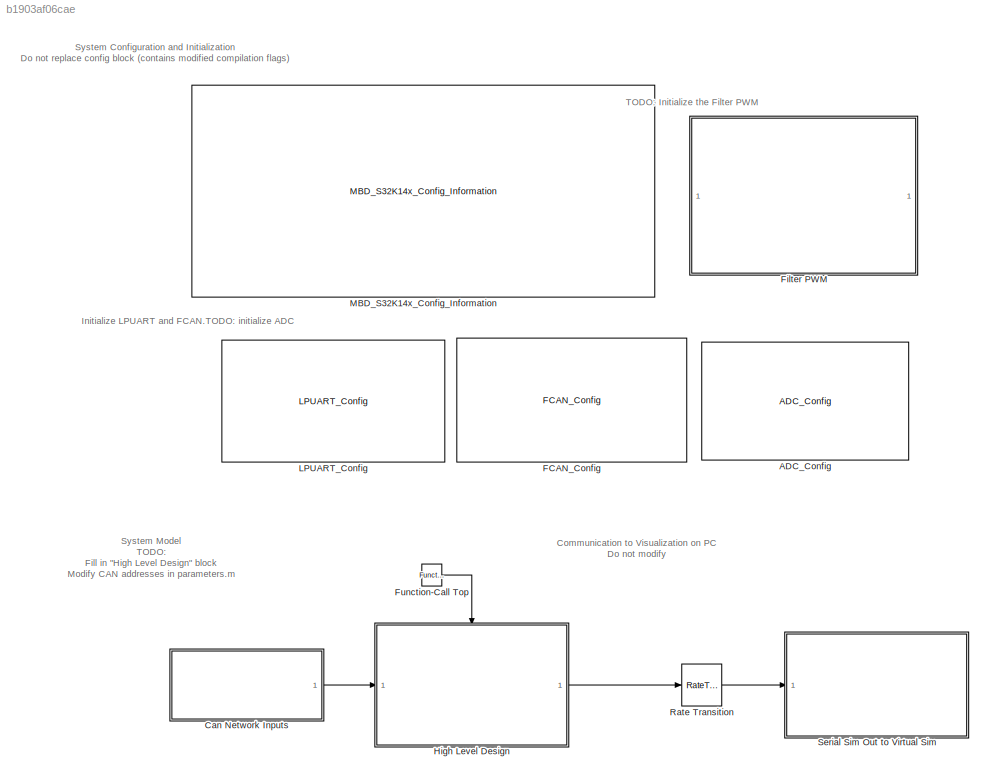
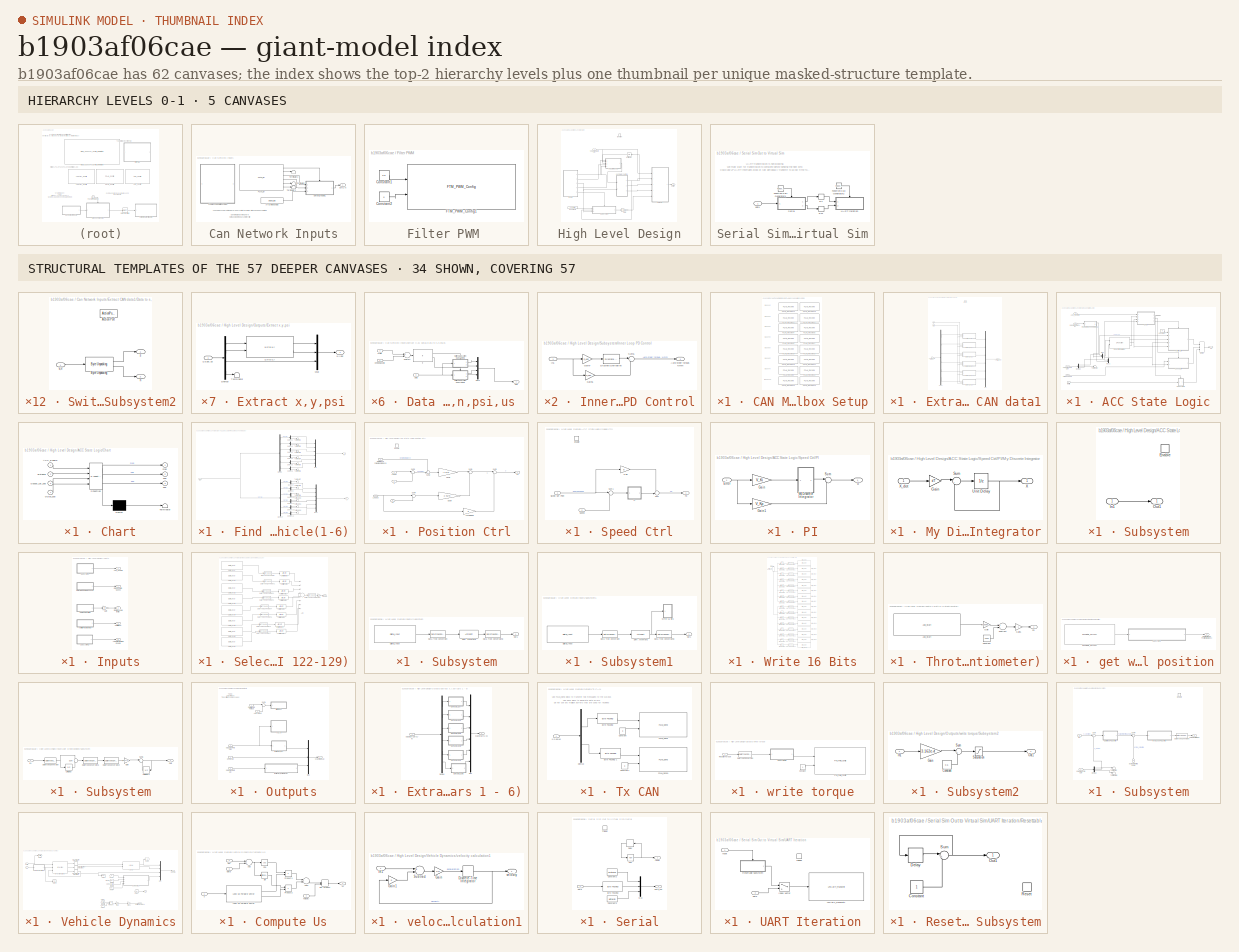
[diagram: thumbnail index - top-2 hierarchy levels (5 canvases) + 34 structural-template representatives of the remaining 57 canvases]
MODEL slx_b1903af06cae
KIND model
CONFIG AbsTol = auto
CONFIG EnableMultiTasking = on
CONFIG FixedStep = auto
CONFIG InitFcn = parameters\nmbd_s32k14_consistency_checks(bdroot(gcs));\nLinearVehicleGains
CONFIG MaxStep = auto
CONFIG MinStep = auto
CONFIG RelTol = 1e-3
CONFIG SampleTimeConstraint = Unconstrained
CONFIG Solver = FixedStepDiscrete
CONFIG SolverName = FixedStepDiscrete
CONFIG StartTime = 0.0
CONFIG StopTime = 10.0
BLOCK [Reference] ADC_Config  REF=mbd_s32k14_ec_toolbox/Motor Control Blocks/ADC Blocks/ADC_Config
  Ports = []
  SourceBlock = mbd_s32k14_ec_toolbox/Motor Control Blocks/ADC Blocks/ADC_Config
  SourceType = adc_s32k14_config_block
BLOCK [SubSystem] Can Network Inputs
  Ports = [0, 1]
  RequestExecContextInheritance = off
BLOCK [Constant] Can Network Inputs/Array of 6 base IDs
  Value = base_ids
BLOCK [SubSystem] Can Network Inputs/CAN Message Mailbox Setup
  Ports = []
  RequestExecContextInheritance = off
BLOCK [Reference] Can Network Inputs/CAN Message Mailbox Setup/FCAN_Receive  REF=mbd_s32k14_ec_toolbox/Communication Blocks/CAN Blocks/FCAN_Receive
  Ports = []
  SourceBlock = mbd_s32k14_ec_toolbox/Communication Blocks/CAN Blocks/FCAN_Receive
  SourceType = fcan_s32k14_receive
BLOCK [Reference] Can Network Inputs/CAN Message Mailbox Setup/FCAN_Receive1  REF=mbd_s32k14_ec_toolbox/Communication Blocks/CAN Blocks/FCAN_Receive
  Ports = []
  SourceBlock = mbd_s32k14_ec_toolbox/Communication Blocks/CAN Blocks/FCAN_Receive
  SourceType = fcan_s32k14_receive
BLOCK [Reference] Can Network Inputs/CAN Message Mailbox Setup/FCAN_Receive10  REF=mbd_s32k14_ec_toolbox/Communication Blocks/CAN Blocks/FCAN_Receive
  Ports = []
  SourceBlock = mbd_s32k14_ec_toolbox/Communication Blocks/CAN Blocks/FCAN_Receive
  SourceType = fcan_s32k14_receive
BLOCK [Reference] Can Network Inputs/CAN Message Mailbox Setup/FCAN_Receive11  REF=mbd_s32k14_ec_toolbox/Communication Blocks/CAN Blocks/FCAN_Receive
  Ports = []
  SourceBlock = mbd_s32k14_ec_toolbox/Communication Blocks/CAN Blocks/FCAN_Receive
  SourceType = fcan_s32k14_receive
BLOCK [Reference] Can Network Inputs/CAN Message Mailbox Setup/FCAN_Receive12  REF=mbd_s32k14_ec_toolbox/Communication Blocks/CAN Blocks/FCAN_Receive
  Ports = []
  SourceBlock = mbd_s32k14_ec_toolbox/Communication Blocks/CAN Blocks/FCAN_Receive
  SourceType = fcan_s32k14_receive
BLOCK [Reference] Can Network Inputs/CAN Message Mailbox Setup/FCAN_Receive13  REF=mbd_s32k14_ec_toolbox/Communication Blocks/CAN Blocks/FCAN_Receive
  Ports = []
  SourceBlock = mbd_s32k14_ec_toolbox/Communication Blocks/CAN Blocks/FCAN_Receive
  SourceType = fcan_s32k14_receive
BLOCK [Reference] Can Network Inputs/CAN Message Mailbox Setup/FCAN_Receive14  REF=mbd_s32k14_ec_toolbox/Communication Blocks/CAN Blocks/FCAN_Receive
  Ports = []
  SourceBlock = mbd_s32k14_ec_toolbox/Communication Blocks/CAN Blocks/FCAN_Receive
  SourceType = fcan_s32k14_receive
BLOCK [Reference] Can Network Inputs/CAN Message Mailbox Setup/FCAN_Receive15  REF=mbd_s32k14_ec_toolbox/Communication Blocks/CAN Blocks/FCAN_Receive
  Ports = []
  SourceBlock = mbd_s32k14_ec_toolbox/Communication Blocks/CAN Blocks/FCAN_Receive
  SourceType = fcan_s32k14_receive
BLOCK [Reference] Can Network Inputs/CAN Message Mailbox Setup/FCAN_Receive2  REF=mbd_s32k14_ec_toolbox/Communication Blocks/CAN Blocks/FCAN_Receive
  Ports = []
  SourceBlock = mbd_s32k14_ec_toolbox/Communication Blocks/CAN Blocks/FCAN_Receive
  SourceType = fcan_s32k14_receive
BLOCK [Reference] Can Network Inputs/CAN Message Mailbox Setup/FCAN_Receive3  REF=mbd_s32k14_ec_toolbox/Communication Blocks/CAN Blocks/FCAN_Receive
  Ports = []
  SourceBlock = mbd_s32k14_ec_toolbox/Communication Blocks/CAN Blocks/FCAN_Receive
  SourceType = fcan_s32k14_receive
BLOCK [Reference] Can Network Inputs/CAN Message Mailbox Setup/FCAN_Receive4  REF=mbd_s32k14_ec_toolbox/Communication Blocks/CAN Blocks/FCAN_Receive
  Ports = []
  SourceBlock = mbd_s32k14_ec_toolbox/Communication Blocks/CAN Blocks/FCAN_Receive
  SourceType = fcan_s32k14_receive
BLOCK [Reference] Can Network Inputs/CAN Message Mailbox Setup/FCAN_Receive5  REF=mbd_s32k14_ec_toolbox/Communication Blocks/CAN Blocks/FCAN_Receive
  Ports = []
  SourceBlock = mbd_s32k14_ec_toolbox/Communication Blocks/CAN Blocks/FCAN_Receive
  SourceType = fcan_s32k14_receive
BLOCK [Reference] Can Network Inputs/CAN Message Mailbox Setup/FCAN_Receive6  REF=mbd_s32k14_ec_toolbox/Communication Blocks/CAN Blocks/FCAN_Receive
  Ports = []
  SourceBlock = mbd_s32k14_ec_toolbox/Communication Blocks/CAN Blocks/FCAN_Receive
  SourceType = fcan_s32k14_receive
BLOCK [Reference] Can Network Inputs/CAN Message Mailbox Setup/FCAN_Receive7  REF=mbd_s32k14_ec_toolbox/Communication Blocks/CAN Blocks/FCAN_Receive
  Ports = []
  SourceBlock = mbd_s32k14_ec_toolbox/Communication Blocks/CAN Blocks/FCAN_Receive
  SourceType = fcan_s32k14_receive
BLOCK [Reference] Can Network Inputs/CAN Message Mailbox Setup/FCAN_Receive8  REF=mbd_s32k14_ec_toolbox/Communication Blocks/CAN Blocks/FCAN_Receive
  Ports = []
  SourceBlock = mbd_s32k14_ec_toolbox/Communication Blocks/CAN Blocks/FCAN_Receive
  SourceType = fcan_s32k14_receive
BLOCK [Reference] Can Network Inputs/CAN Message Mailbox Setup/FCAN_Receive9  REF=mbd_s32k14_ec_toolbox/Communication Blocks/CAN Blocks/FCAN_Receive
  Ports = []
  SourceBlock = mbd_s32k14_ec_toolbox/Communication Blocks/CAN Blocks/FCAN_Receive
  SourceType = fcan_s32k14_receive
BLOCK [Outport] Can Network Inputs/Cars 1-6
  IconDisplay = Port number
BLOCK [SubSystem] Can Network Inputs/Extract CAN data1
  Ports = [3, 1, 0, 1]
  RequestExecContextInheritance = off
BLOCK [Inport] Can Network Inputs/Extract CAN data1/CAN Base IDs (Cars 1-6)
  IconDisplay = Port number
  Port = 3
BLOCK [SubSystem] Can Network Inputs/Extract CAN data1/Data to s,n,psi,us 
  Ports = [3, 1]
  RequestExecContextInheritance = off
BLOCK [Inport] Can Network Inputs/Extract CAN data1/Data to s,n,psi,us /CAN ID
  IconDisplay = Port number
  Port = 2
BLOCK [Inport] Can Network Inputs/Extract CAN data1/Data to s,n,psi,us /Data
  IconDisplay = Port number
  Port = 3
BLOCK [If] Can Network Inputs/Extract CAN data1/Data to s,n,psi,us /If
  ElseIfExpressions = u1 == 6
  IfExpression = u1 == 5
  Ports = [1, 2]
  ShowElse = off
BLOCK [Mux] Can Network Inputs/Extract CAN data1/Data to s,n,psi,us /Mux3
  DisplayOption = bar
  Ports = [4, 1]
BLOCK [Outport] Can Network Inputs/Extract CAN data1/Data to s,n,psi,us /Out1
  IconDisplay = Port number
BLOCK [Sum] Can Network Inputs/Extract CAN data1/Data to s,n,psi,us /Subtract
  InputSameDT = off
  Inputs = +-
  OutDataTypeStr = Inherit: Inherit via internal rule
  Ports = [2, 1]
  SaturateOnIntegerOverflow = off
BLOCK [SubSystem] Can Network Inputs/Extract CAN data1/Data to s,n,psi,us /Switch Case Action Subsystem2
  Ports = [1, 2, 0, 0, 0, 0, 0, 1]
  RequestExecContextInheritance = off
  TreatAsAtomicUnit = on
BLOCK [ActionPort] Can Network Inputs/Extract CAN data1/Data to s,n,psi,us /Switch Case Action Subsystem2/Action Port
  ActionType = then
BLOCK [Reference] Can Network Inputs/Extract CAN data1/Data to s,n,psi,us /Switch Case Action Subsystem2/Byte Unpacking   REF=xpcutilitieslib/Byte Unpacking 
  Ports = [1, 2]
  SourceBlock = xpcutilitieslib/Byte Unpacking
  SourceProductBaseCode = XP
  SourceProductName = Simulink Real-Time
  SourceType = xpcbytepacking
BLOCK [Outport] Can Network Inputs/Extract CAN data1/Data to s,n,psi,us /Switch Case Action Subsystem2/n
  IconDisplay = Port number
  Port = 2
BLOCK [Outport] Can Network Inputs/Extract CAN data1/Data to s,n,psi,us /Switch Case Action Subsystem2/s
  IconDisplay = Port number
BLOCK [Inport] Can Network Inputs/Extract CAN data1/Data to s,n,psi,us /Switch Case Action Subsystem2/s,n
  IconDisplay = Port number
BLOCK [SubSystem] Can Network Inputs/Extract CAN data1/Data to s,n,psi,us /Switch Case Action Subsystem3
  Ports = [1, 2, 0, 0, 0, 0, 0, 1]
  RequestExecContextInheritance = off
  TreatAsAtomicUnit = on
BLOCK [ActionPort] Can Network Inputs/Extract CAN data1/Data to s,n,psi,us /Switch Case Action Subsystem3/Action Port
  ActionType = elseif
BLOCK [Reference] Can Network Inputs/Extract CAN data1/Data to s,n,psi,us /Switch Case Action Subsystem3/Byte Unpacking   REF=xpcutilitieslib/Byte Unpacking 
  Ports = [1, 2]
  SourceBlock = xpcutilitieslib/Byte Unpacking
  SourceProductBaseCode = XP
  SourceProductName = Simulink Real-Time
  SourceType = xpcbytepacking
BLOCK [Outport] Can Network Inputs/Extract CAN data1/Data to s,n,psi,us /Switch Case Action Subsystem3/psi
  IconDisplay = Port number
BLOCK [Inport] Can Network Inputs/Extract CAN data1/Data to s,n,psi,us /Switch Case Action Subsystem3/psi,us
  IconDisplay = Port number
BLOCK [Outport] Can Network Inputs/Extract CAN data1/Data to s,n,psi,us /Switch Case Action Subsystem3/us
  IconDisplay = Port number
  Port = 2
BLOCK [Inport] Can Network Inputs/Extract CAN data1/Data to s,n,psi,us /Vehicle Base ID
  IconDisplay = Port number
BLOCK [SubSystem] Can Network Inputs/Extract CAN data1/Data to s,n,psi,us 1
  Ports = [3, 1]
  RequestExecContextInheritance = off
BLOCK [Inport] Can Network Inputs/Extract CAN data1/Data to s,n,psi,us 1/CAN ID
  IconDisplay = Port number
  Port = 2
BLOCK [Inport] Can Network Inputs/Extract CAN data1/Data to s,n,psi,us 1/Data
  IconDisplay = Port number
  Port = 3
BLOCK [If] Can Network Inputs/Extract CAN data1/Data to s,n,psi,us 1/If
  ElseIfExpressions = u1 == 6
  IfExpression = u1 == 5
  Ports = [1, 2]
  ShowElse = off
BLOCK [Mux] Can Network Inputs/Extract CAN data1/Data to s,n,psi,us 1/Mux3
  DisplayOption = bar
  Ports = [4, 1]
BLOCK [Outport] Can Network Inputs/Extract CAN data1/Data to s,n,psi,us 1/Out1
  IconDisplay = Port number
BLOCK [Sum] Can Network Inputs/Extract CAN data1/Data to s,n,psi,us 1/Subtract
  InputSameDT = off
  Inputs = +-
  OutDataTypeStr = Inherit: Inherit via internal rule
  Ports = [2, 1]
  SaturateOnIntegerOverflow = off
BLOCK [SubSystem] Can Network Inputs/Extract CAN data1/Data to s,n,psi,us 1/Switch Case Action Subsystem2
  Ports = [1, 2, 0, 0, 0, 0, 0, 1]
  RequestExecContextInheritance = off
  TreatAsAtomicUnit = on
BLOCK [ActionPort] Can Network Inputs/Extract CAN data1/Data to s,n,psi,us 1/Switch Case Action Subsystem2/Action Port
  ActionType = then
BLOCK [Reference] Can Network Inputs/Extract CAN data1/Data to s,n,psi,us 1/Switch Case Action Subsystem2/Byte Unpacking   REF=xpcutilitieslib/Byte Unpacking 
  Ports = [1, 2]
  SourceBlock = xpcutilitieslib/Byte Unpacking
  SourceProductBaseCode = XP
  SourceProductName = Simulink Real-Time
  SourceType = xpcbytepacking
BLOCK [Outport] Can Network Inputs/Extract CAN data1/Data to s,n,psi,us 1/Switch Case Action Subsystem2/n
  IconDisplay = Port number
  Port = 2
BLOCK [Outport] Can Network Inputs/Extract CAN data1/Data to s,n,psi,us 1/Switch Case Action Subsystem2/s
  IconDisplay = Port number
BLOCK [Inport] Can Network Inputs/Extract CAN data1/Data to s,n,psi,us 1/Switch Case Action Subsystem2/s,n
  IconDisplay = Port number
BLOCK [SubSystem] Can Network Inputs/Extract CAN data1/Data to s,n,psi,us 1/Switch Case Action Subsystem3
  Ports = [1, 2, 0, 0, 0, 0, 0, 1]
  RequestExecContextInheritance = off
  TreatAsAtomicUnit = on
BLOCK [ActionPort] Can Network Inputs/Extract CAN data1/Data to s,n,psi,us 1/Switch Case Action Subsystem3/Action Port
  ActionType = elseif
BLOCK [Reference] Can Network Inputs/Extract CAN data1/Data to s,n,psi,us 1/Switch Case Action Subsystem3/Byte Unpacking   REF=xpcutilitieslib/Byte Unpacking 
  Ports = [1, 2]
  SourceBlock = xpcutilitieslib/Byte Unpacking
  SourceProductBaseCode = XP
  SourceProductName = Simulink Real-Time
  SourceType = xpcbytepacking
BLOCK [Outport] Can Network Inputs/Extract CAN data1/Data to s,n,psi,us 1/Switch Case Action Subsystem3/psi
  IconDisplay = Port number
BLOCK [Inport] Can Network Inputs/Extract CAN data1/Data to s,n,psi,us 1/Switch Case Action Subsystem3/psi,us
  IconDisplay = Port number
BLOCK [Outport] Can Network Inputs/Extract CAN data1/Data to s,n,psi,us 1/Switch Case Action Subsystem3/us
  IconDisplay = Port number
  Port = 2
BLOCK [Inport] Can Network Inputs/Extract CAN data1/Data to s,n,psi,us 1/Vehicle Base ID
  IconDisplay = Port number
BLOCK [SubSystem] Can Network Inputs/Extract CAN data1/Data to s,n,psi,us 2
  Ports = [3, 1]
  RequestExecContextInheritance = off
BLOCK [Inport] Can Network Inputs/Extract CAN data1/Data to s,n,psi,us 2/CAN ID
  IconDisplay = Port number
  Port = 2
BLOCK [Inport] Can Network Inputs/Extract CAN data1/Data to s,n,psi,us 2/Data
  IconDisplay = Port number
  Port = 3
BLOCK [If] Can Network Inputs/Extract CAN data1/Data to s,n,psi,us 2/If
  ElseIfExpressions = u1 == 6
  IfExpression = u1 == 5
  Ports = [1, 2]
  ShowElse = off
BLOCK [Mux] Can Network Inputs/Extract CAN data1/Data to s,n,psi,us 2/Mux3
  DisplayOption = bar
  Ports = [4, 1]
BLOCK [Outport] Can Network Inputs/Extract CAN data1/Data to s,n,psi,us 2/Out1
  IconDisplay = Port number
BLOCK [Sum] Can Network Inputs/Extract CAN data1/Data to s,n,psi,us 2/Subtract
  InputSameDT = off
  Inputs = +-
  OutDataTypeStr = Inherit: Inherit via internal rule
  Ports = [2, 1]
  SaturateOnIntegerOverflow = off
BLOCK [SubSystem] Can Network Inputs/Extract CAN data1/Data to s,n,psi,us 2/Switch Case Action Subsystem2
  Ports = [1, 2, 0, 0, 0, 0, 0, 1]
  RequestExecContextInheritance = off
  TreatAsAtomicUnit = on
BLOCK [ActionPort] Can Network Inputs/Extract CAN data1/Data to s,n,psi,us 2/Switch Case Action Subsystem2/Action Port
  ActionType = then
BLOCK [Reference] Can Network Inputs/Extract CAN data1/Data to s,n,psi,us 2/Switch Case Action Subsystem2/Byte Unpacking   REF=xpcutilitieslib/Byte Unpacking 
  Ports = [1, 2]
  SourceBlock = xpcutilitieslib/Byte Unpacking
  SourceProductBaseCode = XP
  SourceProductName = Simulink Real-Time
  SourceType = xpcbytepacking
BLOCK [Outport] Can Network Inputs/Extract CAN data1/Data to s,n,psi,us 2/Switch Case Action Subsystem2/n
  IconDisplay = Port number
  Port = 2
BLOCK [Outport] Can Network Inputs/Extract CAN data1/Data to s,n,psi,us 2/Switch Case Action Subsystem2/s
  IconDisplay = Port number
BLOCK [Inport] Can Network Inputs/Extract CAN data1/Data to s,n,psi,us 2/Switch Case Action Subsystem2/s,n
  IconDisplay = Port number
BLOCK [SubSystem] Can Network Inputs/Extract CAN data1/Data to s,n,psi,us 2/Switch Case Action Subsystem3
  Ports = [1, 2, 0, 0, 0, 0, 0, 1]
  RequestExecContextInheritance = off
  TreatAsAtomicUnit = on
BLOCK [ActionPort] Can Network Inputs/Extract CAN data1/Data to s,n,psi,us 2/Switch Case Action Subsystem3/Action Port
  ActionType = elseif
BLOCK [Reference] Can Network Inputs/Extract CAN data1/Data to s,n,psi,us 2/Switch Case Action Subsystem3/Byte Unpacking   REF=xpcutilitieslib/Byte Unpacking 
  Ports = [1, 2]
  SourceBlock = xpcutilitieslib/Byte Unpacking
  SourceProductBaseCode = XP
  SourceProductName = Simulink Real-Time
  SourceType = xpcbytepacking
BLOCK [Outport] Can Network Inputs/Extract CAN data1/Data to s,n,psi,us 2/Switch Case Action Subsystem3/psi
  IconDisplay = Port number
BLOCK [Inport] Can Network Inputs/Extract CAN data1/Data to s,n,psi,us 2/Switch Case Action Subsystem3/psi,us
  IconDisplay = Port number
BLOCK [Outport] Can Network Inputs/Extract CAN data1/Data to s,n,psi,us 2/Switch Case Action Subsystem3/us
  IconDisplay = Port number
  Port = 2
BLOCK [Inport] Can Network Inputs/Extract CAN data1/Data to s,n,psi,us 2/Vehicle Base ID
  IconDisplay = Port number
BLOCK [SubSystem] Can Network Inputs/Extract CAN data1/Data to s,n,psi,us 3
  Ports = [3, 1]
  RequestExecContextInheritance = off
BLOCK [Inport] Can Network Inputs/Extract CAN data1/Data to s,n,psi,us 3/CAN ID
  IconDisplay = Port number
  Port = 2
BLOCK [Inport] Can Network Inputs/Extract CAN data1/Data to s,n,psi,us 3/Data
  IconDisplay = Port number
  Port = 3
BLOCK [If] Can Network Inputs/Extract CAN data1/Data to s,n,psi,us 3/If
  ElseIfExpressions = u1 == 6
  IfExpression = u1 == 5
  Ports = [1, 2]
  ShowElse = off
BLOCK [Mux] Can Network Inputs/Extract CAN data1/Data to s,n,psi,us 3/Mux3
  DisplayOption = bar
  Ports = [4, 1]
BLOCK [Outport] Can Network Inputs/Extract CAN data1/Data to s,n,psi,us 3/Out1
  IconDisplay = Port number
BLOCK [Sum] Can Network Inputs/Extract CAN data1/Data to s,n,psi,us 3/Subtract
  InputSameDT = off
  Inputs = +-
  OutDataTypeStr = Inherit: Inherit via internal rule
  Ports = [2, 1]
  SaturateOnIntegerOverflow = off
BLOCK [SubSystem] Can Network Inputs/Extract CAN data1/Data to s,n,psi,us 3/Switch Case Action Subsystem2
  Ports = [1, 2, 0, 0, 0, 0, 0, 1]
  RequestExecContextInheritance = off
  TreatAsAtomicUnit = on
BLOCK [ActionPort] Can Network Inputs/Extract CAN data1/Data to s,n,psi,us 3/Switch Case Action Subsystem2/Action Port
  ActionType = then
BLOCK [Reference] Can Network Inputs/Extract CAN data1/Data to s,n,psi,us 3/Switch Case Action Subsystem2/Byte Unpacking   REF=xpcutilitieslib/Byte Unpacking 
  Ports = [1, 2]
  SourceBlock = xpcutilitieslib/Byte Unpacking
  SourceProductBaseCode = XP
  SourceProductName = Simulink Real-Time
  SourceType = xpcbytepacking
BLOCK [Outport] Can Network Inputs/Extract CAN data1/Data to s,n,psi,us 3/Switch Case Action Subsystem2/n
  IconDisplay = Port number
  Port = 2
BLOCK [Outport] Can Network Inputs/Extract CAN data1/Data to s,n,psi,us 3/Switch Case Action Subsystem2/s
  IconDisplay = Port number
BLOCK [Inport] Can Network Inputs/Extract CAN data1/Data to s,n,psi,us 3/Switch Case Action Subsystem2/s,n
  IconDisplay = Port number
BLOCK [SubSystem] Can Network Inputs/Extract CAN data1/Data to s,n,psi,us 3/Switch Case Action Subsystem3
  Ports = [1, 2, 0, 0, 0, 0, 0, 1]
  RequestExecContextInheritance = off
  TreatAsAtomicUnit = on
BLOCK [ActionPort] Can Network Inputs/Extract CAN data1/Data to s,n,psi,us 3/Switch Case Action Subsystem3/Action Port
  ActionType = elseif
BLOCK [Reference] Can Network Inputs/Extract CAN data1/Data to s,n,psi,us 3/Switch Case Action Subsystem3/Byte Unpacking   REF=xpcutilitieslib/Byte Unpacking 
  Ports = [1, 2]
  SourceBlock = xpcutilitieslib/Byte Unpacking
  SourceProductBaseCode = XP
  SourceProductName = Simulink Real-Time
  SourceType = xpcbytepacking
BLOCK [Outport] Can Network Inputs/Extract CAN data1/Data to s,n,psi,us 3/Switch Case Action Subsystem3/psi
  IconDisplay = Port number
BLOCK [Inport] Can Network Inputs/Extract CAN data1/Data to s,n,psi,us 3/Switch Case Action Subsystem3/psi,us
  IconDisplay = Port number
BLOCK [Outport] Can Network Inputs/Extract CAN data1/Data to s,n,psi,us 3/Switch Case Action Subsystem3/us
  IconDisplay = Port number
  Port = 2
BLOCK [Inport] Can Network Inputs/Extract CAN data1/Data to s,n,psi,us 3/Vehicle Base ID
  IconDisplay = Port number
BLOCK [SubSystem] Can Network Inputs/Extract CAN data1/Data to s,n,psi,us 4
  Ports = [3, 1]
  RequestExecContextInheritance = off
BLOCK [Inport] Can Network Inputs/Extract CAN data1/Data to s,n,psi,us 4/CAN ID
  IconDisplay = Port number
  Port = 2
BLOCK [Inport] Can Network Inputs/Extract CAN data1/Data to s,n,psi,us 4/Data
  IconDisplay = Port number
  Port = 3
BLOCK [If] Can Network Inputs/Extract CAN data1/Data to s,n,psi,us 4/If
  ElseIfExpressions = u1 == 6
  IfExpression = u1 == 5
  Ports = [1, 2]
  ShowElse = off
BLOCK [Mux] Can Network Inputs/Extract CAN data1/Data to s,n,psi,us 4/Mux3
  DisplayOption = bar
  Ports = [4, 1]
BLOCK [Outport] Can Network Inputs/Extract CAN data1/Data to s,n,psi,us 4/Out1
  IconDisplay = Port number
BLOCK [Sum] Can Network Inputs/Extract CAN data1/Data to s,n,psi,us 4/Subtract
  InputSameDT = off
  Inputs = +-
  OutDataTypeStr = Inherit: Inherit via internal rule
  Ports = [2, 1]
  SaturateOnIntegerOverflow = off
BLOCK [SubSystem] Can Network Inputs/Extract CAN data1/Data to s,n,psi,us 4/Switch Case Action Subsystem2
  Ports = [1, 2, 0, 0, 0, 0, 0, 1]
  RequestExecContextInheritance = off
  TreatAsAtomicUnit = on
BLOCK [ActionPort] Can Network Inputs/Extract CAN data1/Data to s,n,psi,us 4/Switch Case Action Subsystem2/Action Port
  ActionType = then
BLOCK [Reference] Can Network Inputs/Extract CAN data1/Data to s,n,psi,us 4/Switch Case Action Subsystem2/Byte Unpacking   REF=xpcutilitieslib/Byte Unpacking 
  Ports = [1, 2]
  SourceBlock = xpcutilitieslib/Byte Unpacking
  SourceProductBaseCode = XP
  SourceProductName = Simulink Real-Time
  SourceType = xpcbytepacking
BLOCK [Outport] Can Network Inputs/Extract CAN data1/Data to s,n,psi,us 4/Switch Case Action Subsystem2/n
  IconDisplay = Port number
  Port = 2
BLOCK [Outport] Can Network Inputs/Extract CAN data1/Data to s,n,psi,us 4/Switch Case Action Subsystem2/s
  IconDisplay = Port number
BLOCK [Inport] Can Network Inputs/Extract CAN data1/Data to s,n,psi,us 4/Switch Case Action Subsystem2/s,n
  IconDisplay = Port number
BLOCK [SubSystem] Can Network Inputs/Extract CAN data1/Data to s,n,psi,us 4/Switch Case Action Subsystem3
  Ports = [1, 2, 0, 0, 0, 0, 0, 1]
  RequestExecContextInheritance = off
  TreatAsAtomicUnit = on
BLOCK [ActionPort] Can Network Inputs/Extract CAN data1/Data to s,n,psi,us 4/Switch Case Action Subsystem3/Action Port
  ActionType = elseif
BLOCK [Reference] Can Network Inputs/Extract CAN data1/Data to s,n,psi,us 4/Switch Case Action Subsystem3/Byte Unpacking   REF=xpcutilitieslib/Byte Unpacking 
  Ports = [1, 2]
  SourceBlock = xpcutilitieslib/Byte Unpacking
  SourceProductBaseCode = XP
  SourceProductName = Simulink Real-Time
  SourceType = xpcbytepacking
BLOCK [Outport] Can Network Inputs/Extract CAN data1/Data to s,n,psi,us 4/Switch Case Action Subsystem3/psi
  IconDisplay = Port number
BLOCK [Inport] Can Network Inputs/Extract CAN data1/Data to s,n,psi,us 4/Switch Case Action Subsystem3/psi,us
  IconDisplay = Port number
BLOCK [Outport] Can Network Inputs/Extract CAN data1/Data to s,n,psi,us 4/Switch Case Action Subsystem3/us
  IconDisplay = Port number
  Port = 2
BLOCK [Inport] Can Network Inputs/Extract CAN data1/Data to s,n,psi,us 4/Vehicle Base ID
  IconDisplay = Port number
BLOCK [SubSystem] Can Network Inputs/Extract CAN data1/Data to s,n,psi,us 5
  Ports = [3, 1]
  RequestExecContextInheritance = off
BLOCK [Inport] Can Network Inputs/Extract CAN data1/Data to s,n,psi,us 5/CAN ID
  IconDisplay = Port number
  Port = 2
BLOCK [Inport] Can Network Inputs/Extract CAN data1/Data to s,n,psi,us 5/Data
  IconDisplay = Port number
  Port = 3
BLOCK [If] Can Network Inputs/Extract CAN data1/Data to s,n,psi,us 5/If
  ElseIfExpressions = u1 == 6
  IfExpression = u1 == 5
  Ports = [1, 2]
  ShowElse = off
BLOCK [Mux] Can Network Inputs/Extract CAN data1/Data to s,n,psi,us 5/Mux3
  DisplayOption = bar
  Ports = [4, 1]
BLOCK [Outport] Can Network Inputs/Extract CAN data1/Data to s,n,psi,us 5/Out1
  IconDisplay = Port number
BLOCK [Sum] Can Network Inputs/Extract CAN data1/Data to s,n,psi,us 5/Subtract
  InputSameDT = off
  Inputs = +-
  OutDataTypeStr = Inherit: Inherit via internal rule
  Ports = [2, 1]
  SaturateOnIntegerOverflow = off
BLOCK [SubSystem] Can Network Inputs/Extract CAN data1/Data to s,n,psi,us 5/Switch Case Action Subsystem2
  Ports = [1, 2, 0, 0, 0, 0, 0, 1]
  RequestExecContextInheritance = off
  TreatAsAtomicUnit = on
BLOCK [ActionPort] Can Network Inputs/Extract CAN data1/Data to s,n,psi,us 5/Switch Case Action Subsystem2/Action Port
  ActionType = then
BLOCK [Reference] Can Network Inputs/Extract CAN data1/Data to s,n,psi,us 5/Switch Case Action Subsystem2/Byte Unpacking   REF=xpcutilitieslib/Byte Unpacking 
  Ports = [1, 2]
  SourceBlock = xpcutilitieslib/Byte Unpacking
  SourceProductBaseCode = XP
  SourceProductName = Simulink Real-Time
  SourceType = xpcbytepacking
BLOCK [Outport] Can Network Inputs/Extract CAN data1/Data to s,n,psi,us 5/Switch Case Action Subsystem2/n
  IconDisplay = Port number
  Port = 2
BLOCK [Outport] Can Network Inputs/Extract CAN data1/Data to s,n,psi,us 5/Switch Case Action Subsystem2/s
  IconDisplay = Port number
BLOCK [Inport] Can Network Inputs/Extract CAN data1/Data to s,n,psi,us 5/Switch Case Action Subsystem2/s,n
  IconDisplay = Port number
BLOCK [SubSystem] Can Network Inputs/Extract CAN data1/Data to s,n,psi,us 5/Switch Case Action Subsystem3
  Ports = [1, 2, 0, 0, 0, 0, 0, 1]
  RequestExecContextInheritance = off
  TreatAsAtomicUnit = on
BLOCK [ActionPort] Can Network Inputs/Extract CAN data1/Data to s,n,psi,us 5/Switch Case Action Subsystem3/Action Port
  ActionType = elseif
BLOCK [Reference] Can Network Inputs/Extract CAN data1/Data to s,n,psi,us 5/Switch Case Action Subsystem3/Byte Unpacking   REF=xpcutilitieslib/Byte Unpacking 
  Ports = [1, 2]
  SourceBlock = xpcutilitieslib/Byte Unpacking
  SourceProductBaseCode = XP
  SourceProductName = Simulink Real-Time
  SourceType = xpcbytepacking
BLOCK [Outport] Can Network Inputs/Extract CAN data1/Data to s,n,psi,us 5/Switch Case Action Subsystem3/psi
  IconDisplay = Port number
BLOCK [Inport] Can Network Inputs/Extract CAN data1/Data to s,n,psi,us 5/Switch Case Action Subsystem3/psi,us
  IconDisplay = Port number
BLOCK [Outport] Can Network Inputs/Extract CAN data1/Data to s,n,psi,us 5/Switch Case Action Subsystem3/us
  IconDisplay = Port number
  Port = 2
BLOCK [Inport] Can Network Inputs/Extract CAN data1/Data to s,n,psi,us 5/Vehicle Base ID
  IconDisplay = Port number
BLOCK [Demux] Can Network Inputs/Extract CAN data1/Demux
  DisplayOption = bar
  Outputs = 6
  Ports = [1, 6]
BLOCK [Inport] Can Network Inputs/Extract CAN data1/ID
  IconDisplay = Port number
BLOCK [Mux] Can Network Inputs/Extract CAN data1/Mux
  DisplayOption = bar
  Inputs = 6
  Ports = [6, 1]
BLOCK [Inport] Can Network Inputs/Extract CAN data1/data
  IconDisplay = Port number
  Port = 2
BLOCK [TriggerPort] Can Network Inputs/Extract CAN data1/function
  Ports = []
  StatesWhenEnabling = held
  TriggerType = function-call
  VariantControl = Variant
BLOCK [Outport] Can Network Inputs/Extract CAN data1/s, n, psi, us (Cars 1-6)
  IconDisplay = Port number
BLOCK [Reference] Can Network Inputs/FCAN_Isr  REF=mbd_s32k14_ec_toolbox/Communication Blocks/CAN Blocks/FCAN_Isr
  Ports = [0, 6]
  SourceBlock = mbd_s32k14_ec_toolbox/Communication Blocks/CAN Blocks/FCAN_Isr
  SourceType = fcan_s32k14_isr
BLOCK [Terminator] Can Network Inputs/Terminator1
BLOCK [Terminator] Can Network Inputs/Terminator2
BLOCK [Terminator] Can Network Inputs/Terminator3
BLOCK [Reference] FCAN_Config  REF=mbd_s32k14_ec_toolbox/Communication Blocks/CAN Blocks/FCAN_Config
  Ports = []
  Priority = 2
  SourceBlock = mbd_s32k14_ec_toolbox/Communication Blocks/CAN Blocks/FCAN_Config
  SourceType = fcan_s32k14_config
BLOCK [SubSystem] Filter PWM 
  Ports = []
  RequestExecContextInheritance = off
BLOCK [Constant] Filter PWM /Constant1
  OutDataTypeStr = single
  Value = 0.5
BLOCK [Constant] Filter PWM /Constant2
  OutDataTypeStr = single
  Value = 0
BLOCK [Reference] Filter PWM /FTM_PWM_Config1  REF=mbd_s32k14_ec_toolbox/Motor Control Blocks/FTM Blocks/FTM_PWM_Config
  Ports = [2]
  Priority = 1
  SourceBlock = mbd_s32k14_ec_toolbox/Motor Control Blocks/FTM Blocks/FTM_PWM_Config
  SourceType = FTM_s32k14_pwm_config_block
BLOCK [Reference] Function-Call Top  REF=simulink/Ports &
Subsystems/Function-Call
Generator
  Ports = [0, 1]
  SourceBlock = simulink/Ports &\nSubsystems/Function-Call\nGenerator
  SourceProductBaseCode = SL
  SourceProductName = Simulink
  SourceType = Function-Call Generator
BLOCK [SubSystem] High Level Design
  Ports = [1, 1, 0, 1]
  RequestExecContextInheritance = off
  TreatAsAtomicUnit = on
BLOCK [SubSystem] High Level Design/ACC State Logic
  Ports = [5, 1]
  RequestExecContextInheritance = off
BLOCK [Inport] High Level Design/ACC State Logic/ACC_Enable
  IconDisplay = Port number
BLOCK [SubSystem] High Level Design/ACC State Logic/Chart
  ErrorFcn = Stateflow.Translate.translate
  PermitHierarchicalResolution = ExplicitOnly
  Ports = [4, 3]
  RequestExecContextInheritance = off
  SFBlockType = Chart
  TreatAsAtomicUnit = on
BLOCK [Demux] High Level Design/ACC State Logic/Chart/ Demux 
  Outputs = 1
  Ports = [1, 1]
BLOCK [S-Function] High Level Design/ACC State Logic/Chart/ SFunction 
  EnableBusSupport = on
  FunctionName = sf_sfun
  Parameters = H
  PortCounts = [4 4]
  Ports = [4, 4]
  SFcnIsStateOwnerBlock = off
  SFunctionDeploymentMode = off
  Tag = Stateflow S-Function Final_project 3
BLOCK [Terminator] High Level Design/ACC State Logic/Chart/ Terminator 
BLOCK [Inport] High Level Design/ACC State Logic/Chart/ACC_Enable
  IconDisplay = Port number
BLOCK [Inport] High Level Design/ACC State Logic/Chart/closest_car_spd
  IconDisplay = Port number
  Port = 3
BLOCK [Inport] High Level Design/ACC State Logic/Chart/cruise_spd
  IconDisplay = Port number
  Port = 4
BLOCK [Inport] High Level Design/ACC State Logic/Chart/distance
  IconDisplay = Port number
  Port = 2
BLOCK [Outport] High Level Design/ACC State Logic/Chart/man
  IconDisplay = Port number
BLOCK [Outport] High Level Design/ACC State Logic/Chart/pos
  IconDisplay = Port number
  Port = 3
BLOCK [Outport] High Level Design/ACC State Logic/Chart/spd
  IconDisplay = Port number
  Port = 2
BLOCK [Constant] High Level Design/ACC State Logic/Constant
  OutDataTypeStr = single
  Value = H
BLOCK [Demux] High Level Design/ACC State Logic/Demux
  DisplayOption = bar
  Outputs = [1 2 1]
  Ports = [1, 3]
BLOCK [Outport] High Level Design/ACC State Logic/Fd
  IconDisplay = Port number
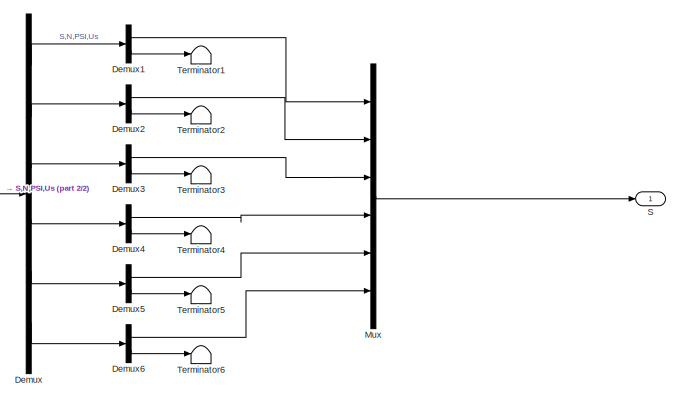
[diagram: High Level Design/ACC State Logic/Find S of each vehicle(1-6) - part 1/2, top right region]
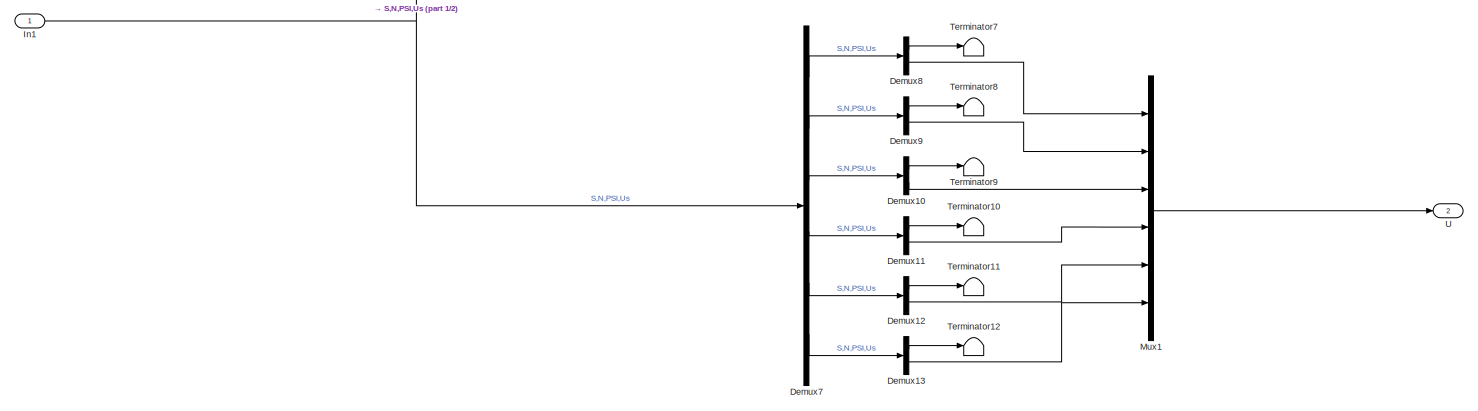
[diagram: High Level Design/ACC State Logic/Find S of each vehicle(1-6) - part 2/2, full width, bottom band]
BLOCK [SubSystem] High Level Design/ACC State Logic/Find S of each vehicle(1-6)
  Ports = [1, 2]
  RequestExecContextInheritance = off
BLOCK [Demux] High Level Design/ACC State Logic/Find S of each vehicle(1-6)/Demux
  DisplayOption = bar
  Outputs = 6
  Ports = [1, 6]
BLOCK [Demux] High Level Design/ACC State Logic/Find S of each vehicle(1-6)/Demux1
  DisplayOption = bar
  Outputs = [1 3]
  Ports = [1, 2]
BLOCK [Demux] High Level Design/ACC State Logic/Find S of each vehicle(1-6)/Demux10
  DisplayOption = bar
  Outputs = [3 1]
  Ports = [1, 2]
BLOCK [Demux] High Level Design/ACC State Logic/Find S of each vehicle(1-6)/Demux11
  DisplayOption = bar
  Outputs = [3 1]
  Ports = [1, 2]
BLOCK [Demux] High Level Design/ACC State Logic/Find S of each vehicle(1-6)/Demux12
  DisplayOption = bar
  Outputs = [3 1]
  Ports = [1, 2]
BLOCK [Demux] High Level Design/ACC State Logic/Find S of each vehicle(1-6)/Demux13
  DisplayOption = bar
  Outputs = [3 1]
  Ports = [1, 2]
BLOCK [Demux] High Level Design/ACC State Logic/Find S of each vehicle(1-6)/Demux2
  DisplayOption = bar
  Outputs = [1 3]
  Ports = [1, 2]
BLOCK [Demux] High Level Design/ACC State Logic/Find S of each vehicle(1-6)/Demux3
  DisplayOption = bar
  Outputs = [1 3]
  Ports = [1, 2]
BLOCK [Demux] High Level Design/ACC State Logic/Find S of each vehicle(1-6)/Demux4
  DisplayOption = bar
  Outputs = [1 3]
  Ports = [1, 2]
BLOCK [Demux] High Level Design/ACC State Logic/Find S of each vehicle(1-6)/Demux5
  DisplayOption = bar
  Outputs = [1 3]
  Ports = [1, 2]
BLOCK [Demux] High Level Design/ACC State Logic/Find S of each vehicle(1-6)/Demux6
  DisplayOption = bar
  Outputs = [1 3]
  Ports = [1, 2]
BLOCK [Demux] High Level Design/ACC State Logic/Find S of each vehicle(1-6)/Demux7
  DisplayOption = bar
  Outputs = 6
  Ports = [1, 6]
BLOCK [Demux] High Level Design/ACC State Logic/Find S of each vehicle(1-6)/Demux8
  DisplayOption = bar
  Outputs = [3 1]
  Ports = [1, 2]
BLOCK [Demux] High Level Design/ACC State Logic/Find S of each vehicle(1-6)/Demux9
  DisplayOption = bar
  Outputs = [3 1]
  Ports = [1, 2]
BLOCK [Inport] High Level Design/ACC State Logic/Find S of each vehicle(1-6)/In1
  IconDisplay = Port number
BLOCK [Mux] High Level Design/ACC State Logic/Find S of each vehicle(1-6)/Mux
  DisplayOption = bar
  Inputs = 6
  Ports = [6, 1]
BLOCK [Mux] High Level Design/ACC State Logic/Find S of each vehicle(1-6)/Mux1
  DisplayOption = bar
  Inputs = 6
  Ports = [6, 1]
BLOCK [Outport] High Level Design/ACC State Logic/Find S of each vehicle(1-6)/S
  IconDisplay = Port number
BLOCK [Terminator] High Level Design/ACC State Logic/Find S of each vehicle(1-6)/Terminator1
BLOCK [Terminator] High Level Design/ACC State Logic/Find S of each vehicle(1-6)/Terminator10
BLOCK [Terminator] High Level Design/ACC State Logic/Find S of each vehicle(1-6)/Terminator11
BLOCK [Terminator] High Level Design/ACC State Logic/Find S of each vehicle(1-6)/Terminator12
BLOCK [Terminator] High Level Design/ACC State Logic/Find S of each vehicle(1-6)/Terminator2
BLOCK [Terminator] High Level Design/ACC State Logic/Find S of each vehicle(1-6)/Terminator3
BLOCK [Terminator] High Level Design/ACC State Logic/Find S of each vehicle(1-6)/Terminator4
BLOCK [Terminator] High Level Design/ACC State Logic/Find S of each vehicle(1-6)/Terminator5
BLOCK [Terminator] High Level Design/ACC State Logic/Find S of each vehicle(1-6)/Terminator6
BLOCK [Terminator] High Level Design/ACC State Logic/Find S of each vehicle(1-6)/Terminator7
BLOCK [Terminator] High Level Design/ACC State Logic/Find S of each vehicle(1-6)/Terminator8
BLOCK [Terminator] High Level Design/ACC State Logic/Find S of each vehicle(1-6)/Terminator9
BLOCK [Outport] High Level Design/ACC State Logic/Find S of each vehicle(1-6)/U
  IconDisplay = Port number
  Port = 2
BLOCK [Merge] High Level Design/ACC State Logic/Merge
  Inputs = 3
  Ports = [3, 1]
BLOCK [Mux] High Level Design/ACC State Logic/Mux
  DisplayOption = bar
  Inputs = 2
  Ports = [2, 1]
BLOCK [Mux] High Level Design/ACC State Logic/Mux1
  DisplayOption = bar
  Inputs = 2
  Ports = [2, 1]
BLOCK [SubSystem] High Level Design/ACC State Logic/Position Ctrl
  Ports = [5, 1, 1]
  RequestExecContextInheritance = off
  TreatAsAtomicUnit = on
BLOCK [Gain] High Level Design/ACC State Logic/Position Ctrl/D-gain
  Gain = 2.45*m
BLOCK [EnablePort] High Level Design/ACC State Logic/Position Ctrl/Enable
  Ports = []
BLOCK [Outport] High Level Design/ACC State Logic/Position Ctrl/Fd
  IconDisplay = Port number
BLOCK [Gain] High Level Design/ACC State Logic/Position Ctrl/Feed-forward
  Gain = b
BLOCK [Inport] High Level Design/ACC State Logic/Position Ctrl/Lead s
  IconDisplay = Port number
  Port = 3
BLOCK [Inport] High Level Design/ACC State Logic/Position Ctrl/Lead us
  IconDisplay = Port number
  Port = 5
BLOCK [Gain] High Level Design/ACC State Logic/Position Ctrl/P-gain
  Gain = -1.5*m
BLOCK [Inport] High Level Design/ACC State Logic/Position Ctrl/Reference Following Distance
  IconDisplay = Port number
BLOCK [Sum] High Level Design/ACC State Logic/Position Ctrl/Sum1
  IconShape = round
  InputSameDT = off
  Inputs = |++
  OutDataTypeStr = Inherit: Inherit via internal rule
  Ports = [2, 1]
BLOCK [Sum] High Level Design/ACC State Logic/Position Ctrl/Sum2
  IconShape = round
  InputSameDT = off
  Inputs = +-|
  OutDataTypeStr = Inherit: Inherit via internal rule
  Ports = [2, 1]
BLOCK [Sum] High Level Design/ACC State Logic/Position Ctrl/Sum3
  IconShape = round
  InputSameDT = off
  Inputs = |+-
  OutDataTypeStr = Inherit: Inherit via internal rule
  Ports = [2, 1]
BLOCK [Sum] High Level Design/ACC State Logic/Position Ctrl/Sum4
  IconShape = round
  InputSameDT = off
  Inputs = |+-
  OutDataTypeStr = Inherit: Inherit via internal rule
  Ports = [2, 1]
BLOCK [Sum] High Level Design/ACC State Logic/Position Ctrl/Sum5
  IconShape = round
  InputSameDT = off
  Inputs = |++
  OutDataTypeStr = single
  Ports = [2, 1]
BLOCK [Inport] High Level Design/ACC State Logic/Position Ctrl/s
  IconDisplay = Port number
  Port = 2
BLOCK [Inport] High Level Design/ACC State Logic/Position Ctrl/us
  IconDisplay = Port number
  Port = 4
BLOCK [S-Function] High Level Design/ACC State Logic/S-Function Builder
  CopyFcn = set_param(gcbh,'LinkStatus','none')
  EnableBusSupport = off
  FunctionName = Lead_car_find
  InitFcn = try, set_param(gcb,'FunctionName','Lead_car_find'), end
  OpenFcn = sfunctionwizard(gcbh)
  Ports = [2, 3]
  PreSaveFcn = try, set_param(gcb,'FunctionName','Lead_car_find'), end
  SFcnIsStateOwnerBlock = off
  SFunctionDeploymentMode = off
  SFunctionModules = Lead_car_find_wrapper
BLOCK [SubSystem] High Level Design/ACC State Logic/Speed Ctrl
  Ports = [2, 1, 1]
  RequestExecContextInheritance = off
  TreatAsAtomicUnit = on
BLOCK [EnablePort] High Level Design/ACC State Logic/Speed Ctrl/Enable
  Ports = []
BLOCK [Outport] High Level Design/ACC State Logic/Speed Ctrl/Fd
  IconDisplay = Port number
BLOCK [Gain] High Level Design/ACC State Logic/Speed Ctrl/Gain
  Gain = b
BLOCK [SubSystem] High Level Design/ACC State Logic/Speed Ctrl/PI
  Ports = [1, 1]
  RequestExecContextInheritance = off
BLOCK [Inport] High Level Design/ACC State Logic/Speed Ctrl/PI/Error
  IconDisplay = Port number
BLOCK [Gain] High Level Design/ACC State Logic/Speed Ctrl/PI/Gain
  Gain = V_Ki
BLOCK [Gain] High Level Design/ACC State Logic/Speed Ctrl/PI/Gain1
  Gain = V_Kp
BLOCK [SubSystem] High Level Design/ACC State Logic/Speed Ctrl/PI/My Discrete Integrator
  Ports = [1, 1]
  RequestExecContextInheritance = off
BLOCK [Gain] High Level Design/ACC State Logic/Speed Ctrl/PI/My Discrete Integrator/Gain
  Gain = dT
BLOCK [Sum] High Level Design/ACC State Logic/Speed Ctrl/PI/My Discrete Integrator/Sum
  IconShape = round
  Inputs = |++
  Ports = [2, 1]
BLOCK [UnitDelay] High Level Design/ACC State Logic/Speed Ctrl/PI/My Discrete Integrator/Unit Delay
  SampleTime = -1
BLOCK [Outport] High Level Design/ACC State Logic/Speed Ctrl/PI/My Discrete Integrator/X
  IconDisplay = Port number
BLOCK [Inport] High Level Design/ACC State Logic/Speed Ctrl/PI/My Discrete Integrator/X_dot
  IconDisplay = Port number
BLOCK [Sum] High Level Design/ACC State Logic/Speed Ctrl/PI/Sum
  IconShape = round
  InputSameDT = off
  Inputs = |++
  OutDataTypeStr = Inherit: Inherit via internal rule
  Ports = [2, 1]
BLOCK [Outport] High Level Design/ACC State Logic/Speed Ctrl/PI/U
  IconDisplay = Port number
BLOCK [Inport] High Level Design/ACC State Logic/Speed Ctrl/Speed
  IconDisplay = Port number
  Port = 2
BLOCK [Inport] High Level Design/ACC State Logic/Speed Ctrl/Speed Set Point
  IconDisplay = Port number
BLOCK [Sum] High Level Design/ACC State Logic/Speed Ctrl/Sum
  IconShape = round
  InputSameDT = off
  Inputs = ++|
  OutDataTypeStr = single
  Ports = [2, 1]
BLOCK [Sum] High Level Design/ACC State Logic/Speed Ctrl/Sum1
  IconShape = round
  InputSameDT = off
  Inputs = |+-
  OutDataTypeStr = Inherit: Inherit via internal rule
  Ports = [2, 1]
BLOCK [SubSystem] High Level Design/ACC State Logic/Subsystem
  Ports = [1, 1, 1]
  RequestExecContextInheritance = off
BLOCK [EnablePort] High Level Design/ACC State Logic/Subsystem/Enable
  Ports = []
BLOCK [Inport] High Level Design/ACC State Logic/Subsystem/In1
  IconDisplay = Port number
BLOCK [Outport] High Level Design/ACC State Logic/Subsystem/Out1
  IconDisplay = Port number
BLOCK [Terminator] High Level Design/ACC State Logic/Terminator
BLOCK [Inport] High Level Design/ACC State Logic/cruise speed
  IconDisplay = Port number
  Port = 4
BLOCK [Inport] High Level Design/ACC State Logic/s,n,psi,us (Cars 1 - 6)
  IconDisplay = Port number
  Port = 2
BLOCK [Inport] High Level Design/ACC State Logic/s,n,psi,us (This Car)
  IconDisplay = Port number
  Port = 3
BLOCK [Inport] High Level Design/ACC State Logic/throttle
  IconDisplay = Port number
  Port = 5
BLOCK [Constant] High Level Design/Constant1
  OutDataTypeStr = single
  Value = n_desired
BLOCK [Gain] High Level Design/Gain
  Gain = 0.05
  OutDataTypeStr = Inherit: Inherit via internal rule
  ParamDataTypeStr = Inherit: Inherit via internal rule
  SaturateOnIntegerOverflow = off
BLOCK [SubSystem] High Level Design/Inputs
  Ports = [0, 5]
  RequestExecContextInheritance = off
BLOCK [Outport] High Level Design/Inputs/ACC_enable
  IconDisplay = Port number
BLOCK [Outport] High Level Design/Inputs/Automatic Steering Enable
  IconDisplay = Port number
  Port = 5
BLOCK [Outport] High Level Design/Inputs/Cruise Control Speed
  IconDisplay = Port number
  Port = 2
BLOCK [Gain] High Level Design/Inputs/Gain
  Gain = -R
  OutDataTypeStr = single
  ParamDataTypeStr = Inherit: Inherit via internal rule
  SaturateOnIntegerOverflow = off
BLOCK [SubSystem] High Level Design/Inputs/Select Speed (GPI 122-129)
  Ports = [0, 1]
  RequestExecContextInheritance = off
BLOCK [Sum] High Level Design/Inputs/Select Speed (GPI 122-129)/Add
  InputSameDT = off
  Inputs = ++++++++
  OutDataTypeStr = Inherit: Inherit via internal rule
  Ports = [8, 1]
  SaturateOnIntegerOverflow = off
BLOCK [DataTypeConversion] High Level Design/Inputs/Select Speed (GPI 122-129)/Data Type Conversion
  OutDataTypeStr = uint8
  RndMeth = Floor
  SaturateOnIntegerOverflow = off
BLOCK [DataTypeConversion] High Level Design/Inputs/Select Speed (GPI 122-129)/Data Type Conversion1
  OutDataTypeStr = uint8
  RndMeth = Floor
  SaturateOnIntegerOverflow = off
BLOCK [DataTypeConversion] High Level Design/Inputs/Select Speed (GPI 122-129)/Data Type Conversion2
  OutDataTypeStr = uint8
  RndMeth = Floor
  SaturateOnIntegerOverflow = off
BLOCK [DataTypeConversion] High Level Design/Inputs/Select Speed (GPI 122-129)/Data Type Conversion3
  OutDataTypeStr = uint8
  RndMeth = Floor
  SaturateOnIntegerOverflow = off
BLOCK [DataTypeConversion] High Level Design/Inputs/Select Speed (GPI 122-129)/Data Type Conversion4
  OutDataTypeStr = uint8
  RndMeth = Floor
  SaturateOnIntegerOverflow = off
BLOCK [DataTypeConversion] High Level Design/Inputs/Select Speed (GPI 122-129)/Data Type Conversion5
  OutDataTypeStr = uint8
  RndMeth = Floor
  SaturateOnIntegerOverflow = off
BLOCK [DataTypeConversion] High Level Design/Inputs/Select Speed (GPI 122-129)/Data Type Conversion6
  OutDataTypeStr = uint8
  RndMeth = Floor
  SaturateOnIntegerOverflow = off
BLOCK [DataTypeConversion] High Level Design/Inputs/Select Speed (GPI 122-129)/Data Type Conversion7
  OutDataTypeStr = uint8
  RndMeth = Floor
  SaturateOnIntegerOverflow = off
BLOCK [DataTypeConversion] High Level Design/Inputs/Select Speed (GPI 122-129)/Data Type Conversion8
  OutDataTypeStr = single
  RndMeth = Floor
  SaturateOnIntegerOverflow = off
BLOCK [Reference] High Level Design/Inputs/Select Speed (GPI 122-129)/Digital_Input  REF=mbd_s32k14_ec_toolbox/GPIO Blocks/Digital_Input
  Ports = [0, 1]
  SourceBlock = mbd_s32k14_ec_toolbox/GPIO Blocks/Digital_Input
  SourceType = gpio_s32k14_input
BLOCK [Reference] High Level Design/Inputs/Select Speed (GPI 122-129)/Digital_Input1  REF=mbd_s32k14_ec_toolbox/GPIO Blocks/Digital_Input
  Ports = [0, 1]
  SourceBlock = mbd_s32k14_ec_toolbox/GPIO Blocks/Digital_Input
  SourceType = gpio_s32k14_input
BLOCK [Reference] High Level Design/Inputs/Select Speed (GPI 122-129)/Digital_Input2  REF=mbd_s32k14_ec_toolbox/GPIO Blocks/Digital_Input
  Ports = [0, 1]
  SourceBlock = mbd_s32k14_ec_toolbox/GPIO Blocks/Digital_Input
  SourceType = gpio_s32k14_input
BLOCK [Reference] High Level Design/Inputs/Select Speed (GPI 122-129)/Digital_Input3  REF=mbd_s32k14_ec_toolbox/GPIO Blocks/Digital_Input
  Ports = [0, 1]
  SourceBlock = mbd_s32k14_ec_toolbox/GPIO Blocks/Digital_Input
  SourceType = gpio_s32k14_input
BLOCK [Reference] High Level Design/Inputs/Select Speed (GPI 122-129)/Digital_Input4  REF=mbd_s32k14_ec_toolbox/GPIO Blocks/Digital_Input
  Ports = [0, 1]
  SourceBlock = mbd_s32k14_ec_toolbox/GPIO Blocks/Digital_Input
  SourceType = gpio_s32k14_input
BLOCK [Reference] High Level Design/Inputs/Select Speed (GPI 122-129)/Digital_Input5  REF=mbd_s32k14_ec_toolbox/GPIO Blocks/Digital_Input
  Ports = [0, 1]
  SourceBlock = mbd_s32k14_ec_toolbox/GPIO Blocks/Digital_Input
  SourceType = gpio_s32k14_input
BLOCK [Reference] High Level Design/Inputs/Select Speed (GPI 122-129)/Digital_Input6  REF=mbd_s32k14_ec_toolbox/GPIO Blocks/Digital_Input
  Ports = [0, 1]
  SourceBlock = mbd_s32k14_ec_toolbox/GPIO Blocks/Digital_Input
  SourceType = gpio_s32k14_input
BLOCK [Reference] High Level Design/Inputs/Select Speed (GPI 122-129)/Digital_Input7  REF=mbd_s32k14_ec_toolbox/GPIO Blocks/Digital_Input
  Ports = [0, 1]
  SourceBlock = mbd_s32k14_ec_toolbox/GPIO Blocks/Digital_Input
  SourceType = gpio_s32k14_input
BLOCK [Gain] High Level Design/Inputs/Select Speed (GPI 122-129)/Gain
  Gain = .25
  OutDataTypeStr = Inherit: Inherit via internal rule
  ParamDataTypeStr = Inherit: Inherit via internal rule
  SaturateOnIntegerOverflow = off
BLOCK [ArithShift] High Level Design/Inputs/Select Speed (GPI 122-129)/Shift Arithmetic
  InputPortMap = u0
  Ports = [1, 1]
BLOCK [ArithShift] High Level Design/Inputs/Select Speed (GPI 122-129)/Shift Arithmetic1
  BitShiftDirection = Left
  BitShiftNumber = 1
  InputPortMap = u0
  Ports = [1, 1]
BLOCK [ArithShift] High Level Design/Inputs/Select Speed (GPI 122-129)/Shift Arithmetic2
  BitShiftDirection = Left
  BitShiftNumber = 2
  InputPortMap = u0
  Ports = [1, 1]
BLOCK [ArithShift] High Level Design/Inputs/Select Speed (GPI 122-129)/Shift Arithmetic3
  BitShiftDirection = Left
  BitShiftNumber = 3
  InputPortMap = u0
  Ports = [1, 1]
BLOCK [ArithShift] High Level Design/Inputs/Select Speed (GPI 122-129)/Shift Arithmetic4
  BitShiftDirection = Left
  BitShiftNumber = 4
  InputPortMap = u0
  Ports = [1, 1]
BLOCK [ArithShift] High Level Design/Inputs/Select Speed (GPI 122-129)/Shift Arithmetic5
  BitShiftDirection = Left
  BitShiftNumber = 5
  InputPortMap = u0
  Ports = [1, 1]
BLOCK [ArithShift] High Level Design/Inputs/Select Speed (GPI 122-129)/Shift Arithmetic6
  BitShiftDirection = Left
  BitShiftNumber = 6
  InputPortMap = u0
  Ports = [1, 1]
BLOCK [ArithShift] High Level Design/Inputs/Select Speed (GPI 122-129)/Shift Arithmetic7
  BitShiftDirection = Left
  BitShiftNumber = 7
  InputPortMap = u0
  Ports = [1, 1]
BLOCK [Outport] High Level Design/Inputs/Select Speed (GPI 122-129)/Speed
  IconDisplay = Port number
BLOCK [Outport] High Level Design/Inputs/Steering Angle (delta)
  IconDisplay = Port number
  Port = 3
BLOCK [SubSystem] High Level Design/Inputs/Subsystem
  Ports = [0, 1]
  RequestExecContextInheritance = off
BLOCK [DataTypeConversion] High Level Design/Inputs/Subsystem/Data Type Conversion
  OutDataTypeStr = uint8
  RndMeth = Floor
  SaturateOnIntegerOverflow = off
BLOCK [DataTypeConversion] High Level Design/Inputs/Subsystem/Data Type Conversion8
  OutDataTypeStr = boolean
  RndMeth = Floor
  SaturateOnIntegerOverflow = off
BLOCK [Reference] High Level Design/Inputs/Subsystem/Digital_Input  REF=mbd_s32k14_ec_toolbox/GPIO Blocks/Digital_Input
  Ports = [0, 1]
  SourceBlock = mbd_s32k14_ec_toolbox/GPIO Blocks/Digital_Input
  SourceType = gpio_s32k14_input
BLOCK [Outport] High Level Design/Inputs/Subsystem/Out1
  IconDisplay = Port number
BLOCK [ArithShift] High Level Design/Inputs/Subsystem/Shift Arithmetic
  BitShiftDirection = Right
  InputPortMap = u0
  Ports = [1, 1]
BLOCK [SubSystem] High Level Design/Inputs/Subsystem1
  Ports = [0, 1]
  RequestExecContextInheritance = off
BLOCK [DataTypeConversion] High Level Design/Inputs/Subsystem1/Data Type Conversion
  OutDataTypeStr = uint8
  RndMeth = Floor
  SaturateOnIntegerOverflow = off
BLOCK [DataTypeConversion] High Level Design/Inputs/Subsystem1/Data Type Conversion8
  OutDataTypeStr = boolean
  RndMeth = Floor
  SaturateOnIntegerOverflow = off
BLOCK [Reference] High Level Design/Inputs/Subsystem1/Digital_Input  REF=mbd_s32k14_ec_toolbox/GPIO Blocks/Digital_Input
  Ports = [0, 1]
  SourceBlock = mbd_s32k14_ec_toolbox/GPIO Blocks/Digital_Input
  SourceType = gpio_s32k14_input
BLOCK [Outport] High Level Design/Inputs/Subsystem1/Out1
  IconDisplay = Port number
BLOCK [ArithShift] High Level Design/Inputs/Subsystem1/Shift Arithmetic
  BitShiftDirection = Right
  InputPortMap = u0
  Ports = [1, 1]
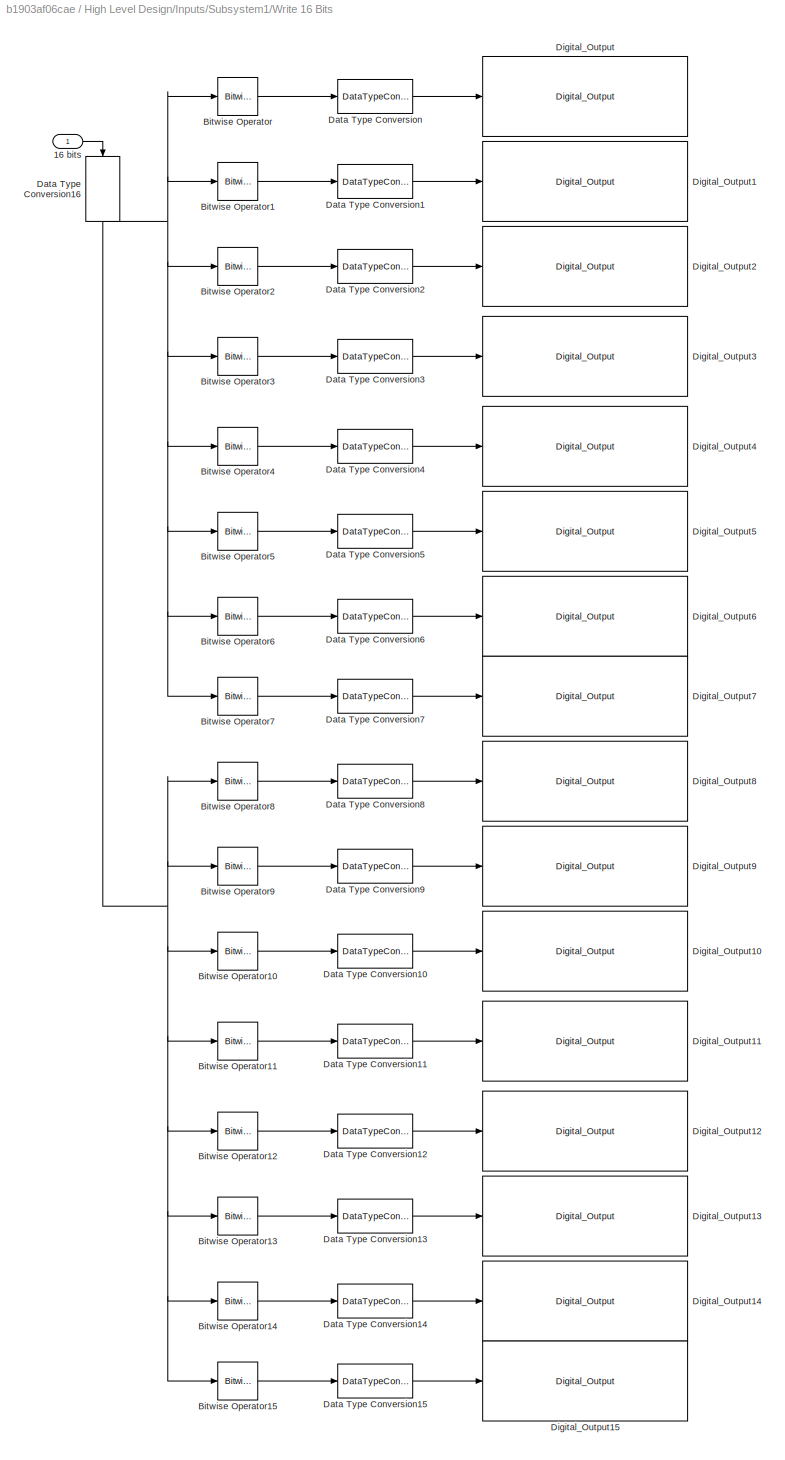
BLOCK [SubSystem] High Level Design/Inputs/Subsystem1/Write 16 Bits
  Ports = [1]
  RequestExecContextInheritance = off
BLOCK [Inport] High Level Design/Inputs/Subsystem1/Write 16 Bits/16 bits
  IconDisplay = Port number
BLOCK [Reference] High Level Design/Inputs/Subsystem1/Write 16 Bits/Bitwise Operator  REF=simulink/Logic and Bit
Operations/Bitwise
Operator
  Ports = [1, 1]
  SourceBlock = simulink/Logic and Bit\nOperations/Bitwise\nOperator
  SourceProductBaseCode = SL
  SourceProductName = Simulink
  SourceType = Bitwise Operator
BLOCK [Reference] High Level Design/Inputs/Subsystem1/Write 16 Bits/Bitwise Operator1  REF=simulink/Logic and Bit
Operations/Bitwise
Operator
  Ports = [1, 1]
  SourceBlock = simulink/Logic and Bit\nOperations/Bitwise\nOperator
  SourceProductBaseCode = SL
  SourceProductName = Simulink
  SourceType = Bitwise Operator
BLOCK [Reference] High Level Design/Inputs/Subsystem1/Write 16 Bits/Bitwise Operator10  REF=simulink/Logic and Bit
Operations/Bitwise
Operator
  Ports = [1, 1]
  SourceBlock = simulink/Logic and Bit\nOperations/Bitwise\nOperator
  SourceProductBaseCode = SL
  SourceProductName = Simulink
  SourceType = Bitwise Operator
BLOCK [Reference] High Level Design/Inputs/Subsystem1/Write 16 Bits/Bitwise Operator11  REF=simulink/Logic and Bit
Operations/Bitwise
Operator
  Ports = [1, 1]
  SourceBlock = simulink/Logic and Bit\nOperations/Bitwise\nOperator
  SourceProductBaseCode = SL
  SourceProductName = Simulink
  SourceType = Bitwise Operator
BLOCK [Reference] High Level Design/Inputs/Subsystem1/Write 16 Bits/Bitwise Operator12  REF=simulink/Logic and Bit
Operations/Bitwise
Operator
  Ports = [1, 1]
  SourceBlock = simulink/Logic and Bit\nOperations/Bitwise\nOperator
  SourceProductBaseCode = SL
  SourceProductName = Simulink
  SourceType = Bitwise Operator
BLOCK [Reference] High Level Design/Inputs/Subsystem1/Write 16 Bits/Bitwise Operator13  REF=simulink/Logic and Bit
Operations/Bitwise
Operator
  Ports = [1, 1]
  SourceBlock = simulink/Logic and Bit\nOperations/Bitwise\nOperator
  SourceProductBaseCode = SL
  SourceProductName = Simulink
  SourceType = Bitwise Operator
BLOCK [Reference] High Level Design/Inputs/Subsystem1/Write 16 Bits/Bitwise Operator14  REF=simulink/Logic and Bit
Operations/Bitwise
Operator
  Ports = [1, 1]
  SourceBlock = simulink/Logic and Bit\nOperations/Bitwise\nOperator
  SourceProductBaseCode = SL
  SourceProductName = Simulink
  SourceType = Bitwise Operator
BLOCK [Reference] High Level Design/Inputs/Subsystem1/Write 16 Bits/Bitwise Operator15  REF=simulink/Logic and Bit
Operations/Bitwise
Operator
  Ports = [1, 1]
  SourceBlock = simulink/Logic and Bit\nOperations/Bitwise\nOperator
  SourceProductBaseCode = SL
  SourceProductName = Simulink
  SourceType = Bitwise Operator
BLOCK [Reference] High Level Design/Inputs/Subsystem1/Write 16 Bits/Bitwise Operator2  REF=simulink/Logic and Bit
Operations/Bitwise
Operator
  Ports = [1, 1]
  SourceBlock = simulink/Logic and Bit\nOperations/Bitwise\nOperator
  SourceProductBaseCode = SL
  SourceProductName = Simulink
  SourceType = Bitwise Operator
BLOCK [Reference] High Level Design/Inputs/Subsystem1/Write 16 Bits/Bitwise Operator3  REF=simulink/Logic and Bit
Operations/Bitwise
Operator
  Ports = [1, 1]
  SourceBlock = simulink/Logic and Bit\nOperations/Bitwise\nOperator
  SourceProductBaseCode = SL
  SourceProductName = Simulink
  SourceType = Bitwise Operator
BLOCK [Reference] High Level Design/Inputs/Subsystem1/Write 16 Bits/Bitwise Operator4  REF=simulink/Logic and Bit
Operations/Bitwise
Operator
  Ports = [1, 1]
  SourceBlock = simulink/Logic and Bit\nOperations/Bitwise\nOperator
  SourceProductBaseCode = SL
  SourceProductName = Simulink
  SourceType = Bitwise Operator
BLOCK [Reference] High Level Design/Inputs/Subsystem1/Write 16 Bits/Bitwise Operator5  REF=simulink/Logic and Bit
Operations/Bitwise
Operator
  Ports = [1, 1]
  SourceBlock = simulink/Logic and Bit\nOperations/Bitwise\nOperator
  SourceProductBaseCode = SL
  SourceProductName = Simulink
  SourceType = Bitwise Operator
BLOCK [Reference] High Level Design/Inputs/Subsystem1/Write 16 Bits/Bitwise Operator6  REF=simulink/Logic and Bit
Operations/Bitwise
Operator
  Ports = [1, 1]
  SourceBlock = simulink/Logic and Bit\nOperations/Bitwise\nOperator
  SourceProductBaseCode = SL
  SourceProductName = Simulink
  SourceType = Bitwise Operator
BLOCK [Reference] High Level Design/Inputs/Subsystem1/Write 16 Bits/Bitwise Operator7  REF=simulink/Logic and Bit
Operations/Bitwise
Operator
  Ports = [1, 1]
  SourceBlock = simulink/Logic and Bit\nOperations/Bitwise\nOperator
  SourceProductBaseCode = SL
  SourceProductName = Simulink
  SourceType = Bitwise Operator
BLOCK [Reference] High Level Design/Inputs/Subsystem1/Write 16 Bits/Bitwise Operator8  REF=simulink/Logic and Bit
Operations/Bitwise
Operator
  Ports = [1, 1]
  SourceBlock = simulink/Logic and Bit\nOperations/Bitwise\nOperator
  SourceProductBaseCode = SL
  SourceProductName = Simulink
  SourceType = Bitwise Operator
BLOCK [Reference] High Level Design/Inputs/Subsystem1/Write 16 Bits/Bitwise Operator9  REF=simulink/Logic and Bit
Operations/Bitwise
Operator
  Ports = [1, 1]
  SourceBlock = simulink/Logic and Bit\nOperations/Bitwise\nOperator
  SourceProductBaseCode = SL
  SourceProductName = Simulink
  SourceType = Bitwise Operator
BLOCK [DataTypeConversion] High Level Design/Inputs/Subsystem1/Write 16 Bits/Data Type Conversion
  OutDataTypeStr = boolean
  RndMeth = Floor
  SaturateOnIntegerOverflow = off
BLOCK [DataTypeConversion] High Level Design/Inputs/Subsystem1/Write 16 Bits/Data Type Conversion1
  OutDataTypeStr = boolean
  RndMeth = Floor
  SaturateOnIntegerOverflow = off
BLOCK [DataTypeConversion] High Level Design/Inputs/Subsystem1/Write 16 Bits/Data Type Conversion10
  OutDataTypeStr = boolean
  RndMeth = Floor
  SaturateOnIntegerOverflow = off
BLOCK [DataTypeConversion] High Level Design/Inputs/Subsystem1/Write 16 Bits/Data Type Conversion11
  OutDataTypeStr = boolean
  RndMeth = Floor
  SaturateOnIntegerOverflow = off
BLOCK [DataTypeConversion] High Level Design/Inputs/Subsystem1/Write 16 Bits/Data Type Conversion12
  OutDataTypeStr = boolean
  RndMeth = Floor
  SaturateOnIntegerOverflow = off
BLOCK [DataTypeConversion] High Level Design/Inputs/Subsystem1/Write 16 Bits/Data Type Conversion13
  OutDataTypeStr = boolean
  RndMeth = Floor
  SaturateOnIntegerOverflow = off
BLOCK [DataTypeConversion] High Level Design/Inputs/Subsystem1/Write 16 Bits/Data Type Conversion14
  OutDataTypeStr = boolean
  RndMeth = Floor
  SaturateOnIntegerOverflow = off
BLOCK [DataTypeConversion] High Level Design/Inputs/Subsystem1/Write 16 Bits/Data Type Conversion15
  OutDataTypeStr = boolean
  RndMeth = Floor
  SaturateOnIntegerOverflow = off
BLOCK [DataTypeConversion] High Level Design/Inputs/Subsystem1/Write 16 Bits/Data Type Conversion16
  OutDataTypeStr = int16
  RndMeth = Floor
  SaturateOnIntegerOverflow = off
BLOCK [DataTypeConversion] High Level Design/Inputs/Subsystem1/Write 16 Bits/Data Type Conversion2
  OutDataTypeStr = boolean
  RndMeth = Floor
  SaturateOnIntegerOverflow = off
BLOCK [DataTypeConversion] High Level Design/Inputs/Subsystem1/Write 16 Bits/Data Type Conversion3
  OutDataTypeStr = boolean
  RndMeth = Floor
  SaturateOnIntegerOverflow = off
BLOCK [DataTypeConversion] High Level Design/Inputs/Subsystem1/Write 16 Bits/Data Type Conversion4
  OutDataTypeStr = boolean
  RndMeth = Floor
  SaturateOnIntegerOverflow = off
BLOCK [DataTypeConversion] High Level Design/Inputs/Subsystem1/Write 16 Bits/Data Type Conversion5
  OutDataTypeStr = boolean
  RndMeth = Floor
  SaturateOnIntegerOverflow = off
BLOCK [DataTypeConversion] High Level Design/Inputs/Subsystem1/Write 16 Bits/Data Type Conversion6
  OutDataTypeStr = boolean
  RndMeth = Floor
  SaturateOnIntegerOverflow = off
BLOCK [DataTypeConversion] High Level Design/Inputs/Subsystem1/Write 16 Bits/Data Type Conversion7
  OutDataTypeStr = boolean
  RndMeth = Floor
  SaturateOnIntegerOverflow = off
BLOCK [DataTypeConversion] High Level Design/Inputs/Subsystem1/Write 16 Bits/Data Type Conversion8
  OutDataTypeStr = boolean
  RndMeth = Floor
  SaturateOnIntegerOverflow = off
BLOCK [DataTypeConversion] High Level Design/Inputs/Subsystem1/Write 16 Bits/Data Type Conversion9
  OutDataTypeStr = boolean
  RndMeth = Floor
  SaturateOnIntegerOverflow = off
BLOCK [Reference] High Level Design/Inputs/Subsystem1/Write 16 Bits/Digital_Output  REF=mbd_s32k14_ec_toolbox/GPIO Blocks/Digital_Output
  Ports = [1]
  SourceBlock = mbd_s32k14_ec_toolbox/GPIO Blocks/Digital_Output
  SourceType = gpio_s32k14_output
BLOCK [Reference] High Level Design/Inputs/Subsystem1/Write 16 Bits/Digital_Output1  REF=mbd_s32k14_ec_toolbox/GPIO Blocks/Digital_Output
  Ports = [1]
  SourceBlock = mbd_s32k14_ec_toolbox/GPIO Blocks/Digital_Output
  SourceType = gpio_s32k14_output
BLOCK [Reference] High Level Design/Inputs/Subsystem1/Write 16 Bits/Digital_Output10  REF=mbd_s32k14_ec_toolbox/GPIO Blocks/Digital_Output
  Ports = [1]
  SourceBlock = mbd_s32k14_ec_toolbox/GPIO Blocks/Digital_Output
  SourceType = gpio_s32k14_output
BLOCK [Reference] High Level Design/Inputs/Subsystem1/Write 16 Bits/Digital_Output11  REF=mbd_s32k14_ec_toolbox/GPIO Blocks/Digital_Output
  Ports = [1]
  SourceBlock = mbd_s32k14_ec_toolbox/GPIO Blocks/Digital_Output
  SourceType = gpio_s32k14_output
BLOCK [Reference] High Level Design/Inputs/Subsystem1/Write 16 Bits/Digital_Output12  REF=mbd_s32k14_ec_toolbox/GPIO Blocks/Digital_Output
  Ports = [1]
  SourceBlock = mbd_s32k14_ec_toolbox/GPIO Blocks/Digital_Output
  SourceType = gpio_s32k14_output
BLOCK [Reference] High Level Design/Inputs/Subsystem1/Write 16 Bits/Digital_Output13  REF=mbd_s32k14_ec_toolbox/GPIO Blocks/Digital_Output
  Ports = [1]
  SourceBlock = mbd_s32k14_ec_toolbox/GPIO Blocks/Digital_Output
  SourceType = gpio_s32k14_output
BLOCK [Reference] High Level Design/Inputs/Subsystem1/Write 16 Bits/Digital_Output14  REF=mbd_s32k14_ec_toolbox/GPIO Blocks/Digital_Output
  Ports = [1]
  SourceBlock = mbd_s32k14_ec_toolbox/GPIO Blocks/Digital_Output
  SourceType = gpio_s32k14_output
BLOCK [Reference] High Level Design/Inputs/Subsystem1/Write 16 Bits/Digital_Output15  REF=mbd_s32k14_ec_toolbox/GPIO Blocks/Digital_Output
  Ports = [1]
  SourceBlock = mbd_s32k14_ec_toolbox/GPIO Blocks/Digital_Output
  SourceType = gpio_s32k14_output
BLOCK [Reference] High Level Design/Inputs/Subsystem1/Write 16 Bits/Digital_Output2  REF=mbd_s32k14_ec_toolbox/GPIO Blocks/Digital_Output
  Ports = [1]
  SourceBlock = mbd_s32k14_ec_toolbox/GPIO Blocks/Digital_Output
  SourceType = gpio_s32k14_output
BLOCK [Reference] High Level Design/Inputs/Subsystem1/Write 16 Bits/Digital_Output3  REF=mbd_s32k14_ec_toolbox/GPIO Blocks/Digital_Output
  Ports = [1]
  SourceBlock = mbd_s32k14_ec_toolbox/GPIO Blocks/Digital_Output
  SourceType = gpio_s32k14_output
BLOCK [Reference] High Level Design/Inputs/Subsystem1/Write 16 Bits/Digital_Output4  REF=mbd_s32k14_ec_toolbox/GPIO Blocks/Digital_Output
  Ports = [1]
  SourceBlock = mbd_s32k14_ec_toolbox/GPIO Blocks/Digital_Output
  SourceType = gpio_s32k14_output
BLOCK [Reference] High Level Design/Inputs/Subsystem1/Write 16 Bits/Digital_Output5  REF=mbd_s32k14_ec_toolbox/GPIO Blocks/Digital_Output
  Ports = [1]
  SourceBlock = mbd_s32k14_ec_toolbox/GPIO Blocks/Digital_Output
  SourceType = gpio_s32k14_output
BLOCK [Reference] High Level Design/Inputs/Subsystem1/Write 16 Bits/Digital_Output6  REF=mbd_s32k14_ec_toolbox/GPIO Blocks/Digital_Output
  Ports = [1]
  SourceBlock = mbd_s32k14_ec_toolbox/GPIO Blocks/Digital_Output
  SourceType = gpio_s32k14_output
BLOCK [Reference] High Level Design/Inputs/Subsystem1/Write 16 Bits/Digital_Output7  REF=mbd_s32k14_ec_toolbox/GPIO Blocks/Digital_Output
  Ports = [1]
  SourceBlock = mbd_s32k14_ec_toolbox/GPIO Blocks/Digital_Output
  SourceType = gpio_s32k14_output
BLOCK [Reference] High Level Design/Inputs/Subsystem1/Write 16 Bits/Digital_Output8  REF=mbd_s32k14_ec_toolbox/GPIO Blocks/Digital_Output
  Ports = [1]
  SourceBlock = mbd_s32k14_ec_toolbox/GPIO Blocks/Digital_Output
  SourceType = gpio_s32k14_output
BLOCK [Reference] High Level Design/Inputs/Subsystem1/Write 16 Bits/Digital_Output9  REF=mbd_s32k14_ec_toolbox/GPIO Blocks/Digital_Output
  Ports = [1]
  SourceBlock = mbd_s32k14_ec_toolbox/GPIO Blocks/Digital_Output
  SourceType = gpio_s32k14_output
BLOCK [Outport] High Level Design/Inputs/Throttle (Fd)
  IconDisplay = Port number
  Port = 4
BLOCK [SubSystem] High Level Design/Inputs/Throttle (Potentiometer)
  Ports = [0, 1]
  RequestExecContextInheritance = off
BLOCK [Reference] High Level Design/Inputs/Throttle (Potentiometer)/ADC_Start  REF=mbd_s32k14_ec_toolbox/Motor Control Blocks/ADC Blocks/ADC_Start
  Ports = [0, 1]
  SourceBlock = mbd_s32k14_ec_toolbox/Motor Control Blocks/ADC Blocks/ADC_Start
  SourceType = adc_s32k14_start_block
BLOCK [Constant] High Level Design/Inputs/Throttle (Potentiometer)/Constant
  Value = 2000
BLOCK [Outport] High Level Design/Inputs/Throttle (Potentiometer)/Fd
  IconDisplay = Port number
  OutDataTypeStr = single
BLOCK [Gain] High Level Design/Inputs/Throttle (Potentiometer)/Gain
  Gain = 4000/4096
  OutDataTypeStr = Inherit: Inherit via internal rule
  ParamDataTypeStr = Inherit: Inherit via internal rule
  SaturateOnIntegerOverflow = off
BLOCK [Gain] High Level Design/Inputs/Throttle (Potentiometer)/Gain1
  Gain = -1
  OutDataTypeStr = Inherit: Inherit via internal rule
  ParamDataTypeStr = single
  SaturateOnIntegerOverflow = off
BLOCK [Sum] High Level Design/Inputs/Throttle (Potentiometer)/Subtract
  InputSameDT = off
  Inputs = +-
  OutDataTypeStr = single
  Ports = [2, 1]
  SaturateOnIntegerOverflow = off
BLOCK [SubSystem] High Level Design/Inputs/get wheel position
  Ports = [0, 1]
  RequestExecContextInheritance = off
BLOCK [Outport] High Level Design/Inputs/get wheel position/Haptic Wheel Position (radians)
  IconDisplay = Port number
BLOCK [Reference] High Level Design/Inputs/get wheel position/Quadrature_Decoder  REF=mbd_s32k14_ec_toolbox/Motor Control Blocks/FTM Blocks/Quadrature_Decoder
  Ports = [0, 1]
  Priority = 1
  SourceBlock = mbd_s32k14_ec_toolbox/Motor Control Blocks/FTM Blocks/Quadrature_Decoder
  SourceType = Quadrature_Decoder_FTM_s32k14
BLOCK [SubSystem] High Level Design/Inputs/get wheel position/Subsystem
  Ports = [1, 1]
  RequestExecContextInheritance = off
BLOCK [DataTypeConversion] High Level Design/Inputs/get wheel position/Subsystem/Data Type Conversion
  OutDataTypeStr = uint16
  RndMeth = Floor
  SaturateOnIntegerOverflow = off
BLOCK [DataTypeConversion] High Level Design/Inputs/get wheel position/Subsystem/Data Type Conversion1
  OutDataTypeStr = int16
  RndMeth = Floor
  SaturateOnIntegerOverflow = off
BLOCK [DataTypeConversion] High Level Design/Inputs/get wheel position/Subsystem/Data Type Conversion2
  OutDataTypeStr = single
  RndMeth = Floor
  SaturateOnIntegerOverflow = off
BLOCK [Gain] High Level Design/Inputs/get wheel position/Subsystem/Gain
  Gain = (3.14*2)/4000
  OutDataTypeStr = Inherit: Inherit via internal rule
  ParamDataTypeStr = single
  SaturateOnIntegerOverflow = off
BLOCK [Inport] High Level Design/Inputs/get wheel position/Subsystem/In1
  IconDisplay = Port number
BLOCK [Outport] High Level Design/Inputs/get wheel position/Subsystem/Out1
  IconDisplay = Port number
  OutDataTypeStr = single
BLOCK [Sum] High Level Design/Inputs/get wheel position/Subsystem/Sum
  IconShape = round
  InputSameDT = off
  Inputs = +-
  OutDataTypeStr = Inherit: Inherit via internal rule
  Ports = [2, 1]
  SaturateOnIntegerOverflow = off
BLOCK [Sum] High Level Design/Inputs/get wheel position/Subsystem/Sum1
  AccumDataTypeStr = single
  IconShape = round
  InputSameDT = off
  Inputs = |++
  OutDataTypeStr = Inherit: Inherit via internal rule
  Ports = [2, 1]
  SaturateOnIntegerOverflow = off
BLOCK [UnitDelay] High Level Design/Inputs/get wheel position/Subsystem/Unit Delay
  InputProcessing = Elements as channels (sample based)
  SampleTime = -1
BLOCK [UnitDelay] High Level Design/Inputs/get wheel position/Subsystem/Unit Delay1
  InputProcessing = Elements as channels (sample based)
  SampleTime = -1
BLOCK [SubSystem] High Level Design/Outputs
  Ports = [5, 1]
  RequestExecContextInheritance = off
BLOCK [Inport] High Level Design/Outputs/Auto Torque
  IconDisplay = Port number
  Port = 5
BLOCK [SubSystem] High Level Design/Outputs/Extract x,y,psi
  Ports = [1, 1]
  RequestExecContextInheritance = off
BLOCK [SubSystem] High Level Design/Outputs/Extract x,y,psi (Cars 1 - 6)
  Ports = [1, 1]
  RequestExecContextInheritance = off
BLOCK [Demux] High Level Design/Outputs/Extract x,y,psi (Cars 1 - 6)/Demux
  DisplayOption = bar
  Outputs = 6
  Ports = [1, 6]
BLOCK [SubSystem] High Level Design/Outputs/Extract x,y,psi (Cars 1 - 6)/Extract x,y,psi
  Ports = [1, 1]
  RequestExecContextInheritance = off
BLOCK [Demux] High Level Design/Outputs/Extract x,y,psi (Cars 1 - 6)/Extract x,y,psi/Demux
  DisplayOption = bar
  Ports = [1, 4]
BLOCK [Mux] High Level Design/Outputs/Extract x,y,psi (Cars 1 - 6)/Extract x,y,psi/Mux
  DisplayOption = bar
  Inputs = 3
  Ports = [3, 1]
BLOCK [Terminator] High Level Design/Outputs/Extract x,y,psi (Cars 1 - 6)/Extract x,y,psi/Terminator
BLOCK [Reference] High Level Design/Outputs/Extract x,y,psi (Cars 1 - 6)/Extract x,y,psi/s,n to x,y  REF=Veh_Sim/s,n to x,y
  Ports = [2, 2]
  SourceBlock = Veh_Sim/s,n to x,y
BLOCK [Inport] High Level Design/Outputs/Extract x,y,psi (Cars 1 - 6)/Extract x,y,psi/s,n,psi,us
  IconDisplay = Port number
BLOCK [Outport] High Level Design/Outputs/Extract x,y,psi (Cars 1 - 6)/Extract x,y,psi/x,y,psi
  IconDisplay = Port number
BLOCK [SubSystem] High Level Design/Outputs/Extract x,y,psi (Cars 1 - 6)/Extract x,y,psi1
  Ports = [1, 1]
  RequestExecContextInheritance = off
BLOCK [Demux] High Level Design/Outputs/Extract x,y,psi (Cars 1 - 6)/Extract x,y,psi1/Demux
  DisplayOption = bar
  Ports = [1, 4]
BLOCK [Mux] High Level Design/Outputs/Extract x,y,psi (Cars 1 - 6)/Extract x,y,psi1/Mux
  DisplayOption = bar
  Inputs = 3
  Ports = [3, 1]
BLOCK [Terminator] High Level Design/Outputs/Extract x,y,psi (Cars 1 - 6)/Extract x,y,psi1/Terminator
BLOCK [Reference] High Level Design/Outputs/Extract x,y,psi (Cars 1 - 6)/Extract x,y,psi1/s,n to x,y  REF=Veh_Sim/s,n to x,y
  Ports = [2, 2]
  SourceBlock = Veh_Sim/s,n to x,y
BLOCK [Inport] High Level Design/Outputs/Extract x,y,psi (Cars 1 - 6)/Extract x,y,psi1/s,n,psi,us
  IconDisplay = Port number
BLOCK [Outport] High Level Design/Outputs/Extract x,y,psi (Cars 1 - 6)/Extract x,y,psi1/x,y,psi
  IconDisplay = Port number
BLOCK [SubSystem] High Level Design/Outputs/Extract x,y,psi (Cars 1 - 6)/Extract x,y,psi2
  Ports = [1, 1]
  RequestExecContextInheritance = off
BLOCK [Demux] High Level Design/Outputs/Extract x,y,psi (Cars 1 - 6)/Extract x,y,psi2/Demux
  DisplayOption = bar
  Ports = [1, 4]
BLOCK [Mux] High Level Design/Outputs/Extract x,y,psi (Cars 1 - 6)/Extract x,y,psi2/Mux
  DisplayOption = bar
  Inputs = 3
  Ports = [3, 1]
BLOCK [Terminator] High Level Design/Outputs/Extract x,y,psi (Cars 1 - 6)/Extract x,y,psi2/Terminator
BLOCK [Reference] High Level Design/Outputs/Extract x,y,psi (Cars 1 - 6)/Extract x,y,psi2/s,n to x,y  REF=Veh_Sim/s,n to x,y
  Ports = [2, 2]
  SourceBlock = Veh_Sim/s,n to x,y
BLOCK [Inport] High Level Design/Outputs/Extract x,y,psi (Cars 1 - 6)/Extract x,y,psi2/s,n,psi,us
  IconDisplay = Port number
BLOCK [Outport] High Level Design/Outputs/Extract x,y,psi (Cars 1 - 6)/Extract x,y,psi2/x,y,psi
  IconDisplay = Port number
BLOCK [SubSystem] High Level Design/Outputs/Extract x,y,psi (Cars 1 - 6)/Extract x,y,psi3
  Ports = [1, 1]
  RequestExecContextInheritance = off
BLOCK [Demux] High Level Design/Outputs/Extract x,y,psi (Cars 1 - 6)/Extract x,y,psi3/Demux
  DisplayOption = bar
  Ports = [1, 4]
BLOCK [Mux] High Level Design/Outputs/Extract x,y,psi (Cars 1 - 6)/Extract x,y,psi3/Mux
  DisplayOption = bar
  Inputs = 3
  Ports = [3, 1]
BLOCK [Terminator] High Level Design/Outputs/Extract x,y,psi (Cars 1 - 6)/Extract x,y,psi3/Terminator
BLOCK [Reference] High Level Design/Outputs/Extract x,y,psi (Cars 1 - 6)/Extract x,y,psi3/s,n to x,y  REF=Veh_Sim/s,n to x,y
  Ports = [2, 2]
  SourceBlock = Veh_Sim/s,n to x,y
BLOCK [Inport] High Level Design/Outputs/Extract x,y,psi (Cars 1 - 6)/Extract x,y,psi3/s,n,psi,us
  IconDisplay = Port number
BLOCK [Outport] High Level Design/Outputs/Extract x,y,psi (Cars 1 - 6)/Extract x,y,psi3/x,y,psi
  IconDisplay = Port number
BLOCK [SubSystem] High Level Design/Outputs/Extract x,y,psi (Cars 1 - 6)/Extract x,y,psi4
  Ports = [1, 1]
  RequestExecContextInheritance = off
BLOCK [Demux] High Level Design/Outputs/Extract x,y,psi (Cars 1 - 6)/Extract x,y,psi4/Demux
  DisplayOption = bar
  Ports = [1, 4]
BLOCK [Mux] High Level Design/Outputs/Extract x,y,psi (Cars 1 - 6)/Extract x,y,psi4/Mux
  DisplayOption = bar
  Inputs = 3
  Ports = [3, 1]
BLOCK [Terminator] High Level Design/Outputs/Extract x,y,psi (Cars 1 - 6)/Extract x,y,psi4/Terminator
BLOCK [Reference] High Level Design/Outputs/Extract x,y,psi (Cars 1 - 6)/Extract x,y,psi4/s,n to x,y  REF=Veh_Sim/s,n to x,y
  Ports = [2, 2]
  SourceBlock = Veh_Sim/s,n to x,y
BLOCK [Inport] High Level Design/Outputs/Extract x,y,psi (Cars 1 - 6)/Extract x,y,psi4/s,n,psi,us
  IconDisplay = Port number
BLOCK [Outport] High Level Design/Outputs/Extract x,y,psi (Cars 1 - 6)/Extract x,y,psi4/x,y,psi
  IconDisplay = Port number
BLOCK [SubSystem] High Level Design/Outputs/Extract x,y,psi (Cars 1 - 6)/Extract x,y,psi5
  Ports = [1, 1]
  RequestExecContextInheritance = off
BLOCK [Demux] High Level Design/Outputs/Extract x,y,psi (Cars 1 - 6)/Extract x,y,psi5/Demux
  DisplayOption = bar
  Ports = [1, 4]
BLOCK [Mux] High Level Design/Outputs/Extract x,y,psi (Cars 1 - 6)/Extract x,y,psi5/Mux
  DisplayOption = bar
  Inputs = 3
  Ports = [3, 1]
BLOCK [Terminator] High Level Design/Outputs/Extract x,y,psi (Cars 1 - 6)/Extract x,y,psi5/Terminator
BLOCK [Reference] High Level Design/Outputs/Extract x,y,psi (Cars 1 - 6)/Extract x,y,psi5/s,n to x,y  REF=Veh_Sim/s,n to x,y
  Ports = [2, 2]
  SourceBlock = Veh_Sim/s,n to x,y
BLOCK [Inport] High Level Design/Outputs/Extract x,y,psi (Cars 1 - 6)/Extract x,y,psi5/s,n,psi,us
  IconDisplay = Port number
BLOCK [Outport] High Level Design/Outputs/Extract x,y,psi (Cars 1 - 6)/Extract x,y,psi5/x,y,psi
  IconDisplay = Port number
BLOCK [Mux] High Level Design/Outputs/Extract x,y,psi (Cars 1 - 6)/Mux
  DisplayOption = bar
  Inputs = 6
  Ports = [6, 1]
BLOCK [Inport] High Level Design/Outputs/Extract x,y,psi (Cars 1 - 6)/s,n,psi,us (Cars 1 - 6)
  IconDisplay = Port number
BLOCK [Outport] High Level Design/Outputs/Extract x,y,psi (Cars 1 - 6)/x,y,psi (Cars 1 - 6)
  IconDisplay = Port number
BLOCK [Demux] High Level Design/Outputs/Extract x,y,psi/Demux
  DisplayOption = bar
  Ports = [1, 4]
BLOCK [Mux] High Level Design/Outputs/Extract x,y,psi/Mux
  DisplayOption = bar
  Inputs = 3
  Ports = [3, 1]
BLOCK [Terminator] High Level Design/Outputs/Extract x,y,psi/Terminator
BLOCK [Reference] High Level Design/Outputs/Extract x,y,psi/s,n to x,y  REF=Veh_Sim/s,n to x,y
  Ports = [2, 2]
  SourceBlock = Veh_Sim/s,n to x,y
BLOCK [Inport] High Level Design/Outputs/Extract x,y,psi/s,n,psi,us
  IconDisplay = Port number
BLOCK [Outport] High Level Design/Outputs/Extract x,y,psi/x,y,psi
  IconDisplay = Port number
BLOCK [Mux] High Level Design/Outputs/Mux
  DisplayOption = bar
  Inputs = 3
  Ports = [3, 1]
BLOCK [Inport] High Level Design/Outputs/Self-Aligning Torque
  IconDisplay = Port number
  Port = 4
BLOCK [Sum] High Level Design/Outputs/Sum1
  IconShape = round
  InputSameDT = off
  Inputs = |--
  OutDataTypeStr = Inherit: Inherit via internal rule
  Ports = [2, 1]
  SaturateOnIntegerOverflow = off
BLOCK [SubSystem] High Level Design/Outputs/Tx CAN
  Ports = [1]
  RequestExecContextInheritance = off
BLOCK [Reference] High Level Design/Outputs/Tx CAN/Byte Packing   REF=xpcutilitieslib/Byte Packing 
  Ports = [1, 1]
  SourceBlock = xpcutilitieslib/Byte Packing
  SourceProductBaseCode = XP
  SourceProductName = Simulink Real-Time
  SourceType = xpcbytepacking
BLOCK [Reference] High Level Design/Outputs/Tx CAN/Byte Packing 1  REF=xpcutilitieslib/Byte Packing 
  Ports = [1, 1]
  SourceBlock = xpcutilitieslib/Byte Packing
  SourceProductBaseCode = XP
  SourceProductName = Simulink Real-Time
  SourceType = xpcbytepacking
BLOCK [Constant] High Level Design/Outputs/Tx CAN/Constant
  OutDataTypeStr = uint8
  Value = 8
BLOCK [Constant] High Level Design/Outputs/Tx CAN/Constant1
  OutDataTypeStr = uint8
  Value = 8
BLOCK [Demux] High Level Design/Outputs/Tx CAN/Demux
  DisplayOption = bar
  Outputs = 2
  Ports = [1, 2]
BLOCK [Reference] High Level Design/Outputs/Tx CAN/FCAN_Send  REF=mbd_s32k14_ec_toolbox/Communication Blocks/CAN Blocks/FCAN_Send
  Ports = [2]
  SourceBlock = mbd_s32k14_ec_toolbox/Communication Blocks/CAN Blocks/FCAN_Send
  SourceType = fcan_s32k14_send
BLOCK [Reference] High Level Design/Outputs/Tx CAN/FCAN_Send1  REF=mbd_s32k14_ec_toolbox/Communication Blocks/CAN Blocks/FCAN_Send
  Ports = [2]
  SourceBlock = mbd_s32k14_ec_toolbox/Communication Blocks/CAN Blocks/FCAN_Send
  SourceType = fcan_s32k14_send
BLOCK [Inport] High Level Design/Outputs/Tx CAN/s,n,psi,us
  IconDisplay = Port number
BLOCK [Inport] High Level Design/Outputs/s, n, psi, us (Cars 1-6)
  IconDisplay = Port number
BLOCK [Inport] High Level Design/Outputs/s, n, psi, us (This Car)
  IconDisplay = Port number
  Port = 2
BLOCK [Inport] High Level Design/Outputs/u (This car)
  IconDisplay = Port number
  Port = 3
BLOCK [SubSystem] High Level Design/Outputs/write torque
  Ports = [1]
  RequestExecContextInheritance = off
BLOCK [Constant] High Level Design/Outputs/write torque/Constant
  OutDataTypeStr = single
  Value = 0
BLOCK [DataTypeConversion] High Level Design/Outputs/write torque/Data Type Conversion
  OutDataTypeStr = single
  RndMeth = Floor
  SaturateOnIntegerOverflow = off
BLOCK [Reference] High Level Design/Outputs/write torque/FTM_PWM_Config  REF=mbd_s32k14_ec_toolbox/Motor Control Blocks/FTM Blocks/FTM_PWM_Config
  Ports = [2]
  Priority = 1
  SourceBlock = mbd_s32k14_ec_toolbox/Motor Control Blocks/FTM Blocks/FTM_PWM_Config
  SourceType = FTM_s32k14_pwm_config_block
BLOCK [Inport] High Level Design/Outputs/write torque/Reaction Torque
  IconDisplay = Port number
  OutDataTypeStr = single
BLOCK [SubSystem] High Level Design/Outputs/write torque/Subsystem2
  Ports = [1, 1]
  RequestExecContextInheritance = off
BLOCK [Constant] High Level Design/Outputs/write torque/Subsystem2/Constant
  OutDataTypeStr = single
  Value = 0.5
BLOCK [Gain] High Level Design/Outputs/write torque/Subsystem2/Gain
  Gain = 3.162e-4
  OutDataTypeStr = Inherit: Inherit via internal rule
  ParamDataTypeStr = Inherit: Inherit via internal rule
  SaturateOnIntegerOverflow = off
BLOCK [Inport] High Level Design/Outputs/write torque/Subsystem2/In1
  IconDisplay = Port number
BLOCK [Outport] High Level Design/Outputs/write torque/Subsystem2/Out1
  IconDisplay = Port number
BLOCK [Saturate] High Level Design/Outputs/write torque/Subsystem2/Saturation
  InputPortMap = u0
  LowerLimit = 0.24
  Ports = [1, 1]
  UpperLimit = 0.76
BLOCK [Sum] High Level Design/Outputs/write torque/Subsystem2/Sum
  IconShape = round
  InputSameDT = off
  Inputs = |++
  OutDataTypeStr = Inherit: Inherit via internal rule
  Ports = [2, 1]
  SaturateOnIntegerOverflow = off
BLOCK [Outport] High Level Design/Outputs/x, y, pxi (Cars 1-6)
  IconDisplay = Port number
BLOCK [Outport] High Level Design/Serial
  IconDisplay = Port number
BLOCK [SubSystem] High Level Design/Subsystem
  Ports = [3, 1, 1]
  RequestExecContextInheritance = off
BLOCK [DataTypeConversion] High Level Design/Subsystem/Data Type Conversion
  OutDataTypeStr = single
  RndMeth = Floor
  SaturateOnIntegerOverflow = off
BLOCK [Demux] High Level Design/Subsystem/Demux
  DisplayOption = bar
  Outputs = [1 1 2]
  Ports = [1, 3]
BLOCK [EnablePort] High Level Design/Subsystem/Enable
  Ports = []
BLOCK [Inport] High Level Design/Subsystem/In1
  IconDisplay = Port number
BLOCK [SubSystem] High Level Design/Subsystem/Inner Loop PD Control
  Ports = [1, 1]
  RequestExecContextInheritance = off
BLOCK [Outport] High Level Design/Subsystem/Inner Loop PD Control/Auto-steer torque, Nmm
  IconDisplay = Port number
BLOCK [Reference] High Level Design/Subsystem/Inner Loop PD Control/Discrete Derivative  REF=simulink/Discrete/Discrete Derivative
  Ports = [1, 1]
  SourceBlock = simulink/Discrete/Discrete Derivative
  SourceProductBaseCode = SL
  SourceProductName = Simulink
  SourceType = Discrete Derivative
BLOCK [Gain] High Level Design/Subsystem/Inner Loop PD Control/Gain6
  Gain = S_Kp2
  OutDataTypeStr = Inherit: Inherit via internal rule
  ParamDataTypeStr = Inherit: Inherit via internal rule
  SaturateOnIntegerOverflow = off
BLOCK [Gain] High Level Design/Subsystem/Inner Loop PD Control/Gain7
  Gain = S_Kd2
  OutDataTypeStr = Inherit: Inherit via internal rule
  ParamDataTypeStr = Inherit: Inherit via internal rule
  SaturateOnIntegerOverflow = off
BLOCK [Inport] High Level Design/Subsystem/Inner Loop PD Control/In1
  IconDisplay = Port number
BLOCK [Sum] High Level Design/Subsystem/Inner Loop PD Control/Sum5
  IconShape = round
  InputSameDT = off
  Inputs = |++
  OutDataTypeStr = Inherit: Inherit via internal rule
  Ports = [2, 1]
  SaturateOnIntegerOverflow = off
BLOCK [SubSystem] High Level Design/Subsystem/Outer loop PD Control
  Ports = [1, 1]
  RequestExecContextInheritance = off
BLOCK [Reference] High Level Design/Subsystem/Outer loop PD Control/Discrete Derivative  REF=simulink/Discrete/Discrete Derivative
  Ports = [1, 1]
  SourceBlock = simulink/Discrete/Discrete Derivative
  SourceProductBaseCode = SL
  SourceProductName = Simulink
  SourceType = Discrete Derivative
BLOCK [Gain] High Level Design/Subsystem/Outer loop PD Control/Gain2
  Gain = S_Kd1
  OutDataTypeStr = Inherit: Inherit via internal rule
  ParamDataTypeStr = Inherit: Inherit via internal rule
  SaturateOnIntegerOverflow = off
BLOCK [Gain] High Level Design/Subsystem/Outer loop PD Control/Gain3
  Gain = S_Kp1
  OutDataTypeStr = Inherit: Inherit via internal rule
  ParamDataTypeStr = Inherit: Inherit via internal rule
  SaturateOnIntegerOverflow = off
BLOCK [Inport] High Level Design/Subsystem/Outer loop PD Control/In1
  IconDisplay = Port number
BLOCK [Sum] High Level Design/Subsystem/Outer loop PD Control/Sum1
  IconShape = round
  InputSameDT = off
  Inputs = |++
  OutDataTypeStr = Inherit: Inherit via internal rule
  Ports = [2, 1]
  SaturateOnIntegerOverflow = off
BLOCK [Outport] High Level Design/Subsystem/Outer loop PD Control/delta
  IconDisplay = Port number
BLOCK [Sum] High Level Design/Subsystem/Sum
  IconShape = round
  InputSameDT = off
  Inputs = |++
  OutDataTypeStr = Inherit: Inherit via internal rule
  Ports = [2, 1]
  SaturateOnIntegerOverflow = off
BLOCK [Sum] High Level Design/Subsystem/Sum4
  IconShape = round
  InputSameDT = off
  Inputs = |+-
  OutDataTypeStr = Inherit: Inherit via internal rule
  Ports = [2, 1]
  SaturateOnIntegerOverflow = off
BLOCK [Terminator] High Level Design/Subsystem/Terminator
BLOCK [Terminator] High Level Design/Subsystem/Terminator1
BLOCK [Inport] High Level Design/Subsystem/actual steering angle
  IconDisplay = Port number
  Port = 3
BLOCK [Outport] High Level Design/Subsystem/auto-steer torque
  IconDisplay = Port number
BLOCK [Inport] High Level Design/Subsystem/s,n,psi,us (This Car)
  IconDisplay = Port number
  Port = 2
BLOCK [UnitDelay] High Level Design/Unit Delay
  InputProcessing = Elements as channels (sample based)
  SampleTime = -1
BLOCK [SubSystem] High Level Design/Vehicle Dynamics
  Ports = [2, 3]
  RequestExecContextInheritance = off
  TreatAsAtomicUnit = on
BLOCK [SubSystem] High Level Design/Vehicle Dynamics/Compute Us
  Ports = [4, 1]
  RequestExecContextInheritance = off
BLOCK [Sum] High Level Design/Vehicle Dynamics/Compute Us/Add
  InputSameDT = off
  OutDataTypeStr = Inherit: Inherit via internal rule
  Ports = [2, 1]
  SaturateOnIntegerOverflow = off
BLOCK [Sum] High Level Design/Vehicle Dynamics/Compute Us/Add1
  InputSameDT = off
  OutDataTypeStr = Inherit: Inherit via internal rule
  Ports = [2, 1]
  SaturateOnIntegerOverflow = off
BLOCK [Trigonometry] High Level Design/Vehicle Dynamics/Compute Us/Cos
  Operator = cos
  Ports = [1, 1]
BLOCK [DotProduct] High Level Design/Vehicle Dynamics/Compute Us/Dot Product
  OutDataTypeStr = Inherit: Inherit via internal rule
BLOCK [Reference] High Level Design/Vehicle Dynamics/Compute Us/Look up Forward Vector  REF=Veh_Sim/Look up Forward Vector
  Ports = [1, 2]
  SourceBlock = Veh_Sim/Look up Forward Vector
BLOCK [Product] High Level Design/Vehicle Dynamics/Compute Us/Product1
  InputSameDT = off
  OutDataTypeStr = Inherit: Inherit via internal rule
  Ports = [2, 1]
  RndMeth = Floor
  SaturateOnIntegerOverflow = off
BLOCK [Product] High Level Design/Vehicle Dynamics/Compute Us/Product2
  InputSameDT = off
  OutDataTypeStr = Inherit: Inherit via internal rule
  Ports = [2, 1]
  RndMeth = Floor
  SaturateOnIntegerOverflow = off
BLOCK [Trigonometry] High Level Design/Vehicle Dynamics/Compute Us/Sin
  Ports = [1, 1]
BLOCK [Inport] High Level Design/Vehicle Dynamics/Compute Us/delta
  IconDisplay = Port number
  Port = 3
BLOCK [Inport] High Level Design/Vehicle Dynamics/Compute Us/psi
  IconDisplay = Port number
  Port = 2
BLOCK [Inport] High Level Design/Vehicle Dynamics/Compute Us/s
  IconDisplay = Port number
BLOCK [Outport] High Level Design/Vehicle Dynamics/Compute Us/us
  IconDisplay = Port number
BLOCK [Inport] High Level Design/Vehicle Dynamics/Compute Us/velocity
  IconDisplay = Port number
  Port = 4
BLOCK [DiscreteIntegrator] High Level Design/Vehicle Dynamics/Discrete-Time Integrator
  ICPrevOutput = DiscIntNeverNeededParam
  ICPrevScaledInput = DiscIntNeverNeededParam
  InitialConditionSetting = Auto
  Ports = [1, 1]
  SampleTime = -1
BLOCK [DiscreteIntegrator] High Level Design/Vehicle Dynamics/Discrete-Time Integrator1
  ICPrevOutput = DiscIntNeverNeededParam
  ICPrevScaledInput = DiscIntNeverNeededParam
  InitialConditionSetting = Auto
  Ports = [1, 1]
  SampleTime = -1
BLOCK [DiscreteIntegrator] High Level Design/Vehicle Dynamics/Discrete-Time Integrator2
  ICPrevOutput = DiscIntNeverNeededParam
  ICPrevScaledInput = DiscIntNeverNeededParam
  InitialConditionSetting = Auto
  Ports = [1, 1]
  SampleTime = -1
BLOCK [Inport] High Level Design/Vehicle Dynamics/Fd
  IconDisplay = Port number
BLOCK [From] High Level Design/Vehicle Dynamics/From
  GotoTag = delta
BLOCK [From] High Level Design/Vehicle Dynamics/From1
  GotoTag = s
BLOCK [From] High Level Design/Vehicle Dynamics/From2
  GotoTag = delta
BLOCK [From] High Level Design/Vehicle Dynamics/From3
  GotoTag = vel
BLOCK [From] High Level Design/Vehicle Dynamics/From4
  GotoTag = vel
BLOCK [From] High Level Design/Vehicle Dynamics/From5
  GotoTag = psi
BLOCK [From] High Level Design/Vehicle Dynamics/From6
  GotoTag = vel
BLOCK [Gain] High Level Design/Vehicle Dynamics/Gain
  Gain = -Ak
  OutDataTypeStr = Inherit: Inherit via internal rule
  ParamDataTypeStr = Inherit: Inherit via internal rule
  SaturateOnIntegerOverflow = off
BLOCK [Gain] High Level Design/Vehicle Dynamics/Gain1
  Gain = R
  OutDataTypeStr = Inherit: Inherit via internal rule
  ParamDataTypeStr = Inherit: Inherit via internal rule
  SaturateOnIntegerOverflow = off
BLOCK [Goto] High Level Design/Vehicle Dynamics/Goto1
  GotoTag = delta
BLOCK [Goto] High Level Design/Vehicle Dynamics/Goto3
  GotoTag = psi
BLOCK [Goto] High Level Design/Vehicle Dynamics/Goto4
  GotoTag = vel
BLOCK [Goto] High Level Design/Vehicle Dynamics/Goto5
  GotoTag = s
BLOCK [Mux] High Level Design/Vehicle Dynamics/Mux
  DisplayOption = bar
  Ports = [4, 1]
BLOCK [Product] High Level Design/Vehicle Dynamics/Product
  InputSameDT = off
  OutDataTypeStr = Inherit: Inherit via internal rule
  Ports = [2, 1]
  RndMeth = Floor
  SaturateOnIntegerOverflow = off
BLOCK [S-Function] High Level Design/Vehicle Dynamics/S-Function Builder
  CopyFcn = set_param(gcbh,'LinkStatus','none')
  EnableBusSupport = off
  FunctionName = VD_equation
  InitFcn = try, set_param(gcb,'FunctionName','VD_equation'), end
  OpenFcn = sfunctionwizard(gcbh)
  Parameters = 1.6,0.8,2000
  Ports = [3, 3]
  PreSaveFcn = try, set_param(gcb,'FunctionName','VD_equation'), end
  SFcnIsStateOwnerBlock = off
  SFunctionDeploymentMode = off
  SFunctionModules = VD_equation_wrapper
BLOCK [Outport] High Level Design/Vehicle Dynamics/Self aligning torque
  IconDisplay = Port number
  OutDataTypeStr = single
  Port = 3
BLOCK [Inport] High Level Design/Vehicle Dynamics/delta
  IconDisplay = Port number
  Port = 2
BLOCK [Outport] High Level Design/Vehicle Dynamics/s, n, psi, us
  IconDisplay = Port number
BLOCK [Outport] High Level Design/Vehicle Dynamics/u
  IconDisplay = Port number
  Port = 2
BLOCK [SubSystem] High Level Design/Vehicle Dynamics/velocity calculation1
  Ports = [1, 1]
  RequestExecContextInheritance = off
BLOCK [DiscreteIntegrator] High Level Design/Vehicle Dynamics/velocity calculation1/Discrete-Time Integrator
  ICPrevOutput = DiscIntNeverNeededParam
  ICPrevScaledInput = DiscIntNeverNeededParam
  InitialConditionSetting = Auto
  Ports = [1, 1]
  SampleTime = -1
  gainval = 1
BLOCK [Gain] High Level Design/Vehicle Dynamics/velocity calculation1/Gain
  Gain = 1/m
  OutDataTypeStr = Inherit: Inherit via internal rule
  ParamDataTypeStr = Inherit: Inherit via internal rule
  SaturateOnIntegerOverflow = off
BLOCK [Gain] High Level Design/Vehicle Dynamics/velocity calculation1/Gain1
  Gain = b
  OutDataTypeStr = Inherit: Inherit via internal rule
  ParamDataTypeStr = Inherit: Inherit via internal rule
  SaturateOnIntegerOverflow = off
BLOCK [Inport] High Level Design/Vehicle Dynamics/velocity calculation1/In1
  IconDisplay = Port number
BLOCK [Sum] High Level Design/Vehicle Dynamics/velocity calculation1/Subtract
  InputSameDT = off
  Inputs = +-
  OutDataTypeStr = Inherit: Inherit via internal rule
  Ports = [2, 1]
  SaturateOnIntegerOverflow = off
BLOCK [Outport] High Level Design/Vehicle Dynamics/velocity calculation1/velocity
  IconDisplay = Port number
BLOCK [Reference] High Level Design/Vehicle Dynamics/x,y to s,n  REF=Veh_Sim/x,y to s,n
  Ports = [2, 2]
  SourceBlock = Veh_Sim/x,y to s,n
BLOCK [TriggerPort] High Level Design/function
  Ports = []
  StatesWhenEnabling = held
  TriggerType = function-call
  VariantControl = (inherit)
BLOCK [Inport] High Level Design/s,n,psi,us (Cars 1-6)
  IconDisplay = Port number
BLOCK [Reference] LPUART_Config  REF=mbd_s32k14_ec_toolbox/Communication Blocks/UART Blocks/LPUART_Config
  Ports = []
  Priority = 2
  SourceBlock = mbd_s32k14_ec_toolbox/Communication Blocks/UART Blocks/LPUART_Config
  SourceType = lpuart_s32k14_config
BLOCK [Reference] MBD_S32K14x_Config_Information  REF=mbd_s32k14_ec_toolbox/MBD_S32K14x_Config_Information
  Ports = []
  Priority = 1
  SourceBlock = mbd_s32k14_ec_toolbox/MBD_S32K14x_Config_Information
  SourceType = MBDTBX_EC_S32K14
BLOCK [RateTransition] Rate Transition
BLOCK [SubSystem] Serial Sim Out to Virtual Sim
  Ports = [1]
  RequestExecContextInheritance = off
BLOCK [Reference] Serial Sim Out to Virtual Sim/Function-Call Generator1  REF=simulink/Ports &
Subsystems/Function-Call
Generator
  Ports = [0, 1]
  SourceBlock = simulink/Ports &\nSubsystems/Function-Call\nGenerator
  SourceProductBaseCode = SL
  SourceProductName = Simulink
  SourceType = Function-Call Generator
BLOCK [Reference] Serial Sim Out to Virtual Sim/Function-Call Generator2  REF=simulink/Ports &
Subsystems/Function-Call
Generator
  Ports = [0, 1]
  SourceBlock = simulink/Ports &\nSubsystems/Function-Call\nGenerator
  SourceProductBaseCode = SL
  SourceProductName = Simulink
  SourceType = Function-Call Generator
BLOCK [RateTransition] Serial Sim Out to Virtual Sim/RT
  OutPortSampleTime = 0.0005
  OutPortSampleTimeOpt = Inherit
BLOCK [RateTransition] Serial Sim Out to Virtual Sim/RT1
  OutPortSampleTime = 0.0005
  OutPortSampleTimeOpt = Inherit
BLOCK [SubSystem] Serial Sim Out to Virtual Sim/Serial
  Ports = [1, 2, 0, 1]
  RequestExecContextInheritance = off
  TreatAsAtomicUnit = on
BLOCK [Reference] Serial Sim Out to Virtual Sim/Serial/Byte Packing   REF=xpcutilitieslib/Byte Packing 
  Ports = [1, 1]
  SourceBlock = xpcutilitieslib/Byte Packing
  SourceProductBaseCode = XP
  SourceProductName = Simulink Real-Time
  SourceType = xpcbytepacking
BLOCK [Constant] Serial Sim Out to Virtual Sim/Serial/Constant2
  OutDataTypeStr = uint8
  Value = uint8('s')
BLOCK [Constant] Serial Sim Out to Virtual Sim/Serial/Constant3
  OutDataTypeStr = uint8
  Value = uint8('e')
BLOCK [Delay] Serial Sim Out to Virtual Sim/Serial/Delay
  DelayLength = 1
  InputPortMap = u0
  Ports = [1, 1]
BLOCK [Mux] Serial Sim Out to Virtual Sim/Serial/Mux
  DisplayOption = bar
  Inputs = 3
  Ports = [3, 1]
BLOCK [Logic] Serial Sim Out to Virtual Sim/Serial/NOT
  AllPortsSameDT = off
  IconShape = distinctive
  Operator = NOT
  OutDataTypeStr = boolean
  Ports = [1, 1]
BLOCK [TriggerPort] Serial Sim Out to Virtual Sim/Serial/Trigger
  Ports = []
  StatesWhenEnabling = held
  TriggerType = function-call
  VariantControl = (inherit)
BLOCK [Inport] Serial Sim Out to Virtual Sim/Serial/data
  IconDisplay = Port number
BLOCK [Outport] Serial Sim Out to Virtual Sim/Serial/data_out
  IconDisplay = Port number
  Port = 2
BLOCK [Outport] Serial Sim Out to Virtual Sim/Serial/reset
  IconDisplay = Port number
BLOCK [SubSystem] Serial Sim Out to Virtual Sim/UART Iteration
  Ports = [2, 0, 0, 1]
  RequestExecContextInheritance = off
BLOCK [MultiPortSwitch] Serial Sim Out to Virtual Sim/UART Iteration/Index Vector
  InputSameDT = off
  Inputs = 1
  Ports = [2, 1]
  SaturateOnIntegerOverflow = off
BLOCK [Reference] Serial Sim Out to Virtual Sim/UART Iteration/LPUART_Transmit1  REF=mbd_s32k14_ec_toolbox/Communication Blocks/UART Blocks/LPUART_Transmit
  Ports = [1]
  SourceBlock = mbd_s32k14_ec_toolbox/Communication Blocks/UART Blocks/LPUART_Transmit
  SourceType = lpuart_s32k14_transmit
BLOCK [SubSystem] Serial Sim Out to Virtual Sim/UART Iteration/Resettable Subsystem
  Ports = [0, 1, 0, 0, 0, 0, 0, 0, 1]
  RequestExecContextInheritance = off
  TreatAsAtomicUnit = on
BLOCK [Constant] Serial Sim Out to Virtual Sim/UART Iteration/Resettable Subsystem/Constant
BLOCK [Delay] Serial Sim Out to Virtual Sim/UART Iteration/Resettable Subsystem/Delay
  DelayLength = 1
  InputPortMap = u0
  Ports = [1, 1]
BLOCK [Outport] Serial Sim Out to Virtual Sim/UART Iteration/Resettable Subsystem/Out1
  IconDisplay = Port number
BLOCK [ResetPort] Serial Sim Out to Virtual Sim/UART Iteration/Resettable Subsystem/Reset
  DisableCoverage = on
  ResetTriggerType = either
BLOCK [Sum] Serial Sim Out to Virtual Sim/UART Iteration/Resettable Subsystem/Sum
  IconShape = round
  InputSameDT = off
  Inputs = |++
  OutDataTypeStr = Inherit: Inherit via internal rule
  Ports = [2, 1]
  SaturateOnIntegerOverflow = off
BLOCK [TriggerPort] Serial Sim Out to Virtual Sim/UART Iteration/Trigger
  Ports = []
  StatesWhenEnabling = held
  TriggerType = function-call
  VariantControl = (inherit)
BLOCK [Inport] Serial Sim Out to Virtual Sim/UART Iteration/data
  IconDisplay = Port number
  Port = 2
BLOCK [Inport] Serial Sim Out to Virtual Sim/UART Iteration/reset
  IconDisplay = Port number
BLOCK [Inport] Serial Sim Out to Virtual Sim/data
  IconDisplay = Port number
ANNOTATION (root): Communication to Visualization on PC Do not modify
ANNOTATION (root): Initialize LPUART and FCAN.TODO: initialize ADC
ANNOTATION (root): System Configuration and Initialization Do not replace config block (contains modified compilation flags)
ANNOTATION (root): System Model TODO: Fill in "High Level Design" block Modify CAN addresses in parameters.m
ANNOTATION (root): TODO: Initialize the Filter PWM
ANNOTATION Can Network Inputs: Do not modify anything here Set base IDs in the parameters file
ANNOTATION Can Network Inputs: These blocks may not display properly until CAN configuration has been comleted
ANNOTATION Can Network Inputs/CAN Message Mailbox Setup: Base 10
ANNOTATION Can Network Inputs/CAN Message Mailbox Setup: Base 100
ANNOTATION Can Network Inputs/CAN Message Mailbox Setup: Base 20
ANNOTATION Can Network Inputs/CAN Message Mailbox Setup: Base 30
ANNOTATION Can Network Inputs/CAN Message Mailbox Setup: Base 40
ANNOTATION Can Network Inputs/CAN Message Mailbox Setup: Base 50
ANNOTATION Can Network Inputs/CAN Message Mailbox Setup: Base 60
ANNOTATION Can Network Inputs/CAN Message Mailbox Setup: Base 70
ANNOTATION High Level Design/ACC State Logic/Position Ctrl: u
ANNOTATION High Level Design/Outputs: TODO: Output torque Transmit two CAN messages
ANNOTATION High Level Design/Outputs/Tx CAN: Use FCAN_Send block to transmit two messages to the CAN bus
ANNOTATION High Level Design/Outputs/Tx CAN: Use pack block to generate data arrays Do not use any mailbox buffers that are used for receives
ANNOTATION Serial Sim Out to Virtual Sim: UART transmission is non-blocking. We must wait for transmission to complete before sending the next byte. Could use LPUART interrupts block or just periodcally transmit to allow time for buffer to clear
LINE Can Network Inputs/Array of 6 base IDs:1 -> Can Network Inputs/Extract CAN data1:3
LINE Can Network Inputs/Extract CAN data1/CAN Base IDs (Cars 1-6):1 -> Can Network Inputs/Extract CAN data1/Demux:1
LINE Can Network Inputs/Extract CAN data1/Data to s,n,psi,us /CAN ID:1 -> Can Network Inputs/Extract CAN data1/Data to s,n,psi,us /Subtract:1
NET Can Network Inputs/Extract CAN data1/Data to s,n,psi,us /Data:1 -> Can Network Inputs/Extract CAN data1/Data to s,n,psi,us /Switch Case Action Subsystem2:1, Can Network Inputs/Extract CAN data1/Data to s,n,psi,us /Switch Case Action Subsystem3:1
LINE Can Network Inputs/Extract CAN data1/Data to s,n,psi,us /If:1 -> Can Network Inputs/Extract CAN data1/Data to s,n,psi,us /Switch Case Action Subsystem2:ifaction
LINE Can Network Inputs/Extract CAN data1/Data to s,n,psi,us /If:2 -> Can Network Inputs/Extract CAN data1/Data to s,n,psi,us /Switch Case Action Subsystem3:ifaction
LINE Can Network Inputs/Extract CAN data1/Data to s,n,psi,us /Mux3:1 -> Can Network Inputs/Extract CAN data1/Data to s,n,psi,us /Out1:1
LINE Can Network Inputs/Extract CAN data1/Data to s,n,psi,us /Subtract:1 -> Can Network Inputs/Extract CAN data1/Data to s,n,psi,us /If:1
LINE Can Network Inputs/Extract CAN data1/Data to s,n,psi,us /Switch Case Action Subsystem2/Byte Unpacking :1 -> Can Network Inputs/Extract CAN data1/Data to s,n,psi,us /Switch Case Action Subsystem2/s:1
LINE Can Network Inputs/Extract CAN data1/Data to s,n,psi,us /Switch Case Action Subsystem2/Byte Unpacking :2 -> Can Network Inputs/Extract CAN data1/Data to s,n,psi,us /Switch Case Action Subsystem2/n:1
LINE Can Network Inputs/Extract CAN data1/Data to s,n,psi,us /Switch Case Action Subsystem2/s,n:1 -> Can Network Inputs/Extract CAN data1/Data to s,n,psi,us /Switch Case Action Subsystem2/Byte Unpacking :1
LINE Can Network Inputs/Extract CAN data1/Data to s,n,psi,us /Switch Case Action Subsystem2:1 -> Can Network Inputs/Extract CAN data1/Data to s,n,psi,us /Mux3:1
LINE Can Network Inputs/Extract CAN data1/Data to s,n,psi,us /Switch Case Action Subsystem2:2 -> Can Network Inputs/Extract CAN data1/Data to s,n,psi,us /Mux3:2
LINE Can Network Inputs/Extract CAN data1/Data to s,n,psi,us /Switch Case Action Subsystem3/Byte Unpacking :1 -> Can Network Inputs/Extract CAN data1/Data to s,n,psi,us /Switch Case Action Subsystem3/psi:1
LINE Can Network Inputs/Extract CAN data1/Data to s,n,psi,us /Switch Case Action Subsystem3/Byte Unpacking :2 -> Can Network Inputs/Extract CAN data1/Data to s,n,psi,us /Switch Case Action Subsystem3/us:1
LINE Can Network Inputs/Extract CAN data1/Data to s,n,psi,us /Switch Case Action Subsystem3/psi,us:1 -> Can Network Inputs/Extract CAN data1/Data to s,n,psi,us /Switch Case Action Subsystem3/Byte Unpacking :1
LINE Can Network Inputs/Extract CAN data1/Data to s,n,psi,us /Switch Case Action Subsystem3:1 -> Can Network Inputs/Extract CAN data1/Data to s,n,psi,us /Mux3:3
LINE Can Network Inputs/Extract CAN data1/Data to s,n,psi,us /Switch Case Action Subsystem3:2 -> Can Network Inputs/Extract CAN data1/Data to s,n,psi,us /Mux3:4
LINE Can Network Inputs/Extract CAN data1/Data to s,n,psi,us /Vehicle Base ID:1 -> Can Network Inputs/Extract CAN data1/Data to s,n,psi,us /Subtract:2
LINE Can Network Inputs/Extract CAN data1/Data to s,n,psi,us 1/CAN ID:1 -> Can Network Inputs/Extract CAN data1/Data to s,n,psi,us 1/Subtract:1
NET Can Network Inputs/Extract CAN data1/Data to s,n,psi,us 1/Data:1 -> Can Network Inputs/Extract CAN data1/Data to s,n,psi,us 1/Switch Case Action Subsystem2:1, Can Network Inputs/Extract CAN data1/Data to s,n,psi,us 1/Switch Case Action Subsystem3:1
LINE Can Network Inputs/Extract CAN data1/Data to s,n,psi,us 1/If:1 -> Can Network Inputs/Extract CAN data1/Data to s,n,psi,us 1/Switch Case Action Subsystem2:ifaction
LINE Can Network Inputs/Extract CAN data1/Data to s,n,psi,us 1/If:2 -> Can Network Inputs/Extract CAN data1/Data to s,n,psi,us 1/Switch Case Action Subsystem3:ifaction
LINE Can Network Inputs/Extract CAN data1/Data to s,n,psi,us 1/Mux3:1 -> Can Network Inputs/Extract CAN data1/Data to s,n,psi,us 1/Out1:1
LINE Can Network Inputs/Extract CAN data1/Data to s,n,psi,us 1/Subtract:1 -> Can Network Inputs/Extract CAN data1/Data to s,n,psi,us 1/If:1
LINE Can Network Inputs/Extract CAN data1/Data to s,n,psi,us 1/Switch Case Action Subsystem2/Byte Unpacking :1 -> Can Network Inputs/Extract CAN data1/Data to s,n,psi,us 1/Switch Case Action Subsystem2/s:1
LINE Can Network Inputs/Extract CAN data1/Data to s,n,psi,us 1/Switch Case Action Subsystem2/Byte Unpacking :2 -> Can Network Inputs/Extract CAN data1/Data to s,n,psi,us 1/Switch Case Action Subsystem2/n:1
LINE Can Network Inputs/Extract CAN data1/Data to s,n,psi,us 1/Switch Case Action Subsystem2/s,n:1 -> Can Network Inputs/Extract CAN data1/Data to s,n,psi,us 1/Switch Case Action Subsystem2/Byte Unpacking :1
LINE Can Network Inputs/Extract CAN data1/Data to s,n,psi,us 1/Switch Case Action Subsystem2:1 -> Can Network Inputs/Extract CAN data1/Data to s,n,psi,us 1/Mux3:1
LINE Can Network Inputs/Extract CAN data1/Data to s,n,psi,us 1/Switch Case Action Subsystem2:2 -> Can Network Inputs/Extract CAN data1/Data to s,n,psi,us 1/Mux3:2
LINE Can Network Inputs/Extract CAN data1/Data to s,n,psi,us 1/Switch Case Action Subsystem3/Byte Unpacking :1 -> Can Network Inputs/Extract CAN data1/Data to s,n,psi,us 1/Switch Case Action Subsystem3/psi:1
LINE Can Network Inputs/Extract CAN data1/Data to s,n,psi,us 1/Switch Case Action Subsystem3/Byte Unpacking :2 -> Can Network Inputs/Extract CAN data1/Data to s,n,psi,us 1/Switch Case Action Subsystem3/us:1
LINE Can Network Inputs/Extract CAN data1/Data to s,n,psi,us 1/Switch Case Action Subsystem3/psi,us:1 -> Can Network Inputs/Extract CAN data1/Data to s,n,psi,us 1/Switch Case Action Subsystem3/Byte Unpacking :1
LINE Can Network Inputs/Extract CAN data1/Data to s,n,psi,us 1/Switch Case Action Subsystem3:1 -> Can Network Inputs/Extract CAN data1/Data to s,n,psi,us 1/Mux3:3
LINE Can Network Inputs/Extract CAN data1/Data to s,n,psi,us 1/Switch Case Action Subsystem3:2 -> Can Network Inputs/Extract CAN data1/Data to s,n,psi,us 1/Mux3:4
LINE Can Network Inputs/Extract CAN data1/Data to s,n,psi,us 1/Vehicle Base ID:1 -> Can Network Inputs/Extract CAN data1/Data to s,n,psi,us 1/Subtract:2
LINE Can Network Inputs/Extract CAN data1/Data to s,n,psi,us 1:1 -> Can Network Inputs/Extract CAN data1/Mux:2
LINE Can Network Inputs/Extract CAN data1/Data to s,n,psi,us 2/CAN ID:1 -> Can Network Inputs/Extract CAN data1/Data to s,n,psi,us 2/Subtract:1
NET Can Network Inputs/Extract CAN data1/Data to s,n,psi,us 2/Data:1 -> Can Network Inputs/Extract CAN data1/Data to s,n,psi,us 2/Switch Case Action Subsystem2:1, Can Network Inputs/Extract CAN data1/Data to s,n,psi,us 2/Switch Case Action Subsystem3:1
LINE Can Network Inputs/Extract CAN data1/Data to s,n,psi,us 2/If:1 -> Can Network Inputs/Extract CAN data1/Data to s,n,psi,us 2/Switch Case Action Subsystem2:ifaction
LINE Can Network Inputs/Extract CAN data1/Data to s,n,psi,us 2/If:2 -> Can Network Inputs/Extract CAN data1/Data to s,n,psi,us 2/Switch Case Action Subsystem3:ifaction
LINE Can Network Inputs/Extract CAN data1/Data to s,n,psi,us 2/Mux3:1 -> Can Network Inputs/Extract CAN data1/Data to s,n,psi,us 2/Out1:1
LINE Can Network Inputs/Extract CAN data1/Data to s,n,psi,us 2/Subtract:1 -> Can Network Inputs/Extract CAN data1/Data to s,n,psi,us 2/If:1
LINE Can Network Inputs/Extract CAN data1/Data to s,n,psi,us 2/Switch Case Action Subsystem2/Byte Unpacking :1 -> Can Network Inputs/Extract CAN data1/Data to s,n,psi,us 2/Switch Case Action Subsystem2/s:1
LINE Can Network Inputs/Extract CAN data1/Data to s,n,psi,us 2/Switch Case Action Subsystem2/Byte Unpacking :2 -> Can Network Inputs/Extract CAN data1/Data to s,n,psi,us 2/Switch Case Action Subsystem2/n:1
LINE Can Network Inputs/Extract CAN data1/Data to s,n,psi,us 2/Switch Case Action Subsystem2/s,n:1 -> Can Network Inputs/Extract CAN data1/Data to s,n,psi,us 2/Switch Case Action Subsystem2/Byte Unpacking :1
LINE Can Network Inputs/Extract CAN data1/Data to s,n,psi,us 2/Switch Case Action Subsystem2:1 -> Can Network Inputs/Extract CAN data1/Data to s,n,psi,us 2/Mux3:1
LINE Can Network Inputs/Extract CAN data1/Data to s,n,psi,us 2/Switch Case Action Subsystem2:2 -> Can Network Inputs/Extract CAN data1/Data to s,n,psi,us 2/Mux3:2
LINE Can Network Inputs/Extract CAN data1/Data to s,n,psi,us 2/Switch Case Action Subsystem3/Byte Unpacking :1 -> Can Network Inputs/Extract CAN data1/Data to s,n,psi,us 2/Switch Case Action Subsystem3/psi:1
LINE Can Network Inputs/Extract CAN data1/Data to s,n,psi,us 2/Switch Case Action Subsystem3/Byte Unpacking :2 -> Can Network Inputs/Extract CAN data1/Data to s,n,psi,us 2/Switch Case Action Subsystem3/us:1
LINE Can Network Inputs/Extract CAN data1/Data to s,n,psi,us 2/Switch Case Action Subsystem3/psi,us:1 -> Can Network Inputs/Extract CAN data1/Data to s,n,psi,us 2/Switch Case Action Subsystem3/Byte Unpacking :1
LINE Can Network Inputs/Extract CAN data1/Data to s,n,psi,us 2/Switch Case Action Subsystem3:1 -> Can Network Inputs/Extract CAN data1/Data to s,n,psi,us 2/Mux3:3
LINE Can Network Inputs/Extract CAN data1/Data to s,n,psi,us 2/Switch Case Action Subsystem3:2 -> Can Network Inputs/Extract CAN data1/Data to s,n,psi,us 2/Mux3:4
LINE Can Network Inputs/Extract CAN data1/Data to s,n,psi,us 2/Vehicle Base ID:1 -> Can Network Inputs/Extract CAN data1/Data to s,n,psi,us 2/Subtract:2
LINE Can Network Inputs/Extract CAN data1/Data to s,n,psi,us 2:1 -> Can Network Inputs/Extract CAN data1/Mux:3
LINE Can Network Inputs/Extract CAN data1/Data to s,n,psi,us 3/CAN ID:1 -> Can Network Inputs/Extract CAN data1/Data to s,n,psi,us 3/Subtract:1
NET Can Network Inputs/Extract CAN data1/Data to s,n,psi,us 3/Data:1 -> Can Network Inputs/Extract CAN data1/Data to s,n,psi,us 3/Switch Case Action Subsystem2:1, Can Network Inputs/Extract CAN data1/Data to s,n,psi,us 3/Switch Case Action Subsystem3:1
LINE Can Network Inputs/Extract CAN data1/Data to s,n,psi,us 3/If:1 -> Can Network Inputs/Extract CAN data1/Data to s,n,psi,us 3/Switch Case Action Subsystem2:ifaction
LINE Can Network Inputs/Extract CAN data1/Data to s,n,psi,us 3/If:2 -> Can Network Inputs/Extract CAN data1/Data to s,n,psi,us 3/Switch Case Action Subsystem3:ifaction
LINE Can Network Inputs/Extract CAN data1/Data to s,n,psi,us 3/Mux3:1 -> Can Network Inputs/Extract CAN data1/Data to s,n,psi,us 3/Out1:1
LINE Can Network Inputs/Extract CAN data1/Data to s,n,psi,us 3/Subtract:1 -> Can Network Inputs/Extract CAN data1/Data to s,n,psi,us 3/If:1
LINE Can Network Inputs/Extract CAN data1/Data to s,n,psi,us 3/Switch Case Action Subsystem2/Byte Unpacking :1 -> Can Network Inputs/Extract CAN data1/Data to s,n,psi,us 3/Switch Case Action Subsystem2/s:1
LINE Can Network Inputs/Extract CAN data1/Data to s,n,psi,us 3/Switch Case Action Subsystem2/Byte Unpacking :2 -> Can Network Inputs/Extract CAN data1/Data to s,n,psi,us 3/Switch Case Action Subsystem2/n:1
LINE Can Network Inputs/Extract CAN data1/Data to s,n,psi,us 3/Switch Case Action Subsystem2/s,n:1 -> Can Network Inputs/Extract CAN data1/Data to s,n,psi,us 3/Switch Case Action Subsystem2/Byte Unpacking :1
LINE Can Network Inputs/Extract CAN data1/Data to s,n,psi,us 3/Switch Case Action Subsystem2:1 -> Can Network Inputs/Extract CAN data1/Data to s,n,psi,us 3/Mux3:1
LINE Can Network Inputs/Extract CAN data1/Data to s,n,psi,us 3/Switch Case Action Subsystem2:2 -> Can Network Inputs/Extract CAN data1/Data to s,n,psi,us 3/Mux3:2
LINE Can Network Inputs/Extract CAN data1/Data to s,n,psi,us 3/Switch Case Action Subsystem3/Byte Unpacking :1 -> Can Network Inputs/Extract CAN data1/Data to s,n,psi,us 3/Switch Case Action Subsystem3/psi:1
LINE Can Network Inputs/Extract CAN data1/Data to s,n,psi,us 3/Switch Case Action Subsystem3/Byte Unpacking :2 -> Can Network Inputs/Extract CAN data1/Data to s,n,psi,us 3/Switch Case Action Subsystem3/us:1
LINE Can Network Inputs/Extract CAN data1/Data to s,n,psi,us 3/Switch Case Action Subsystem3/psi,us:1 -> Can Network Inputs/Extract CAN data1/Data to s,n,psi,us 3/Switch Case Action Subsystem3/Byte Unpacking :1
LINE Can Network Inputs/Extract CAN data1/Data to s,n,psi,us 3/Switch Case Action Subsystem3:1 -> Can Network Inputs/Extract CAN data1/Data to s,n,psi,us 3/Mux3:3
LINE Can Network Inputs/Extract CAN data1/Data to s,n,psi,us 3/Switch Case Action Subsystem3:2 -> Can Network Inputs/Extract CAN data1/Data to s,n,psi,us 3/Mux3:4
LINE Can Network Inputs/Extract CAN data1/Data to s,n,psi,us 3/Vehicle Base ID:1 -> Can Network Inputs/Extract CAN data1/Data to s,n,psi,us 3/Subtract:2
LINE Can Network Inputs/Extract CAN data1/Data to s,n,psi,us 3:1 -> Can Network Inputs/Extract CAN data1/Mux:4
LINE Can Network Inputs/Extract CAN data1/Data to s,n,psi,us 4/CAN ID:1 -> Can Network Inputs/Extract CAN data1/Data to s,n,psi,us 4/Subtract:1
NET Can Network Inputs/Extract CAN data1/Data to s,n,psi,us 4/Data:1 -> Can Network Inputs/Extract CAN data1/Data to s,n,psi,us 4/Switch Case Action Subsystem2:1, Can Network Inputs/Extract CAN data1/Data to s,n,psi,us 4/Switch Case Action Subsystem3:1
LINE Can Network Inputs/Extract CAN data1/Data to s,n,psi,us 4/If:1 -> Can Network Inputs/Extract CAN data1/Data to s,n,psi,us 4/Switch Case Action Subsystem2:ifaction
LINE Can Network Inputs/Extract CAN data1/Data to s,n,psi,us 4/If:2 -> Can Network Inputs/Extract CAN data1/Data to s,n,psi,us 4/Switch Case Action Subsystem3:ifaction
LINE Can Network Inputs/Extract CAN data1/Data to s,n,psi,us 4/Mux3:1 -> Can Network Inputs/Extract CAN data1/Data to s,n,psi,us 4/Out1:1
LINE Can Network Inputs/Extract CAN data1/Data to s,n,psi,us 4/Subtract:1 -> Can Network Inputs/Extract CAN data1/Data to s,n,psi,us 4/If:1
LINE Can Network Inputs/Extract CAN data1/Data to s,n,psi,us 4/Switch Case Action Subsystem2/Byte Unpacking :1 -> Can Network Inputs/Extract CAN data1/Data to s,n,psi,us 4/Switch Case Action Subsystem2/s:1
LINE Can Network Inputs/Extract CAN data1/Data to s,n,psi,us 4/Switch Case Action Subsystem2/Byte Unpacking :2 -> Can Network Inputs/Extract CAN data1/Data to s,n,psi,us 4/Switch Case Action Subsystem2/n:1
LINE Can Network Inputs/Extract CAN data1/Data to s,n,psi,us 4/Switch Case Action Subsystem2/s,n:1 -> Can Network Inputs/Extract CAN data1/Data to s,n,psi,us 4/Switch Case Action Subsystem2/Byte Unpacking :1
LINE Can Network Inputs/Extract CAN data1/Data to s,n,psi,us 4/Switch Case Action Subsystem2:1 -> Can Network Inputs/Extract CAN data1/Data to s,n,psi,us 4/Mux3:1
LINE Can Network Inputs/Extract CAN data1/Data to s,n,psi,us 4/Switch Case Action Subsystem2:2 -> Can Network Inputs/Extract CAN data1/Data to s,n,psi,us 4/Mux3:2
LINE Can Network Inputs/Extract CAN data1/Data to s,n,psi,us 4/Switch Case Action Subsystem3/Byte Unpacking :1 -> Can Network Inputs/Extract CAN data1/Data to s,n,psi,us 4/Switch Case Action Subsystem3/psi:1
LINE Can Network Inputs/Extract CAN data1/Data to s,n,psi,us 4/Switch Case Action Subsystem3/Byte Unpacking :2 -> Can Network Inputs/Extract CAN data1/Data to s,n,psi,us 4/Switch Case Action Subsystem3/us:1
LINE Can Network Inputs/Extract CAN data1/Data to s,n,psi,us 4/Switch Case Action Subsystem3/psi,us:1 -> Can Network Inputs/Extract CAN data1/Data to s,n,psi,us 4/Switch Case Action Subsystem3/Byte Unpacking :1
LINE Can Network Inputs/Extract CAN data1/Data to s,n,psi,us 4/Switch Case Action Subsystem3:1 -> Can Network Inputs/Extract CAN data1/Data to s,n,psi,us 4/Mux3:3
LINE Can Network Inputs/Extract CAN data1/Data to s,n,psi,us 4/Switch Case Action Subsystem3:2 -> Can Network Inputs/Extract CAN data1/Data to s,n,psi,us 4/Mux3:4
LINE Can Network Inputs/Extract CAN data1/Data to s,n,psi,us 4/Vehicle Base ID:1 -> Can Network Inputs/Extract CAN data1/Data to s,n,psi,us 4/Subtract:2
LINE Can Network Inputs/Extract CAN data1/Data to s,n,psi,us 4:1 -> Can Network Inputs/Extract CAN data1/Mux:5
LINE Can Network Inputs/Extract CAN data1/Data to s,n,psi,us 5/CAN ID:1 -> Can Network Inputs/Extract CAN data1/Data to s,n,psi,us 5/Subtract:1
NET Can Network Inputs/Extract CAN data1/Data to s,n,psi,us 5/Data:1 -> Can Network Inputs/Extract CAN data1/Data to s,n,psi,us 5/Switch Case Action Subsystem2:1, Can Network Inputs/Extract CAN data1/Data to s,n,psi,us 5/Switch Case Action Subsystem3:1
LINE Can Network Inputs/Extract CAN data1/Data to s,n,psi,us 5/If:1 -> Can Network Inputs/Extract CAN data1/Data to s,n,psi,us 5/Switch Case Action Subsystem2:ifaction
LINE Can Network Inputs/Extract CAN data1/Data to s,n,psi,us 5/If:2 -> Can Network Inputs/Extract CAN data1/Data to s,n,psi,us 5/Switch Case Action Subsystem3:ifaction
LINE Can Network Inputs/Extract CAN data1/Data to s,n,psi,us 5/Mux3:1 -> Can Network Inputs/Extract CAN data1/Data to s,n,psi,us 5/Out1:1
LINE Can Network Inputs/Extract CAN data1/Data to s,n,psi,us 5/Subtract:1 -> Can Network Inputs/Extract CAN data1/Data to s,n,psi,us 5/If:1
LINE Can Network Inputs/Extract CAN data1/Data to s,n,psi,us 5/Switch Case Action Subsystem2/Byte Unpacking :1 -> Can Network Inputs/Extract CAN data1/Data to s,n,psi,us 5/Switch Case Action Subsystem2/s:1
LINE Can Network Inputs/Extract CAN data1/Data to s,n,psi,us 5/Switch Case Action Subsystem2/Byte Unpacking :2 -> Can Network Inputs/Extract CAN data1/Data to s,n,psi,us 5/Switch Case Action Subsystem2/n:1
LINE Can Network Inputs/Extract CAN data1/Data to s,n,psi,us 5/Switch Case Action Subsystem2/s,n:1 -> Can Network Inputs/Extract CAN data1/Data to s,n,psi,us 5/Switch Case Action Subsystem2/Byte Unpacking :1
LINE Can Network Inputs/Extract CAN data1/Data to s,n,psi,us 5/Switch Case Action Subsystem2:1 -> Can Network Inputs/Extract CAN data1/Data to s,n,psi,us 5/Mux3:1
LINE Can Network Inputs/Extract CAN data1/Data to s,n,psi,us 5/Switch Case Action Subsystem2:2 -> Can Network Inputs/Extract CAN data1/Data to s,n,psi,us 5/Mux3:2
LINE Can Network Inputs/Extract CAN data1/Data to s,n,psi,us 5/Switch Case Action Subsystem3/Byte Unpacking :1 -> Can Network Inputs/Extract CAN data1/Data to s,n,psi,us 5/Switch Case Action Subsystem3/psi:1
LINE Can Network Inputs/Extract CAN data1/Data to s,n,psi,us 5/Switch Case Action Subsystem3/Byte Unpacking :2 -> Can Network Inputs/Extract CAN data1/Data to s,n,psi,us 5/Switch Case Action Subsystem3/us:1
LINE Can Network Inputs/Extract CAN data1/Data to s,n,psi,us 5/Switch Case Action Subsystem3/psi,us:1 -> Can Network Inputs/Extract CAN data1/Data to s,n,psi,us 5/Switch Case Action Subsystem3/Byte Unpacking :1
LINE Can Network Inputs/Extract CAN data1/Data to s,n,psi,us 5/Switch Case Action Subsystem3:1 -> Can Network Inputs/Extract CAN data1/Data to s,n,psi,us 5/Mux3:3
LINE Can Network Inputs/Extract CAN data1/Data to s,n,psi,us 5/Switch Case Action Subsystem3:2 -> Can Network Inputs/Extract CAN data1/Data to s,n,psi,us 5/Mux3:4
LINE Can Network Inputs/Extract CAN data1/Data to s,n,psi,us 5/Vehicle Base ID:1 -> Can Network Inputs/Extract CAN data1/Data to s,n,psi,us 5/Subtract:2
LINE Can Network Inputs/Extract CAN data1/Data to s,n,psi,us 5:1 -> Can Network Inputs/Extract CAN data1/Mux:6
LINE Can Network Inputs/Extract CAN data1/Data to s,n,psi,us :1 -> Can Network Inputs/Extract CAN data1/Mux:1
LINE Can Network Inputs/Extract CAN data1/Demux:1 -> Can Network Inputs/Extract CAN data1/Data to s,n,psi,us :1
LINE Can Network Inputs/Extract CAN data1/Demux:2 -> Can Network Inputs/Extract CAN data1/Data to s,n,psi,us 1:1
LINE Can Network Inputs/Extract CAN data1/Demux:3 -> Can Network Inputs/Extract CAN data1/Data to s,n,psi,us 2:1
LINE Can Network Inputs/Extract CAN data1/Demux:4 -> Can Network Inputs/Extract CAN data1/Data to s,n,psi,us 3:1
LINE Can Network Inputs/Extract CAN data1/Demux:5 -> Can Network Inputs/Extract CAN data1/Data to s,n,psi,us 4:1
LINE Can Network Inputs/Extract CAN data1/Demux:6 -> Can Network Inputs/Extract CAN data1/Data to s,n,psi,us 5:1
NET Can Network Inputs/Extract CAN data1/ID:1 -> Can Network Inputs/Extract CAN data1/Data to s,n,psi,us 1:2, Can Network Inputs/Extract CAN data1/Data to s,n,psi,us 2:2, Can Network Inputs/Extract CAN data1/Data to s,n,psi,us 3:2, Can Network Inputs/Extract CAN data1/Data to s,n,psi,us 4:2, Can Network Inputs/Extract CAN data1/Data to s,n,psi,us 5:2, Can Network Inputs/Extract CAN data1/Data to s,n,psi,us :2
LINE Can Network Inputs/Extract CAN data1/Mux:1 -> Can Network Inputs/Extract CAN data1/s, n, psi, us (Cars 1-6):1
NET Can Network Inputs/Extract CAN data1/data:1 -> Can Network Inputs/Extract CAN data1/Data to s,n,psi,us 1:3, Can Network Inputs/Extract CAN data1/Data to s,n,psi,us 2:3, Can Network Inputs/Extract CAN data1/Data to s,n,psi,us 3:3, Can Network Inputs/Extract CAN data1/Data to s,n,psi,us 4:3, Can Network Inputs/Extract CAN data1/Data to s,n,psi,us 5:3, Can Network Inputs/Extract CAN data1/Data to s,n,psi,us :3
LINE Can Network Inputs/Extract CAN data1:1 -> Can Network Inputs/Cars 1-6:1
LINE Can Network Inputs/FCAN_Isr:1 -> Can Network Inputs/Extract CAN data1:trigger
LINE Can Network Inputs/FCAN_Isr:2 -> Can Network Inputs/Terminator2:1
LINE Can Network Inputs/FCAN_Isr:3 -> Can Network Inputs/Extract CAN data1:1
LINE Can Network Inputs/FCAN_Isr:4 -> Can Network Inputs/Extract CAN data1:2
LINE Can Network Inputs/FCAN_Isr:5 -> Can Network Inputs/Terminator1:1
LINE Can Network Inputs/FCAN_Isr:6 -> Can Network Inputs/Terminator3:1
LINE Can Network Inputs:1 -> High Level Design:1
LINE Filter PWM /Constant1:1 -> Filter PWM /FTM_PWM_Config1:1
LINE Filter PWM /Constant2:1 -> Filter PWM /FTM_PWM_Config1:2
LINE Function-Call Top:1 -> High Level Design:trigger
LINE High Level Design/ACC State Logic/ACC_Enable:1 -> High Level Design/ACC State Logic/Chart:1
LINE High Level Design/ACC State Logic/Chart:1 -> High Level Design/ACC State Logic/Subsystem:enable
LINE High Level Design/ACC State Logic/Chart:2 -> High Level Design/ACC State Logic/Speed Ctrl:enable
LINE High Level Design/ACC State Logic/Chart:3 -> High Level Design/ACC State Logic/Position Ctrl:enable
LINE High Level Design/ACC State Logic/Constant:1 -> High Level Design/ACC State Logic/Position Ctrl:1
NET High Level Design/ACC State Logic/Demux:1 -> High Level Design/ACC State Logic/Mux:1, High Level Design/ACC State Logic/Position Ctrl:2
LINE High Level Design/ACC State Logic/Demux:2 -> High Level Design/ACC State Logic/Terminator:1
NET High Level Design/ACC State Logic/Demux:3 -> High Level Design/ACC State Logic/Chart:4, High Level Design/ACC State Logic/Mux1:1, High Level Design/ACC State Logic/Position Ctrl:4, High Level Design/ACC State Logic/Speed Ctrl:2
LINE High Level Design/ACC State Logic/Find S of each vehicle(1-6)/Demux10:1 -> High Level Design/ACC State Logic/Find S of each vehicle(1-6)/Terminator9:1
LINE High Level Design/ACC State Logic/Find S of each vehicle(1-6)/Demux10:2 -> High Level Design/ACC State Logic/Find S of each vehicle(1-6)/Mux1:3
LINE High Level Design/ACC State Logic/Find S of each vehicle(1-6)/Demux11:1 -> High Level Design/ACC State Logic/Find S of each vehicle(1-6)/Terminator10:1
LINE High Level Design/ACC State Logic/Find S of each vehicle(1-6)/Demux11:2 -> High Level Design/ACC State Logic/Find S of each vehicle(1-6)/Mux1:4
LINE High Level Design/ACC State Logic/Find S of each vehicle(1-6)/Demux12:1 -> High Level Design/ACC State Logic/Find S of each vehicle(1-6)/Terminator11:1
LINE High Level Design/ACC State Logic/Find S of each vehicle(1-6)/Demux12:2 -> High Level Design/ACC State Logic/Find S of each vehicle(1-6)/Mux1:5
LINE High Level Design/ACC State Logic/Find S of each vehicle(1-6)/Demux13:1 -> High Level Design/ACC State Logic/Find S of each vehicle(1-6)/Terminator12:1
LINE High Level Design/ACC State Logic/Find S of each vehicle(1-6)/Demux13:2 -> High Level Design/ACC State Logic/Find S of each vehicle(1-6)/Mux1:6
LINE High Level Design/ACC State Logic/Find S of each vehicle(1-6)/Demux1:1 -> High Level Design/ACC State Logic/Find S of each vehicle(1-6)/Mux:1
LINE High Level Design/ACC State Logic/Find S of each vehicle(1-6)/Demux1:2 -> High Level Design/ACC State Logic/Find S of each vehicle(1-6)/Terminator1:1
LINE High Level Design/ACC State Logic/Find S of each vehicle(1-6)/Demux2:1 -> High Level Design/ACC State Logic/Find S of each vehicle(1-6)/Mux:2
LINE High Level Design/ACC State Logic/Find S of each vehicle(1-6)/Demux2:2 -> High Level Design/ACC State Logic/Find S of each vehicle(1-6)/Terminator2:1
LINE High Level Design/ACC State Logic/Find S of each vehicle(1-6)/Demux3:1 -> High Level Design/ACC State Logic/Find S of each vehicle(1-6)/Mux:3
LINE High Level Design/ACC State Logic/Find S of each vehicle(1-6)/Demux3:2 -> High Level Design/ACC State Logic/Find S of each vehicle(1-6)/Terminator3:1
LINE High Level Design/ACC State Logic/Find S of each vehicle(1-6)/Demux4:1 -> High Level Design/ACC State Logic/Find S of each vehicle(1-6)/Mux:4
LINE High Level Design/ACC State Logic/Find S of each vehicle(1-6)/Demux4:2 -> High Level Design/ACC State Logic/Find S of each vehicle(1-6)/Terminator4:1
LINE High Level Design/ACC State Logic/Find S of each vehicle(1-6)/Demux5:1 -> High Level Design/ACC State Logic/Find S of each vehicle(1-6)/Mux:5
LINE High Level Design/ACC State Logic/Find S of each vehicle(1-6)/Demux5:2 -> High Level Design/ACC State Logic/Find S of each vehicle(1-6)/Terminator5:1
LINE High Level Design/ACC State Logic/Find S of each vehicle(1-6)/Demux6:1 -> High Level Design/ACC State Logic/Find S of each vehicle(1-6)/Mux:6
LINE High Level Design/ACC State Logic/Find S of each vehicle(1-6)/Demux6:2 -> High Level Design/ACC State Logic/Find S of each vehicle(1-6)/Terminator6:1
LINE High Level Design/ACC State Logic/Find S of each vehicle(1-6)/Demux7:1 -> High Level Design/ACC State Logic/Find S of each vehicle(1-6)/Demux8:1
LINE High Level Design/ACC State Logic/Find S of each vehicle(1-6)/Demux7:2 -> High Level Design/ACC State Logic/Find S of each vehicle(1-6)/Demux9:1
LINE High Level Design/ACC State Logic/Find S of each vehicle(1-6)/Demux7:3 -> High Level Design/ACC State Logic/Find S of each vehicle(1-6)/Demux10:1
LINE High Level Design/ACC State Logic/Find S of each vehicle(1-6)/Demux7:4 -> High Level Design/ACC State Logic/Find S of each vehicle(1-6)/Demux11:1
LINE High Level Design/ACC State Logic/Find S of each vehicle(1-6)/Demux7:5 -> High Level Design/ACC State Logic/Find S of each vehicle(1-6)/Demux12:1
LINE High Level Design/ACC State Logic/Find S of each vehicle(1-6)/Demux7:6 -> High Level Design/ACC State Logic/Find S of each vehicle(1-6)/Demux13:1
LINE High Level Design/ACC State Logic/Find S of each vehicle(1-6)/Demux8:1 -> High Level Design/ACC State Logic/Find S of each vehicle(1-6)/Terminator7:1
LINE High Level Design/ACC State Logic/Find S of each vehicle(1-6)/Demux8:2 -> High Level Design/ACC State Logic/Find S of each vehicle(1-6)/Mux1:1
LINE High Level Design/ACC State Logic/Find S of each vehicle(1-6)/Demux9:1 -> High Level Design/ACC State Logic/Find S of each vehicle(1-6)/Terminator8:1
LINE High Level Design/ACC State Logic/Find S of each vehicle(1-6)/Demux9:2 -> High Level Design/ACC State Logic/Find S of each vehicle(1-6)/Mux1:2
LINE High Level Design/ACC State Logic/Find S of each vehicle(1-6)/Demux:1 -> High Level Design/ACC State Logic/Find S of each vehicle(1-6)/Demux1:1
LINE High Level Design/ACC State Logic/Find S of each vehicle(1-6)/Demux:2 -> High Level Design/ACC State Logic/Find S of each vehicle(1-6)/Demux2:1
LINE High Level Design/ACC State Logic/Find S of each vehicle(1-6)/Demux:3 -> High Level Design/ACC State Logic/Find S of each vehicle(1-6)/Demux3:1
LINE High Level Design/ACC State Logic/Find S of each vehicle(1-6)/Demux:4 -> High Level Design/ACC State Logic/Find S of each vehicle(1-6)/Demux4:1
LINE High Level Design/ACC State Logic/Find S of each vehicle(1-6)/Demux:5 -> High Level Design/ACC State Logic/Find S of each vehicle(1-6)/Demux5:1
LINE High Level Design/ACC State Logic/Find S of each vehicle(1-6)/Demux:6 -> High Level Design/ACC State Logic/Find S of each vehicle(1-6)/Demux6:1
NET High Level Design/ACC State Logic/Find S of each vehicle(1-6)/In1:1 -> High Level Design/ACC State Logic/Find S of each vehicle(1-6)/Demux7:1, High Level Design/ACC State Logic/Find S of each vehicle(1-6)/Demux:1
LINE High Level Design/ACC State Logic/Find S of each vehicle(1-6)/Mux1:1 -> High Level Design/ACC State Logic/Find S of each vehicle(1-6)/U:1
LINE High Level Design/ACC State Logic/Find S of each vehicle(1-6)/Mux:1 -> High Level Design/ACC State Logic/Find S of each vehicle(1-6)/S:1
LINE High Level Design/ACC State Logic/Find S of each vehicle(1-6):1 -> High Level Design/ACC State Logic/Mux:2
LINE High Level Design/ACC State Logic/Find S of each vehicle(1-6):2 -> High Level Design/ACC State Logic/Mux1:2
LINE High Level Design/ACC State Logic/Merge:1 -> High Level Design/ACC State Logic/Fd:1
LINE High Level Design/ACC State Logic/Mux1:1 -> High Level Design/ACC State Logic/S-Function Builder:2
LINE High Level Design/ACC State Logic/Mux:1 -> High Level Design/ACC State Logic/S-Function Builder:1
LINE High Level Design/ACC State Logic/Position Ctrl/D-gain:1 -> High Level Design/ACC State Logic/Position Ctrl/Sum1:2
LINE High Level Design/ACC State Logic/Position Ctrl/Feed-forward:1 -> High Level Design/ACC State Logic/Position Ctrl/Sum5:2
LINE High Level Design/ACC State Logic/Position Ctrl/Lead s:1 -> High Level Design/ACC State Logic/Position Ctrl/Sum3:1
NET High Level Design/ACC State Logic/Position Ctrl/Lead us:1 -> High Level Design/ACC State Logic/Position Ctrl/Feed-forward:1, High Level Design/ACC State Logic/Position Ctrl/Sum4:1
LINE High Level Design/ACC State Logic/Position Ctrl/P-gain:1 -> High Level Design/ACC State Logic/Position Ctrl/Sum1:1
LINE High Level Design/ACC State Logic/Position Ctrl/Reference Following Distance:1 -> High Level Design/ACC State Logic/Position Ctrl/Sum2:1
LINE High Level Design/ACC State Logic/Position Ctrl/Sum1:1 -> High Level Design/ACC State Logic/Position Ctrl/Sum5:1
LINE High Level Design/ACC State Logic/Position Ctrl/Sum2:1 -> High Level Design/ACC State Logic/Position Ctrl/P-gain:1
LINE High Level Design/ACC State Logic/Position Ctrl/Sum3:1 -> High Level Design/ACC State Logic/Position Ctrl/Sum2:2
LINE High Level Design/ACC State Logic/Position Ctrl/Sum4:1 -> High Level Design/ACC State Logic/Position Ctrl/D-gain:1
LINE High Level Design/ACC State Logic/Position Ctrl/Sum5:1 -> High Level Design/ACC State Logic/Position Ctrl/Fd:1
LINE High Level Design/ACC State Logic/Position Ctrl/s:1 -> High Level Design/ACC State Logic/Position Ctrl/Sum3:2
LINE High Level Design/ACC State Logic/Position Ctrl/us:1 -> High Level Design/ACC State Logic/Position Ctrl/Sum4:2
LINE High Level Design/ACC State Logic/Position Ctrl:1 -> High Level Design/ACC State Logic/Merge:1
LINE High Level Design/ACC State Logic/S-Function Builder:1 -> High Level Design/ACC State Logic/Position Ctrl:3
NET High Level Design/ACC State Logic/S-Function Builder:2 -> High Level Design/ACC State Logic/Chart:3, High Level Design/ACC State Logic/Position Ctrl:5
LINE High Level Design/ACC State Logic/S-Function Builder:3 -> High Level Design/ACC State Logic/Chart:2
LINE High Level Design/ACC State Logic/Speed Ctrl/Gain:1 -> High Level Design/ACC State Logic/Speed Ctrl/Sum:1
NET High Level Design/ACC State Logic/Speed Ctrl/PI/Error:1 -> High Level Design/ACC State Logic/Speed Ctrl/PI/Gain1:1, High Level Design/ACC State Logic/Speed Ctrl/PI/Gain:1
LINE High Level Design/ACC State Logic/Speed Ctrl/PI/Gain1:1 -> High Level Design/ACC State Logic/Speed Ctrl/PI/Sum:2
LINE High Level Design/ACC State Logic/Speed Ctrl/PI/Gain:1 -> High Level Design/ACC State Logic/Speed Ctrl/PI/My Discrete Integrator:1
LINE High Level Design/ACC State Logic/Speed Ctrl/PI/My Discrete Integrator/Gain:1 -> High Level Design/ACC State Logic/Speed Ctrl/PI/My Discrete Integrator/Sum:1
LINE High Level Design/ACC State Logic/Speed Ctrl/PI/My Discrete Integrator/Sum:1 -> High Level Design/ACC State Logic/Speed Ctrl/PI/My Discrete Integrator/Unit Delay:1
NET High Level Design/ACC State Logic/Speed Ctrl/PI/My Discrete Integrator/Unit Delay:1 -> High Level Design/ACC State Logic/Speed Ctrl/PI/My Discrete Integrator/Sum:2, High Level Design/ACC State Logic/Speed Ctrl/PI/My Discrete Integrator/X:1
LINE High Level Design/ACC State Logic/Speed Ctrl/PI/My Discrete Integrator/X_dot:1 -> High Level Design/ACC State Logic/Speed Ctrl/PI/My Discrete Integrator/Gain:1
LINE High Level Design/ACC State Logic/Speed Ctrl/PI/My Discrete Integrator:1 -> High Level Design/ACC State Logic/Speed Ctrl/PI/Sum:1
LINE High Level Design/ACC State Logic/Speed Ctrl/PI/Sum:1 -> High Level Design/ACC State Logic/Speed Ctrl/PI/U:1
LINE High Level Design/ACC State Logic/Speed Ctrl/PI:1 -> High Level Design/ACC State Logic/Speed Ctrl/Sum:2
NET High Level Design/ACC State Logic/Speed Ctrl/Speed Set Point:1 -> High Level Design/ACC State Logic/Speed Ctrl/Gain:1, High Level Design/ACC State Logic/Speed Ctrl/Sum1:1
LINE High Level Design/ACC State Logic/Speed Ctrl/Speed:1 -> High Level Design/ACC State Logic/Speed Ctrl/Sum1:2
LINE High Level Design/ACC State Logic/Speed Ctrl/Sum1:1 -> High Level Design/ACC State Logic/Speed Ctrl/PI:1
LINE High Level Design/ACC State Logic/Speed Ctrl/Sum:1 -> High Level Design/ACC State Logic/Speed Ctrl/Fd:1
LINE High Level Design/ACC State Logic/Speed Ctrl:1 -> High Level Design/ACC State Logic/Merge:2
LINE High Level Design/ACC State Logic/Subsystem/In1:1 -> High Level Design/ACC State Logic/Subsystem/Out1:1
LINE High Level Design/ACC State Logic/Subsystem:1 -> High Level Design/ACC State Logic/Merge:3
LINE High Level Design/ACC State Logic/cruise speed:1 -> High Level Design/ACC State Logic/Speed Ctrl:1
LINE High Level Design/ACC State Logic/s,n,psi,us (Cars 1 - 6):1 -> High Level Design/ACC State Logic/Find S of each vehicle(1-6):1
LINE High Level Design/ACC State Logic/s,n,psi,us (This Car):1 -> High Level Design/ACC State Logic/Demux:1
LINE High Level Design/ACC State Logic/throttle:1 -> High Level Design/ACC State Logic/Subsystem:1
LINE High Level Design/ACC State Logic:1 -> High Level Design/Vehicle Dynamics:1
LINE High Level Design/Constant1:1 -> High Level Design/Subsystem:1
LINE High Level Design/Gain:1 -> High Level Design/Outputs:5
LINE High Level Design/Inputs/Gain:1 -> High Level Design/Inputs/Steering Angle (delta):1
LINE High Level Design/Inputs/Select Speed (GPI 122-129)/Add:1 -> High Level Design/Inputs/Select Speed (GPI 122-129)/Data Type Conversion8:1
LINE High Level Design/Inputs/Select Speed (GPI 122-129)/Data Type Conversion1:1 -> High Level Design/Inputs/Select Speed (GPI 122-129)/Shift Arithmetic1:1
LINE High Level Design/Inputs/Select Speed (GPI 122-129)/Data Type Conversion2:1 -> High Level Design/Inputs/Select Speed (GPI 122-129)/Shift Arithmetic2:1
LINE High Level Design/Inputs/Select Speed (GPI 122-129)/Data Type Conversion3:1 -> High Level Design/Inputs/Select Speed (GPI 122-129)/Shift Arithmetic3:1
LINE High Level Design/Inputs/Select Speed (GPI 122-129)/Data Type Conversion4:1 -> High Level Design/Inputs/Select Speed (GPI 122-129)/Shift Arithmetic4:1
LINE High Level Design/Inputs/Select Speed (GPI 122-129)/Data Type Conversion5:1 -> High Level Design/Inputs/Select Speed (GPI 122-129)/Shift Arithmetic5:1
LINE High Level Design/Inputs/Select Speed (GPI 122-129)/Data Type Conversion6:1 -> High Level Design/Inputs/Select Speed (GPI 122-129)/Shift Arithmetic6:1
LINE High Level Design/Inputs/Select Speed (GPI 122-129)/Data Type Conversion7:1 -> High Level Design/Inputs/Select Speed (GPI 122-129)/Shift Arithmetic7:1
LINE High Level Design/Inputs/Select Speed (GPI 122-129)/Data Type Conversion8:1 -> High Level Design/Inputs/Select Speed (GPI 122-129)/Gain:1
LINE High Level Design/Inputs/Select Speed (GPI 122-129)/Data Type Conversion:1 -> High Level Design/Inputs/Select Speed (GPI 122-129)/Shift Arithmetic:1
LINE High Level Design/Inputs/Select Speed (GPI 122-129)/Digital_Input1:1 -> High Level Design/Inputs/Select Speed (GPI 122-129)/Data Type Conversion1:1
LINE High Level Design/Inputs/Select Speed (GPI 122-129)/Digital_Input2:1 -> High Level Design/Inputs/Select Speed (GPI 122-129)/Data Type Conversion2:1
LINE High Level Design/Inputs/Select Speed (GPI 122-129)/Digital_Input3:1 -> High Level Design/Inputs/Select Speed (GPI 122-129)/Data Type Conversion3:1
LINE High Level Design/Inputs/Select Speed (GPI 122-129)/Digital_Input4:1 -> High Level Design/Inputs/Select Speed (GPI 122-129)/Data Type Conversion4:1
LINE High Level Design/Inputs/Select Speed (GPI 122-129)/Digital_Input5:1 -> High Level Design/Inputs/Select Speed (GPI 122-129)/Data Type Conversion5:1
LINE High Level Design/Inputs/Select Speed (GPI 122-129)/Digital_Input6:1 -> High Level Design/Inputs/Select Speed (GPI 122-129)/Data Type Conversion6:1
LINE High Level Design/Inputs/Select Speed (GPI 122-129)/Digital_Input7:1 -> High Level Design/Inputs/Select Speed (GPI 122-129)/Data Type Conversion7:1
LINE High Level Design/Inputs/Select Speed (GPI 122-129)/Digital_Input:1 -> High Level Design/Inputs/Select Speed (GPI 122-129)/Data Type Conversion:1
LINE High Level Design/Inputs/Select Speed (GPI 122-129)/Gain:1 -> High Level Design/Inputs/Select Speed (GPI 122-129)/Speed:1
LINE High Level Design/Inputs/Select Speed (GPI 122-129)/Shift Arithmetic1:1 -> High Level Design/Inputs/Select Speed (GPI 122-129)/Add:2
LINE High Level Design/Inputs/Select Speed (GPI 122-129)/Shift Arithmetic2:1 -> High Level Design/Inputs/Select Speed (GPI 122-129)/Add:3
LINE High Level Design/Inputs/Select Speed (GPI 122-129)/Shift Arithmetic3:1 -> High Level Design/Inputs/Select Speed (GPI 122-129)/Add:4
LINE High Level Design/Inputs/Select Speed (GPI 122-129)/Shift Arithmetic4:1 -> High Level Design/Inputs/Select Speed (GPI 122-129)/Add:5
LINE High Level Design/Inputs/Select Speed (GPI 122-129)/Shift Arithmetic5:1 -> High Level Design/Inputs/Select Speed (GPI 122-129)/Add:6
LINE High Level Design/Inputs/Select Speed (GPI 122-129)/Shift Arithmetic6:1 -> High Level Design/Inputs/Select Speed (GPI 122-129)/Add:7
LINE High Level Design/Inputs/Select Speed (GPI 122-129)/Shift Arithmetic7:1 -> High Level Design/Inputs/Select Speed (GPI 122-129)/Add:8
LINE High Level Design/Inputs/Select Speed (GPI 122-129)/Shift Arithmetic:1 -> High Level Design/Inputs/Select Speed (GPI 122-129)/Add:1
LINE High Level Design/Inputs/Select Speed (GPI 122-129):1 -> High Level Design/Inputs/Cruise Control Speed:1
LINE High Level Design/Inputs/Subsystem/Data Type Conversion8:1 -> High Level Design/Inputs/Subsystem/Out1:1
LINE High Level Design/Inputs/Subsystem/Data Type Conversion:1 -> High Level Design/Inputs/Subsystem/Shift Arithmetic:1
LINE High Level Design/Inputs/Subsystem/Digital_Input:1 -> High Level Design/Inputs/Subsystem/Data Type Conversion:1
LINE High Level Design/Inputs/Subsystem/Shift Arithmetic:1 -> High Level Design/Inputs/Subsystem/Data Type Conversion8:1
LINE High Level Design/Inputs/Subsystem1/Data Type Conversion8:1 -> High Level Design/Inputs/Subsystem1/Out1:1
LINE High Level Design/Inputs/Subsystem1/Data Type Conversion:1 -> High Level Design/Inputs/Subsystem1/Shift Arithmetic:1
LINE High Level Design/Inputs/Subsystem1/Digital_Input:1 -> High Level Design/Inputs/Subsystem1/Data Type Conversion:1
NET High Level Design/Inputs/Subsystem1/Shift Arithmetic:1 -> High Level Design/Inputs/Subsystem1/Data Type Conversion8:1, High Level Design/Inputs/Subsystem1/Write 16 Bits:1
LINE High Level Design/Inputs/Subsystem1/Write 16 Bits/16 bits:1 -> High Level Design/Inputs/Subsystem1/Write 16 Bits/Data Type Conversion16:1
LINE High Level Design/Inputs/Subsystem1/Write 16 Bits/Bitwise Operator10:1 -> High Level Design/Inputs/Subsystem1/Write 16 Bits/Data Type Conversion10:1
LINE High Level Design/Inputs/Subsystem1/Write 16 Bits/Bitwise Operator11:1 -> High Level Design/Inputs/Subsystem1/Write 16 Bits/Data Type Conversion11:1
LINE High Level Design/Inputs/Subsystem1/Write 16 Bits/Bitwise Operator12:1 -> High Level Design/Inputs/Subsystem1/Write 16 Bits/Data Type Conversion12:1
LINE High Level Design/Inputs/Subsystem1/Write 16 Bits/Bitwise Operator13:1 -> High Level Design/Inputs/Subsystem1/Write 16 Bits/Data Type Conversion13:1
LINE High Level Design/Inputs/Subsystem1/Write 16 Bits/Bitwise Operator14:1 -> High Level Design/Inputs/Subsystem1/Write 16 Bits/Data Type Conversion14:1
LINE High Level Design/Inputs/Subsystem1/Write 16 Bits/Bitwise Operator15:1 -> High Level Design/Inputs/Subsystem1/Write 16 Bits/Data Type Conversion15:1
LINE High Level Design/Inputs/Subsystem1/Write 16 Bits/Bitwise Operator1:1 -> High Level Design/Inputs/Subsystem1/Write 16 Bits/Data Type Conversion1:1
LINE High Level Design/Inputs/Subsystem1/Write 16 Bits/Bitwise Operator2:1 -> High Level Design/Inputs/Subsystem1/Write 16 Bits/Data Type Conversion2:1
LINE High Level Design/Inputs/Subsystem1/Write 16 Bits/Bitwise Operator3:1 -> High Level Design/Inputs/Subsystem1/Write 16 Bits/Data Type Conversion3:1
LINE High Level Design/Inputs/Subsystem1/Write 16 Bits/Bitwise Operator4:1 -> High Level Design/Inputs/Subsystem1/Write 16 Bits/Data Type Conversion4:1
LINE High Level Design/Inputs/Subsystem1/Write 16 Bits/Bitwise Operator5:1 -> High Level Design/Inputs/Subsystem1/Write 16 Bits/Data Type Conversion5:1
LINE High Level Design/Inputs/Subsystem1/Write 16 Bits/Bitwise Operator6:1 -> High Level Design/Inputs/Subsystem1/Write 16 Bits/Data Type Conversion6:1
LINE High Level Design/Inputs/Subsystem1/Write 16 Bits/Bitwise Operator7:1 -> High Level Design/Inputs/Subsystem1/Write 16 Bits/Data Type Conversion7:1
LINE High Level Design/Inputs/Subsystem1/Write 16 Bits/Bitwise Operator8:1 -> High Level Design/Inputs/Subsystem1/Write 16 Bits/Data Type Conversion8:1
LINE High Level Design/Inputs/Subsystem1/Write 16 Bits/Bitwise Operator9:1 -> High Level Design/Inputs/Subsystem1/Write 16 Bits/Data Type Conversion9:1
LINE High Level Design/Inputs/Subsystem1/Write 16 Bits/Bitwise Operator:1 -> High Level Design/Inputs/Subsystem1/Write 16 Bits/Data Type Conversion:1
LINE High Level Design/Inputs/Subsystem1/Write 16 Bits/Data Type Conversion10:1 -> High Level Design/Inputs/Subsystem1/Write 16 Bits/Digital_Output10:1
LINE High Level Design/Inputs/Subsystem1/Write 16 Bits/Data Type Conversion11:1 -> High Level Design/Inputs/Subsystem1/Write 16 Bits/Digital_Output11:1
LINE High Level Design/Inputs/Subsystem1/Write 16 Bits/Data Type Conversion12:1 -> High Level Design/Inputs/Subsystem1/Write 16 Bits/Digital_Output12:1
LINE High Level Design/Inputs/Subsystem1/Write 16 Bits/Data Type Conversion13:1 -> High Level Design/Inputs/Subsystem1/Write 16 Bits/Digital_Output13:1
LINE High Level Design/Inputs/Subsystem1/Write 16 Bits/Data Type Conversion14:1 -> High Level Design/Inputs/Subsystem1/Write 16 Bits/Digital_Output14:1
LINE High Level Design/Inputs/Subsystem1/Write 16 Bits/Data Type Conversion15:1 -> High Level Design/Inputs/Subsystem1/Write 16 Bits/Digital_Output15:1
NET High Level Design/Inputs/Subsystem1/Write 16 Bits/Data Type Conversion16:1 -> High Level Design/Inputs/Subsystem1/Write 16 Bits/Bitwise Operator10:1, High Level Design/Inputs/Subsystem1/Write 16 Bits/Bitwise Operator11:1, High Level Design/Inputs/Subsystem1/Write 16 Bits/Bitwise Operator12:1, High Level Design/Inputs/Subsystem1/Write 16 Bits/Bitwise Operator13:1, High Level Design/Inputs/Subsystem1/Write 16 Bits/Bitwise Operator14:1, High Level Design/Inputs/Subsystem1/Write 16 Bits/Bitwise Operator15:1, High Level Design/Inputs/Subsystem1/Write 16 Bits/Bitwise Operator1:1, High Level Design/Inputs/Subsystem1/Write 16 Bits/Bitwise Operator2:1, High Level Design/Inputs/Subsystem1/Write 16 Bits/Bitwise Operator3:1, High Level Design/Inputs/Subsystem1/Write 16 Bits/Bitwise Operator4:1, High Level Design/Inputs/Subsystem1/Write 16 Bits/Bitwise Operator5:1, High Level Design/Inputs/Subsystem1/Write 16 Bits/Bitwise Operator6:1, High Level Design/Inputs/Subsystem1/Write 16 Bits/Bitwise Operator7:1, High Level Design/Inputs/Subsystem1/Write 16 Bits/Bitwise Operator8:1, High Level Design/Inputs/Subsystem1/Write 16 Bits/Bitwise Operator9:1, High Level Design/Inputs/Subsystem1/Write 16 Bits/Bitwise Operator:1
LINE High Level Design/Inputs/Subsystem1/Write 16 Bits/Data Type Conversion1:1 -> High Level Design/Inputs/Subsystem1/Write 16 Bits/Digital_Output1:1
LINE High Level Design/Inputs/Subsystem1/Write 16 Bits/Data Type Conversion2:1 -> High Level Design/Inputs/Subsystem1/Write 16 Bits/Digital_Output2:1
LINE High Level Design/Inputs/Subsystem1/Write 16 Bits/Data Type Conversion3:1 -> High Level Design/Inputs/Subsystem1/Write 16 Bits/Digital_Output3:1
LINE High Level Design/Inputs/Subsystem1/Write 16 Bits/Data Type Conversion4:1 -> High Level Design/Inputs/Subsystem1/Write 16 Bits/Digital_Output4:1
LINE High Level Design/Inputs/Subsystem1/Write 16 Bits/Data Type Conversion5:1 -> High Level Design/Inputs/Subsystem1/Write 16 Bits/Digital_Output5:1
LINE High Level Design/Inputs/Subsystem1/Write 16 Bits/Data Type Conversion6:1 -> High Level Design/Inputs/Subsystem1/Write 16 Bits/Digital_Output6:1
LINE High Level Design/Inputs/Subsystem1/Write 16 Bits/Data Type Conversion7:1 -> High Level Design/Inputs/Subsystem1/Write 16 Bits/Digital_Output7:1
LINE High Level Design/Inputs/Subsystem1/Write 16 Bits/Data Type Conversion8:1 -> High Level Design/Inputs/Subsystem1/Write 16 Bits/Digital_Output8:1
LINE High Level Design/Inputs/Subsystem1/Write 16 Bits/Data Type Conversion9:1 -> High Level Design/Inputs/Subsystem1/Write 16 Bits/Digital_Output9:1
LINE High Level Design/Inputs/Subsystem1/Write 16 Bits/Data Type Conversion:1 -> High Level Design/Inputs/Subsystem1/Write 16 Bits/Digital_Output:1
LINE High Level Design/Inputs/Subsystem1:1 -> High Level Design/Inputs/Automatic Steering Enable:1
LINE High Level Design/Inputs/Subsystem:1 -> High Level Design/Inputs/ACC_enable:1
LINE High Level Design/Inputs/Throttle (Potentiometer)/ADC_Start:1 -> High Level Design/Inputs/Throttle (Potentiometer)/Gain:1
LINE High Level Design/Inputs/Throttle (Potentiometer)/Constant:1 -> High Level Design/Inputs/Throttle (Potentiometer)/Subtract:2
LINE High Level Design/Inputs/Throttle (Potentiometer)/Gain1:1 -> High Level Design/Inputs/Throttle (Potentiometer)/Fd:1
LINE High Level Design/Inputs/Throttle (Potentiometer)/Gain:1 -> High Level Design/Inputs/Throttle (Potentiometer)/Subtract:1
LINE High Level Design/Inputs/Throttle (Potentiometer)/Subtract:1 -> High Level Design/Inputs/Throttle (Potentiometer)/Gain1:1
LINE High Level Design/Inputs/Throttle (Potentiometer):1 -> High Level Design/Inputs/Throttle (Fd):1
LINE High Level Design/Inputs/get wheel position/Quadrature_Decoder:1 -> High Level Design/Inputs/get wheel position/Subsystem:1
LINE High Level Design/Inputs/get wheel position/Subsystem/Data Type Conversion1:1 -> High Level Design/Inputs/get wheel position/Subsystem/Data Type Conversion2:1
LINE High Level Design/Inputs/get wheel position/Subsystem/Data Type Conversion2:1 -> High Level Design/Inputs/get wheel position/Subsystem/Gain:1
NET High Level Design/Inputs/get wheel position/Subsystem/Data Type Conversion:1 -> High Level Design/Inputs/get wheel position/Subsystem/Sum:1, High Level Design/Inputs/get wheel position/Subsystem/Unit Delay:1
LINE High Level Design/Inputs/get wheel position/Subsystem/Gain:1 -> High Level Design/Inputs/get wheel position/Subsystem/Sum1:1
LINE High Level Design/Inputs/get wheel position/Subsystem/In1:1 -> High Level Design/Inputs/get wheel position/Subsystem/Data Type Conversion:1
NET High Level Design/Inputs/get wheel position/Subsystem/Sum1:1 -> High Level Design/Inputs/get wheel position/Subsystem/Out1:1, High Level Design/Inputs/get wheel position/Subsystem/Unit Delay1:1
LINE High Level Design/Inputs/get wheel position/Subsystem/Sum:1 -> High Level Design/Inputs/get wheel position/Subsystem/Data Type Conversion1:1
LINE High Level Design/Inputs/get wheel position/Subsystem/Unit Delay1:1 -> High Level Design/Inputs/get wheel position/Subsystem/Sum1:2
LINE High Level Design/Inputs/get wheel position/Subsystem/Unit Delay:1 -> High Level Design/Inputs/get wheel position/Subsystem/Sum:2
LINE High Level Design/Inputs/get wheel position/Subsystem:1 -> High Level Design/Inputs/get wheel position/Haptic Wheel Position (radians):1
LINE High Level Design/Inputs/get wheel position:1 -> High Level Design/Inputs/Gain:1
LINE High Level Design/Inputs:1 -> High Level Design/ACC State Logic:1
LINE High Level Design/Inputs:2 -> High Level Design/ACC State Logic:4
NET High Level Design/Inputs:3 -> High Level Design/Subsystem:3, High Level Design/Vehicle Dynamics:2
LINE High Level Design/Inputs:4 -> High Level Design/ACC State Logic:5
LINE High Level Design/Inputs:5 -> High Level Design/Subsystem:enable
LINE High Level Design/Outputs/Auto Torque:1 -> High Level Design/Outputs/Sum1:2
LINE High Level Design/Outputs/Extract x,y,psi (Cars 1 - 6)/Demux:1 -> High Level Design/Outputs/Extract x,y,psi (Cars 1 - 6)/Extract x,y,psi:1
LINE High Level Design/Outputs/Extract x,y,psi (Cars 1 - 6)/Demux:2 -> High Level Design/Outputs/Extract x,y,psi (Cars 1 - 6)/Extract x,y,psi1:1
LINE High Level Design/Outputs/Extract x,y,psi (Cars 1 - 6)/Demux:3 -> High Level Design/Outputs/Extract x,y,psi (Cars 1 - 6)/Extract x,y,psi2:1
LINE High Level Design/Outputs/Extract x,y,psi (Cars 1 - 6)/Demux:4 -> High Level Design/Outputs/Extract x,y,psi (Cars 1 - 6)/Extract x,y,psi3:1
LINE High Level Design/Outputs/Extract x,y,psi (Cars 1 - 6)/Demux:5 -> High Level Design/Outputs/Extract x,y,psi (Cars 1 - 6)/Extract x,y,psi4:1
LINE High Level Design/Outputs/Extract x,y,psi (Cars 1 - 6)/Demux:6 -> High Level Design/Outputs/Extract x,y,psi (Cars 1 - 6)/Extract x,y,psi5:1
LINE High Level Design/Outputs/Extract x,y,psi (Cars 1 - 6)/Extract x,y,psi/Demux:1 -> High Level Design/Outputs/Extract x,y,psi (Cars 1 - 6)/Extract x,y,psi/s,n to x,y:1
LINE High Level Design/Outputs/Extract x,y,psi (Cars 1 - 6)/Extract x,y,psi/Demux:2 -> High Level Design/Outputs/Extract x,y,psi (Cars 1 - 6)/Extract x,y,psi/s,n to x,y:2
LINE High Level Design/Outputs/Extract x,y,psi (Cars 1 - 6)/Extract x,y,psi/Demux:3 -> High Level Design/Outputs/Extract x,y,psi (Cars 1 - 6)/Extract x,y,psi/Mux:3
LINE High Level Design/Outputs/Extract x,y,psi (Cars 1 - 6)/Extract x,y,psi/Demux:4 -> High Level Design/Outputs/Extract x,y,psi (Cars 1 - 6)/Extract x,y,psi/Terminator:1
LINE High Level Design/Outputs/Extract x,y,psi (Cars 1 - 6)/Extract x,y,psi/Mux:1 -> High Level Design/Outputs/Extract x,y,psi (Cars 1 - 6)/Extract x,y,psi/x,y,psi:1
LINE High Level Design/Outputs/Extract x,y,psi (Cars 1 - 6)/Extract x,y,psi/s,n to x,y:1 -> High Level Design/Outputs/Extract x,y,psi (Cars 1 - 6)/Extract x,y,psi/Mux:1
LINE High Level Design/Outputs/Extract x,y,psi (Cars 1 - 6)/Extract x,y,psi/s,n to x,y:2 -> High Level Design/Outputs/Extract x,y,psi (Cars 1 - 6)/Extract x,y,psi/Mux:2
LINE High Level Design/Outputs/Extract x,y,psi (Cars 1 - 6)/Extract x,y,psi/s,n,psi,us:1 -> High Level Design/Outputs/Extract x,y,psi (Cars 1 - 6)/Extract x,y,psi/Demux:1
LINE High Level Design/Outputs/Extract x,y,psi (Cars 1 - 6)/Extract x,y,psi1/Demux:1 -> High Level Design/Outputs/Extract x,y,psi (Cars 1 - 6)/Extract x,y,psi1/s,n to x,y:1
LINE High Level Design/Outputs/Extract x,y,psi (Cars 1 - 6)/Extract x,y,psi1/Demux:2 -> High Level Design/Outputs/Extract x,y,psi (Cars 1 - 6)/Extract x,y,psi1/s,n to x,y:2
LINE High Level Design/Outputs/Extract x,y,psi (Cars 1 - 6)/Extract x,y,psi1/Demux:3 -> High Level Design/Outputs/Extract x,y,psi (Cars 1 - 6)/Extract x,y,psi1/Mux:3
LINE High Level Design/Outputs/Extract x,y,psi (Cars 1 - 6)/Extract x,y,psi1/Demux:4 -> High Level Design/Outputs/Extract x,y,psi (Cars 1 - 6)/Extract x,y,psi1/Terminator:1
LINE High Level Design/Outputs/Extract x,y,psi (Cars 1 - 6)/Extract x,y,psi1/Mux:1 -> High Level Design/Outputs/Extract x,y,psi (Cars 1 - 6)/Extract x,y,psi1/x,y,psi:1
LINE High Level Design/Outputs/Extract x,y,psi (Cars 1 - 6)/Extract x,y,psi1/s,n to x,y:1 -> High Level Design/Outputs/Extract x,y,psi (Cars 1 - 6)/Extract x,y,psi1/Mux:1
LINE High Level Design/Outputs/Extract x,y,psi (Cars 1 - 6)/Extract x,y,psi1/s,n to x,y:2 -> High Level Design/Outputs/Extract x,y,psi (Cars 1 - 6)/Extract x,y,psi1/Mux:2
LINE High Level Design/Outputs/Extract x,y,psi (Cars 1 - 6)/Extract x,y,psi1/s,n,psi,us:1 -> High Level Design/Outputs/Extract x,y,psi (Cars 1 - 6)/Extract x,y,psi1/Demux:1
LINE High Level Design/Outputs/Extract x,y,psi (Cars 1 - 6)/Extract x,y,psi1:1 -> High Level Design/Outputs/Extract x,y,psi (Cars 1 - 6)/Mux:2
LINE High Level Design/Outputs/Extract x,y,psi (Cars 1 - 6)/Extract x,y,psi2/Demux:1 -> High Level Design/Outputs/Extract x,y,psi (Cars 1 - 6)/Extract x,y,psi2/s,n to x,y:1
LINE High Level Design/Outputs/Extract x,y,psi (Cars 1 - 6)/Extract x,y,psi2/Demux:2 -> High Level Design/Outputs/Extract x,y,psi (Cars 1 - 6)/Extract x,y,psi2/s,n to x,y:2
LINE High Level Design/Outputs/Extract x,y,psi (Cars 1 - 6)/Extract x,y,psi2/Demux:3 -> High Level Design/Outputs/Extract x,y,psi (Cars 1 - 6)/Extract x,y,psi2/Mux:3
LINE High Level Design/Outputs/Extract x,y,psi (Cars 1 - 6)/Extract x,y,psi2/Demux:4 -> High Level Design/Outputs/Extract x,y,psi (Cars 1 - 6)/Extract x,y,psi2/Terminator:1
LINE High Level Design/Outputs/Extract x,y,psi (Cars 1 - 6)/Extract x,y,psi2/Mux:1 -> High Level Design/Outputs/Extract x,y,psi (Cars 1 - 6)/Extract x,y,psi2/x,y,psi:1
LINE High Level Design/Outputs/Extract x,y,psi (Cars 1 - 6)/Extract x,y,psi2/s,n to x,y:1 -> High Level Design/Outputs/Extract x,y,psi (Cars 1 - 6)/Extract x,y,psi2/Mux:1
LINE High Level Design/Outputs/Extract x,y,psi (Cars 1 - 6)/Extract x,y,psi2/s,n to x,y:2 -> High Level Design/Outputs/Extract x,y,psi (Cars 1 - 6)/Extract x,y,psi2/Mux:2
LINE High Level Design/Outputs/Extract x,y,psi (Cars 1 - 6)/Extract x,y,psi2/s,n,psi,us:1 -> High Level Design/Outputs/Extract x,y,psi (Cars 1 - 6)/Extract x,y,psi2/Demux:1
LINE High Level Design/Outputs/Extract x,y,psi (Cars 1 - 6)/Extract x,y,psi2:1 -> High Level Design/Outputs/Extract x,y,psi (Cars 1 - 6)/Mux:3
LINE High Level Design/Outputs/Extract x,y,psi (Cars 1 - 6)/Extract x,y,psi3/Demux:1 -> High Level Design/Outputs/Extract x,y,psi (Cars 1 - 6)/Extract x,y,psi3/s,n to x,y:1
LINE High Level Design/Outputs/Extract x,y,psi (Cars 1 - 6)/Extract x,y,psi3/Demux:2 -> High Level Design/Outputs/Extract x,y,psi (Cars 1 - 6)/Extract x,y,psi3/s,n to x,y:2
LINE High Level Design/Outputs/Extract x,y,psi (Cars 1 - 6)/Extract x,y,psi3/Demux:3 -> High Level Design/Outputs/Extract x,y,psi (Cars 1 - 6)/Extract x,y,psi3/Mux:3
LINE High Level Design/Outputs/Extract x,y,psi (Cars 1 - 6)/Extract x,y,psi3/Demux:4 -> High Level Design/Outputs/Extract x,y,psi (Cars 1 - 6)/Extract x,y,psi3/Terminator:1
LINE High Level Design/Outputs/Extract x,y,psi (Cars 1 - 6)/Extract x,y,psi3/Mux:1 -> High Level Design/Outputs/Extract x,y,psi (Cars 1 - 6)/Extract x,y,psi3/x,y,psi:1
LINE High Level Design/Outputs/Extract x,y,psi (Cars 1 - 6)/Extract x,y,psi3/s,n to x,y:1 -> High Level Design/Outputs/Extract x,y,psi (Cars 1 - 6)/Extract x,y,psi3/Mux:1
LINE High Level Design/Outputs/Extract x,y,psi (Cars 1 - 6)/Extract x,y,psi3/s,n to x,y:2 -> High Level Design/Outputs/Extract x,y,psi (Cars 1 - 6)/Extract x,y,psi3/Mux:2
LINE High Level Design/Outputs/Extract x,y,psi (Cars 1 - 6)/Extract x,y,psi3/s,n,psi,us:1 -> High Level Design/Outputs/Extract x,y,psi (Cars 1 - 6)/Extract x,y,psi3/Demux:1
LINE High Level Design/Outputs/Extract x,y,psi (Cars 1 - 6)/Extract x,y,psi3:1 -> High Level Design/Outputs/Extract x,y,psi (Cars 1 - 6)/Mux:4
LINE High Level Design/Outputs/Extract x,y,psi (Cars 1 - 6)/Extract x,y,psi4/Demux:1 -> High Level Design/Outputs/Extract x,y,psi (Cars 1 - 6)/Extract x,y,psi4/s,n to x,y:1
LINE High Level Design/Outputs/Extract x,y,psi (Cars 1 - 6)/Extract x,y,psi4/Demux:2 -> High Level Design/Outputs/Extract x,y,psi (Cars 1 - 6)/Extract x,y,psi4/s,n to x,y:2
LINE High Level Design/Outputs/Extract x,y,psi (Cars 1 - 6)/Extract x,y,psi4/Demux:3 -> High Level Design/Outputs/Extract x,y,psi (Cars 1 - 6)/Extract x,y,psi4/Mux:3
LINE High Level Design/Outputs/Extract x,y,psi (Cars 1 - 6)/Extract x,y,psi4/Demux:4 -> High Level Design/Outputs/Extract x,y,psi (Cars 1 - 6)/Extract x,y,psi4/Terminator:1
LINE High Level Design/Outputs/Extract x,y,psi (Cars 1 - 6)/Extract x,y,psi4/Mux:1 -> High Level Design/Outputs/Extract x,y,psi (Cars 1 - 6)/Extract x,y,psi4/x,y,psi:1
LINE High Level Design/Outputs/Extract x,y,psi (Cars 1 - 6)/Extract x,y,psi4/s,n to x,y:1 -> High Level Design/Outputs/Extract x,y,psi (Cars 1 - 6)/Extract x,y,psi4/Mux:1
LINE High Level Design/Outputs/Extract x,y,psi (Cars 1 - 6)/Extract x,y,psi4/s,n to x,y:2 -> High Level Design/Outputs/Extract x,y,psi (Cars 1 - 6)/Extract x,y,psi4/Mux:2
LINE High Level Design/Outputs/Extract x,y,psi (Cars 1 - 6)/Extract x,y,psi4/s,n,psi,us:1 -> High Level Design/Outputs/Extract x,y,psi (Cars 1 - 6)/Extract x,y,psi4/Demux:1
LINE High Level Design/Outputs/Extract x,y,psi (Cars 1 - 6)/Extract x,y,psi4:1 -> High Level Design/Outputs/Extract x,y,psi (Cars 1 - 6)/Mux:5
LINE High Level Design/Outputs/Extract x,y,psi (Cars 1 - 6)/Extract x,y,psi5/Demux:1 -> High Level Design/Outputs/Extract x,y,psi (Cars 1 - 6)/Extract x,y,psi5/s,n to x,y:1
LINE High Level Design/Outputs/Extract x,y,psi (Cars 1 - 6)/Extract x,y,psi5/Demux:2 -> High Level Design/Outputs/Extract x,y,psi (Cars 1 - 6)/Extract x,y,psi5/s,n to x,y:2
LINE High Level Design/Outputs/Extract x,y,psi (Cars 1 - 6)/Extract x,y,psi5/Demux:3 -> High Level Design/Outputs/Extract x,y,psi (Cars 1 - 6)/Extract x,y,psi5/Mux:3
LINE High Level Design/Outputs/Extract x,y,psi (Cars 1 - 6)/Extract x,y,psi5/Demux:4 -> High Level Design/Outputs/Extract x,y,psi (Cars 1 - 6)/Extract x,y,psi5/Terminator:1
LINE High Level Design/Outputs/Extract x,y,psi (Cars 1 - 6)/Extract x,y,psi5/Mux:1 -> High Level Design/Outputs/Extract x,y,psi (Cars 1 - 6)/Extract x,y,psi5/x,y,psi:1
LINE High Level Design/Outputs/Extract x,y,psi (Cars 1 - 6)/Extract x,y,psi5/s,n to x,y:1 -> High Level Design/Outputs/Extract x,y,psi (Cars 1 - 6)/Extract x,y,psi5/Mux:1
LINE High Level Design/Outputs/Extract x,y,psi (Cars 1 - 6)/Extract x,y,psi5/s,n to x,y:2 -> High Level Design/Outputs/Extract x,y,psi (Cars 1 - 6)/Extract x,y,psi5/Mux:2
LINE High Level Design/Outputs/Extract x,y,psi (Cars 1 - 6)/Extract x,y,psi5/s,n,psi,us:1 -> High Level Design/Outputs/Extract x,y,psi (Cars 1 - 6)/Extract x,y,psi5/Demux:1
LINE High Level Design/Outputs/Extract x,y,psi (Cars 1 - 6)/Extract x,y,psi5:1 -> High Level Design/Outputs/Extract x,y,psi (Cars 1 - 6)/Mux:6
LINE High Level Design/Outputs/Extract x,y,psi (Cars 1 - 6)/Extract x,y,psi:1 -> High Level Design/Outputs/Extract x,y,psi (Cars 1 - 6)/Mux:1
LINE High Level Design/Outputs/Extract x,y,psi (Cars 1 - 6)/Mux:1 -> High Level Design/Outputs/Extract x,y,psi (Cars 1 - 6)/x,y,psi (Cars 1 - 6):1
LINE High Level Design/Outputs/Extract x,y,psi (Cars 1 - 6)/s,n,psi,us (Cars 1 - 6):1 -> High Level Design/Outputs/Extract x,y,psi (Cars 1 - 6)/Demux:1
LINE High Level Design/Outputs/Extract x,y,psi (Cars 1 - 6):1 -> High Level Design/Outputs/Mux:3
LINE High Level Design/Outputs/Extract x,y,psi/Demux:1 -> High Level Design/Outputs/Extract x,y,psi/s,n to x,y:1
LINE High Level Design/Outputs/Extract x,y,psi/Demux:2 -> High Level Design/Outputs/Extract x,y,psi/s,n to x,y:2
LINE High Level Design/Outputs/Extract x,y,psi/Demux:3 -> High Level Design/Outputs/Extract x,y,psi/Mux:3
LINE High Level Design/Outputs/Extract x,y,psi/Demux:4 -> High Level Design/Outputs/Extract x,y,psi/Terminator:1
LINE High Level Design/Outputs/Extract x,y,psi/Mux:1 -> High Level Design/Outputs/Extract x,y,psi/x,y,psi:1
LINE High Level Design/Outputs/Extract x,y,psi/s,n to x,y:1 -> High Level Design/Outputs/Extract x,y,psi/Mux:1
LINE High Level Design/Outputs/Extract x,y,psi/s,n to x,y:2 -> High Level Design/Outputs/Extract x,y,psi/Mux:2
LINE High Level Design/Outputs/Extract x,y,psi/s,n,psi,us:1 -> High Level Design/Outputs/Extract x,y,psi/Demux:1
LINE High Level Design/Outputs/Extract x,y,psi:1 -> High Level Design/Outputs/Mux:1
LINE High Level Design/Outputs/Mux:1 -> High Level Design/Outputs/x, y, pxi (Cars 1-6):1
LINE High Level Design/Outputs/Self-Aligning Torque:1 -> High Level Design/Outputs/Sum1:1
LINE High Level Design/Outputs/Sum1:1 -> High Level Design/Outputs/write torque:1
LINE High Level Design/Outputs/Tx CAN/Byte Packing 1:1 -> High Level Design/Outputs/Tx CAN/FCAN_Send1:1
LINE High Level Design/Outputs/Tx CAN/Byte Packing :1 -> High Level Design/Outputs/Tx CAN/FCAN_Send:1
LINE High Level Design/Outputs/Tx CAN/Constant1:1 -> High Level Design/Outputs/Tx CAN/FCAN_Send1:2
LINE High Level Design/Outputs/Tx CAN/Constant:1 -> High Level Design/Outputs/Tx CAN/FCAN_Send:2
LINE High Level Design/Outputs/Tx CAN/Demux:1 -> High Level Design/Outputs/Tx CAN/Byte Packing :1
LINE High Level Design/Outputs/Tx CAN/Demux:2 -> High Level Design/Outputs/Tx CAN/Byte Packing 1:1
LINE High Level Design/Outputs/Tx CAN/s,n,psi,us:1 -> High Level Design/Outputs/Tx CAN/Demux:1
LINE High Level Design/Outputs/s, n, psi, us (Cars 1-6):1 -> High Level Design/Outputs/Extract x,y,psi (Cars 1 - 6):1
NET High Level Design/Outputs/s, n, psi, us (This Car):1 -> High Level Design/Outputs/Extract x,y,psi:1, High Level Design/Outputs/Tx CAN:1
LINE High Level Design/Outputs/u (This car):1 -> High Level Design/Outputs/Mux:2
LINE High Level Design/Outputs/write torque/Constant:1 -> High Level Design/Outputs/write torque/FTM_PWM_Config:2
LINE High Level Design/Outputs/write torque/Data Type Conversion:1 -> High Level Design/Outputs/write torque/Subsystem2:1
LINE High Level Design/Outputs/write torque/Reaction Torque:1 -> High Level Design/Outputs/write torque/Data Type Conversion:1
LINE High Level Design/Outputs/write torque/Subsystem2/Constant:1 -> High Level Design/Outputs/write torque/Subsystem2/Sum:2
LINE High Level Design/Outputs/write torque/Subsystem2/Gain:1 -> High Level Design/Outputs/write torque/Subsystem2/Sum:1
LINE High Level Design/Outputs/write torque/Subsystem2/In1:1 -> High Level Design/Outputs/write torque/Subsystem2/Gain:1
LINE High Level Design/Outputs/write torque/Subsystem2/Saturation:1 -> High Level Design/Outputs/write torque/Subsystem2/Out1:1
LINE High Level Design/Outputs/write torque/Subsystem2/Sum:1 -> High Level Design/Outputs/write torque/Subsystem2/Saturation:1
LINE High Level Design/Outputs/write torque/Subsystem2:1 -> High Level Design/Outputs/write torque/FTM_PWM_Config:1
LINE High Level Design/Outputs:1 -> High Level Design/Serial:1
LINE High Level Design/Subsystem/Data Type Conversion:1 -> High Level Design/Subsystem/auto-steer torque:1
LINE High Level Design/Subsystem/Demux:1 -> High Level Design/Subsystem/Terminator:1
LINE High Level Design/Subsystem/Demux:2 -> High Level Design/Subsystem/Sum:2
LINE High Level Design/Subsystem/Demux:3 -> High Level Design/Subsystem/Terminator1:1
LINE High Level Design/Subsystem/In1:1 -> High Level Design/Subsystem/Sum:1
LINE High Level Design/Subsystem/Inner Loop PD Control/Discrete Derivative:1 -> High Level Design/Subsystem/Inner Loop PD Control/Sum5:1
LINE High Level Design/Subsystem/Inner Loop PD Control/Gain6:1 -> High Level Design/Subsystem/Inner Loop PD Control/Sum5:2
LINE High Level Design/Subsystem/Inner Loop PD Control/Gain7:1 -> High Level Design/Subsystem/Inner Loop PD Control/Discrete Derivative:1
NET High Level Design/Subsystem/Inner Loop PD Control/In1:1 -> High Level Design/Subsystem/Inner Loop PD Control/Gain6:1, High Level Design/Subsystem/Inner Loop PD Control/Gain7:1
LINE High Level Design/Subsystem/Inner Loop PD Control/Sum5:1 -> High Level Design/Subsystem/Inner Loop PD Control/Auto-steer torque, Nmm:1
LINE High Level Design/Subsystem/Inner Loop PD Control:1 -> High Level Design/Subsystem/Data Type Conversion:1
LINE High Level Design/Subsystem/Outer loop PD Control/Discrete Derivative:1 -> High Level Design/Subsystem/Outer loop PD Control/Sum1:1
LINE High Level Design/Subsystem/Outer loop PD Control/Gain2:1 -> High Level Design/Subsystem/Outer loop PD Control/Discrete Derivative:1
LINE High Level Design/Subsystem/Outer loop PD Control/Gain3:1 -> High Level Design/Subsystem/Outer loop PD Control/Sum1:2
NET High Level Design/Subsystem/Outer loop PD Control/In1:1 -> High Level Design/Subsystem/Outer loop PD Control/Gain2:1, High Level Design/Subsystem/Outer loop PD Control/Gain3:1
LINE High Level Design/Subsystem/Outer loop PD Control/Sum1:1 -> High Level Design/Subsystem/Outer loop PD Control/delta:1
LINE High Level Design/Subsystem/Outer loop PD Control:1 -> High Level Design/Subsystem/Sum4:1
LINE High Level Design/Subsystem/Sum4:1 -> High Level Design/Subsystem/Inner Loop PD Control:1
LINE High Level Design/Subsystem/Sum:1 -> High Level Design/Subsystem/Outer loop PD Control:1
LINE High Level Design/Subsystem/actual steering angle:1 -> High Level Design/Subsystem/Sum4:2
LINE High Level Design/Subsystem/s,n,psi,us (This Car):1 -> High Level Design/Subsystem/Demux:1
LINE High Level Design/Subsystem:1 -> High Level Design/Gain:1
LINE High Level Design/Unit Delay:1 -> High Level Design/ACC State Logic:3
LINE High Level Design/Vehicle Dynamics/Compute Us/Add1:1 -> High Level Design/Vehicle Dynamics/Compute Us/Dot Product:1
NET High Level Design/Vehicle Dynamics/Compute Us/Add:1 -> High Level Design/Vehicle Dynamics/Compute Us/Cos:1, High Level Design/Vehicle Dynamics/Compute Us/Sin:1
LINE High Level Design/Vehicle Dynamics/Compute Us/Cos:1 -> High Level Design/Vehicle Dynamics/Compute Us/Product1:1
LINE High Level Design/Vehicle Dynamics/Compute Us/Dot Product:1 -> High Level Design/Vehicle Dynamics/Compute Us/us:1
LINE High Level Design/Vehicle Dynamics/Compute Us/Look up Forward Vector:1 -> High Level Design/Vehicle Dynamics/Compute Us/Product1:2
LINE High Level Design/Vehicle Dynamics/Compute Us/Look up Forward Vector:2 -> High Level Design/Vehicle Dynamics/Compute Us/Product2:2
LINE High Level Design/Vehicle Dynamics/Compute Us/Product1:1 -> High Level Design/Vehicle Dynamics/Compute Us/Add1:1
LINE High Level Design/Vehicle Dynamics/Compute Us/Product2:1 -> High Level Design/Vehicle Dynamics/Compute Us/Add1:2
LINE High Level Design/Vehicle Dynamics/Compute Us/Sin:1 -> High Level Design/Vehicle Dynamics/Compute Us/Product2:1
LINE High Level Design/Vehicle Dynamics/Compute Us/delta:1 -> High Level Design/Vehicle Dynamics/Compute Us/Add:2
LINE High Level Design/Vehicle Dynamics/Compute Us/psi:1 -> High Level Design/Vehicle Dynamics/Compute Us/Add:1
LINE High Level Design/Vehicle Dynamics/Compute Us/s:1 -> High Level Design/Vehicle Dynamics/Compute Us/Look up Forward Vector:1
LINE High Level Design/Vehicle Dynamics/Compute Us/velocity:1 -> High Level Design/Vehicle Dynamics/Compute Us/Dot Product:2
LINE High Level Design/Vehicle Dynamics/Compute Us:1 -> High Level Design/Vehicle Dynamics/Mux:4
LINE High Level Design/Vehicle Dynamics/Discrete-Time Integrator1:1 -> High Level Design/Vehicle Dynamics/x,y to s,n:2
NET High Level Design/Vehicle Dynamics/Discrete-Time Integrator2:1 -> High Level Design/Vehicle Dynamics/Goto3:1, High Level Design/Vehicle Dynamics/Mux:3, High Level Design/Vehicle Dynamics/S-Function Builder:3
LINE High Level Design/Vehicle Dynamics/Discrete-Time Integrator:1 -> High Level Design/Vehicle Dynamics/x,y to s,n:1
LINE High Level Design/Vehicle Dynamics/Fd:1 -> High Level Design/Vehicle Dynamics/velocity calculation1:1
LINE High Level Design/Vehicle Dynamics/From1:1 -> High Level Design/Vehicle Dynamics/Compute Us:1
LINE High Level Design/Vehicle Dynamics/From2:1 -> High Level Design/Vehicle Dynamics/Product:1
LINE High Level Design/Vehicle Dynamics/From3:1 -> High Level Design/Vehicle Dynamics/u:1
LINE High Level Design/Vehicle Dynamics/From4:1 -> High Level Design/Vehicle Dynamics/Compute Us:4
LINE High Level Design/Vehicle Dynamics/From5:1 -> High Level Design/Vehicle Dynamics/Compute Us:2
LINE High Level Design/Vehicle Dynamics/From6:1 -> High Level Design/Vehicle Dynamics/Product:2
LINE High Level Design/Vehicle Dynamics/From:1 -> High Level Design/Vehicle Dynamics/Compute Us:3
LINE High Level Design/Vehicle Dynamics/Gain1:1 -> High Level Design/Vehicle Dynamics/Self aligning torque:1
LINE High Level Design/Vehicle Dynamics/Gain:1 -> High Level Design/Vehicle Dynamics/Gain1:1
LINE High Level Design/Vehicle Dynamics/Mux:1 -> High Level Design/Vehicle Dynamics/s, n, psi, us:1
LINE High Level Design/Vehicle Dynamics/Product:1 -> High Level Design/Vehicle Dynamics/Gain:1
LINE High Level Design/Vehicle Dynamics/S-Function Builder:1 -> High Level Design/Vehicle Dynamics/Discrete-Time Integrator:1
LINE High Level Design/Vehicle Dynamics/S-Function Builder:2 -> High Level Design/Vehicle Dynamics/Discrete-Time Integrator1:1
LINE High Level Design/Vehicle Dynamics/S-Function Builder:3 -> High Level Design/Vehicle Dynamics/Discrete-Time Integrator2:1
NET High Level Design/Vehicle Dynamics/delta:1 -> High Level Design/Vehicle Dynamics/Goto1:1, High Level Design/Vehicle Dynamics/S-Function Builder:1
NET High Level Design/Vehicle Dynamics/velocity calculation1/Discrete-Time Integrator:1 -> High Level Design/Vehicle Dynamics/velocity calculation1/Gain1:1, High Level Design/Vehicle Dynamics/velocity calculation1/velocity:1
LINE High Level Design/Vehicle Dynamics/velocity calculation1/Gain1:1 -> High Level Design/Vehicle Dynamics/velocity calculation1/Subtract:2
LINE High Level Design/Vehicle Dynamics/velocity calculation1/Gain:1 -> High Level Design/Vehicle Dynamics/velocity calculation1/Discrete-Time Integrator:1
LINE High Level Design/Vehicle Dynamics/velocity calculation1/In1:1 -> High Level Design/Vehicle Dynamics/velocity calculation1/Subtract:1
LINE High Level Design/Vehicle Dynamics/velocity calculation1/Subtract:1 -> High Level Design/Vehicle Dynamics/velocity calculation1/Gain:1
NET High Level Design/Vehicle Dynamics/velocity calculation1:1 -> High Level Design/Vehicle Dynamics/Goto4:1, High Level Design/Vehicle Dynamics/S-Function Builder:2
NET High Level Design/Vehicle Dynamics/x,y to s,n:1 -> High Level Design/Vehicle Dynamics/Goto5:1, High Level Design/Vehicle Dynamics/Mux:1
LINE High Level Design/Vehicle Dynamics/x,y to s,n:2 -> High Level Design/Vehicle Dynamics/Mux:2
NET High Level Design/Vehicle Dynamics:1 -> High Level Design/Outputs:2, High Level Design/Subsystem:2, High Level Design/Unit Delay:1
LINE High Level Design/Vehicle Dynamics:2 -> High Level Design/Outputs:3
LINE High Level Design/Vehicle Dynamics:3 -> High Level Design/Outputs:4
NET High Level Design/s,n,psi,us (Cars 1-6):1 -> High Level Design/ACC State Logic:2, High Level Design/Outputs:1
LINE High Level Design:1 -> Rate Transition:1
LINE Rate Transition:1 -> Serial Sim Out to Virtual Sim:1
LINE Serial Sim Out to Virtual Sim/Function-Call Generator1:1 -> Serial Sim Out to Virtual Sim/Serial:trigger
LINE Serial Sim Out to Virtual Sim/Function-Call Generator2:1 -> Serial Sim Out to Virtual Sim/UART Iteration:trigger
LINE Serial Sim Out to Virtual Sim/RT1:1 -> Serial Sim Out to Virtual Sim/UART Iteration:2
LINE Serial Sim Out to Virtual Sim/RT:1 -> Serial Sim Out to Virtual Sim/UART Iteration:1
LINE Serial Sim Out to Virtual Sim/Serial/Byte Packing :1 -> Serial Sim Out to Virtual Sim/Serial/Mux:2
LINE Serial Sim Out to Virtual Sim/Serial/Constant2:1 -> Serial Sim Out to Virtual Sim/Serial/Mux:1
LINE Serial Sim Out to Virtual Sim/Serial/Constant3:1 -> Serial Sim Out to Virtual Sim/Serial/Mux:3
LINE Serial Sim Out to Virtual Sim/Serial/Delay:1 -> Serial Sim Out to Virtual Sim/Serial/NOT:1
LINE Serial Sim Out to Virtual Sim/Serial/Mux:1 -> Serial Sim Out to Virtual Sim/Serial/data_out:1
NET Serial Sim Out to Virtual Sim/Serial/NOT:1 -> Serial Sim Out to Virtual Sim/Serial/Delay:1, Serial Sim Out to Virtual Sim/Serial/reset:1
LINE Serial Sim Out to Virtual Sim/Serial/data:1 -> Serial Sim Out to Virtual Sim/Serial/Byte Packing :1
LINE Serial Sim Out to Virtual Sim/Serial:1 -> Serial Sim Out to Virtual Sim/RT:1
LINE Serial Sim Out to Virtual Sim/Serial:2 -> Serial Sim Out to Virtual Sim/RT1:1
LINE Serial Sim Out to Virtual Sim/UART Iteration/Index Vector:1 -> Serial Sim Out to Virtual Sim/UART Iteration/LPUART_Transmit1:1
LINE Serial Sim Out to Virtual Sim/UART Iteration/Resettable Subsystem/Constant:1 -> Serial Sim Out to Virtual Sim/UART Iteration/Resettable Subsystem/Sum:2
LINE Serial Sim Out to Virtual Sim/UART Iteration/Resettable Subsystem/Delay:1 -> Serial Sim Out to Virtual Sim/UART Iteration/Resettable Subsystem/Sum:1
NET Serial Sim Out to Virtual Sim/UART Iteration/Resettable Subsystem/Sum:1 -> Serial Sim Out to Virtual Sim/UART Iteration/Resettable Subsystem/Delay:1, Serial Sim Out to Virtual Sim/UART Iteration/Resettable Subsystem/Out1:1
LINE Serial Sim Out to Virtual Sim/UART Iteration/Resettable Subsystem:1 -> Serial Sim Out to Virtual Sim/UART Iteration/Index Vector:1
LINE Serial Sim Out to Virtual Sim/UART Iteration/data:1 -> Serial Sim Out to Virtual Sim/UART Iteration/Index Vector:2
LINE Serial Sim Out to Virtual Sim/UART Iteration/reset:1 -> Serial Sim Out to Virtual Sim/UART Iteration/Resettable Subsystem:Reset
LINE Serial Sim Out to Virtual Sim/data:1 -> Serial Sim Out to Virtual Sim/Serial:1
note: NET lines group one-source signal fan-out (src -> all destinations, sorted); 1:1 wires keep LINE
CHART High Level Design/ACC State Logic/Chart states=3 transitions=6
  STATE_LABEL 'MANUAL\nspd=false;\npos=false;\nman=true;'
  STATE_LABEL 'POSITION\nspd=false;\npos=true;\nman=false;\n'
  STATE_LABEL 'Speed\nspd=true;\npos=false;\nman=false;'
